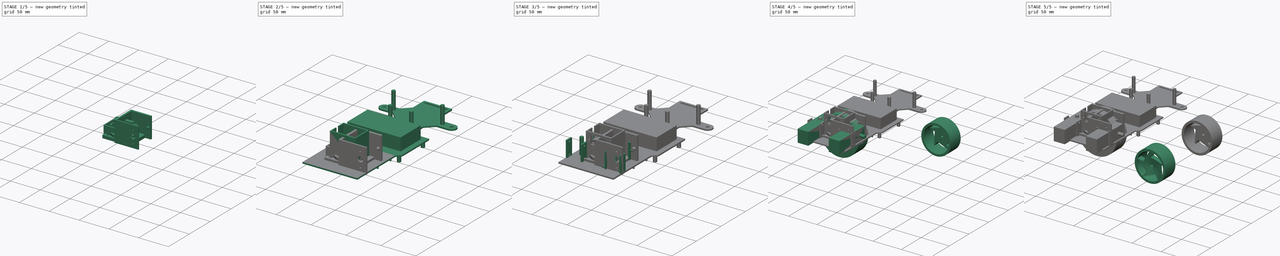
[diagram: build sequence overview — one tinted view per stage of 5, left to right]
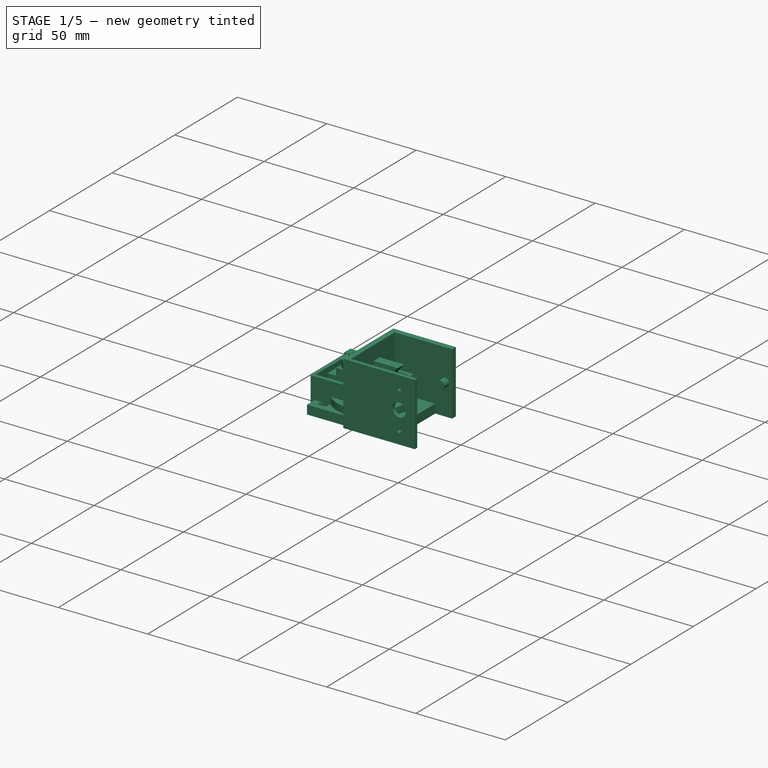
[diagram: stage 1 of 5 — iso view after this stage's code; geometry added in this stage tinted green]
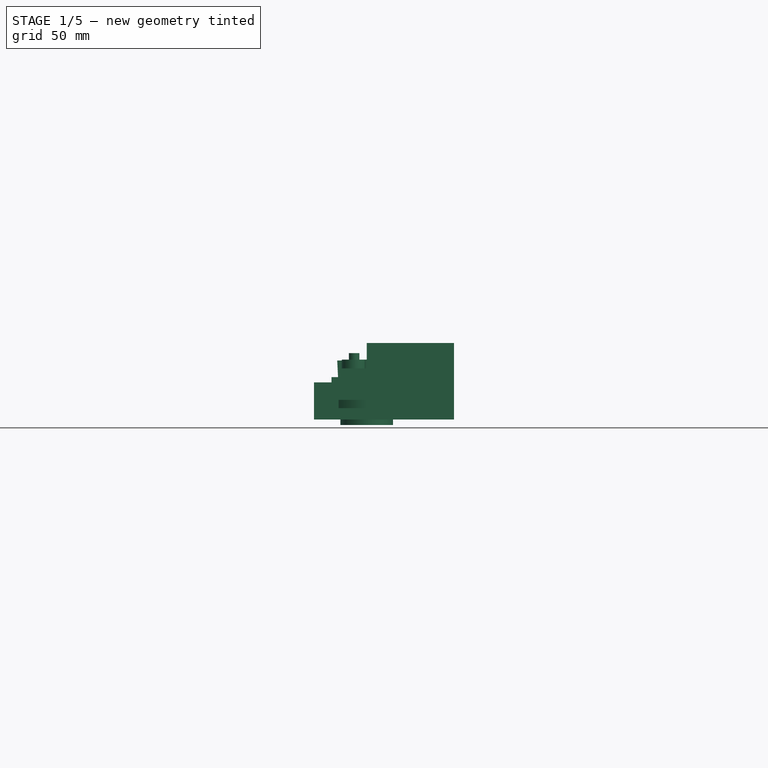
[diagram: stage 1 of 5 — front view after this stage's code; geometry added in this stage tinted green]
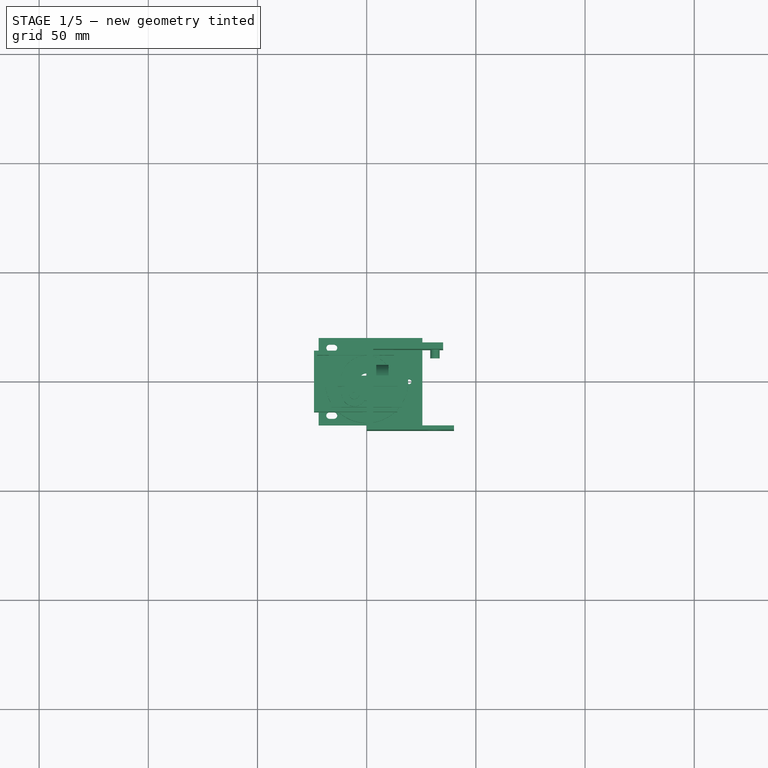
[diagram: stage 1 of 5 — top view after this stage's code; geometry added in this stage tinted green]
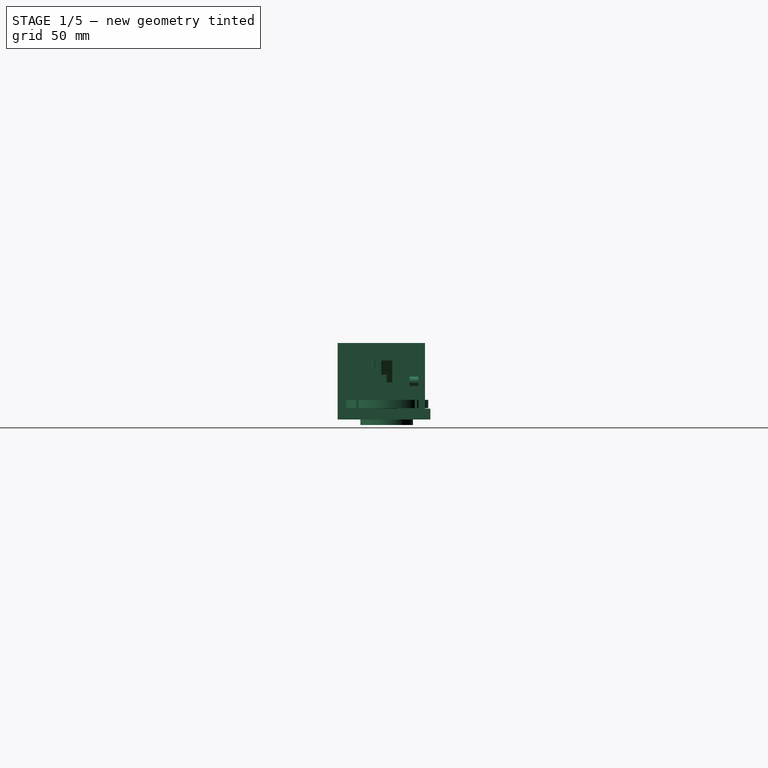
[diagram: stage 1 of 5 — right view after this stage's code; geometry added in this stage tinted green]
FCSTD DOCUMENT  (FreeCAD 0.19R23964 (Git))
Label: PiCar-Chassis
License: All rights reserved
LicenseURL: http://en.wikipedia.org/wiki/All_rights_reserved
objects: Sketcher::SketchObject×139, PartDesign::Pad×110, PartDesign::Body×50, App::DocumentObjectGroup×21, PartDesign::Pocket×20, Part::Cone×2, PartDesign::SubtractiveLoft×2, Part::Cut×2, PartDesign::Revolution×2
note: 461 computed .brp shape members not serialized (recipe doc carries the construction recipe); baked Part::Feature solids carry a one-line shape summary decoded from their .brp

FEATURE [PartDesign::Body] Body037
  Group = -> [Sketch112,Pad096,Sketch114,Pocket011]
  Origin = -> Origin037
  Placement = pos=(184,0,2) rot=(0,0,1;0rad)
  Tip = -> Pocket011
FEATURE [Sketcher::SketchObject] Sketch115
  FullyConstrained = true
  MapMode = 5
  Placement = pos=(0,0,0) rot=(1,0,0;1.5708rad)
  Support = -> [XZ_Plane038]
  sketch-geometry (8):
    g0: LineSegment StartX=-3.25 StartY=2 StartZ=0 EndX=16.5 EndY=27 EndZ=0
    g1: LineSegment StartX=-13.5 StartY=27 StartZ=0 EndX=-12.25 EndY=2 EndZ=0
    g2: LineSegment StartX=-12.25 StartY=2 StartZ=0 EndX=-3.25 EndY=2 EndZ=0
    g3: LineSegment StartX=-13.5 StartY=27 StartZ=0 EndX=-7.5 EndY=27 EndZ=0
    g4: LineSegment StartX=-7.5 StartY=27 StartZ=0 EndX=-7.5 EndY=22 EndZ=0
    g5: LineSegment StartX=-7.5 StartY=22 StartZ=0 EndX=1.5 EndY=22 EndZ=0
    g6: LineSegment StartX=1.5 StartY=22 StartZ=0 EndX=1.5 EndY=27 EndZ=0
    g7: LineSegment StartX=1.5 StartY=27 StartZ=0 EndX=16.5 EndY=27 EndZ=0
  constraints (24):
    c: DistanceX(g-1,g0) = 16.5
    c: DistanceY(g-1,g0) = 27
    c: DistanceX(g1,g0) = 30
    c: Coincident(g2,g1)
    c: Coincident(g2,g0)
    c: Horizontal(g2)
    c: DistanceY(g-1,g0) = 2
    c: DistanceX(g0,g-1) = 3.25
    c: DistanceX(g2,g2) = 9
    c: Coincident(g3,g1)
    c: Coincident(g4,g3)
    c: Vertical(g4)
    c: Horizontal(g5)
    c: Coincident(g6,g5)
    c: Vertical(g6)
    c: Coincident(g7,g6)
    c: Coincident(g7,g0)
    c: Coincident(g4,g5)
    c: DistanceY(g4,g3) = 5
    c: Horizontal(g1,g3)
    c: Horizontal(g3,g6)
    c: Horizontal(g6,g0)
    c: DistanceX(g5,g5) = 9
    c: DistanceX(g6,g0) = 15
FEATURE [PartDesign::Pad] Pad098
  Direction = (1,1,1)
  Length = 5
  Length2 = 100
  Midplane = true
  Placement = pos=(0,0,0) rot=(1,0,0;1.5708rad)
  Profile = -> Sketch115
  Type = 0
FEATURE [PartDesign::Body] Body038
  Group = -> [Sketch115,Pad098]
  Origin = -> Origin038
  Placement = pos=(184.25,9,2) rot=(0,0,1;0rad)
  Tip = -> Pad098
FEATURE [App::DocumentObjectGroup] Group017  label="Support001"
  Group = -> [Body030,Body036,Body037,Body038]
FEATURE [App::DocumentObjectGroup] Group016  label="CamArms-V1"
  Group = -> [Body029,Body031,Body032,Body033,Body034,Body035,Group017]
FEATURE [Sketcher::SketchObject] Sketch116
  FullyConstrained = true
  MapMode = 5
  Placement = pos=(0,0,0) rot=(1,0,0;1.5708rad)
  Support = -> [XZ_Plane039]
  sketch-geometry (12):
    g0: LineSegment StartX=-11.4 StartY=23.4 StartZ=0 EndX=11.4 EndY=23.4 EndZ=0
    g1: LineSegment StartX=11.4 StartY=23.4 StartZ=0 EndX=11.4 EndY=19.4 EndZ=0
    g2: LineSegment StartX=11.4 StartY=0 StartZ=0 EndX=-11.4 EndY=0 EndZ=0
    g3: LineSegment StartX=-11.4 StartY=0 StartZ=0 EndX=-11.4 EndY=17 EndZ=0
    g4: LineSegment StartX=-16.1 StartY=19.4 StartZ=0 EndX=-11.4 EndY=19.4 EndZ=0
    g5: LineSegment StartX=16.1 StartY=19.4 StartZ=0 EndX=16.1 EndY=17 EndZ=0
    g6: LineSegment StartX=16.1 StartY=17 StartZ=0 EndX=11.4 EndY=17 EndZ=0
    g7: LineSegment StartX=-16.1 StartY=17 StartZ=0 EndX=-16.1 EndY=19.4 EndZ=0
    g8: LineSegment StartX=-11.4 StartY=19.4 StartZ=0 EndX=-11.4 EndY=23.4 EndZ=0
    g9: LineSegment StartX=11.4 StartY=17 StartZ=0 EndX=11.4 EndY=0 EndZ=0
    g10: LineSegment StartX=11.4 StartY=19.4 StartZ=0 EndX=16.1 EndY=19.4 EndZ=0
    g11: LineSegment StartX=-11.4 StartY=17 StartZ=0 EndX=-16.1 EndY=17 EndZ=0
  constraints (30):
    c: Coincident(g0,g1)
    c: Coincident(g9,g2)
    c: Coincident(g2,g3)
    c: Coincident(g8,g0)
    c: Horizontal(g0)
    c: Vertical(g1)
    c: Vertical(g3)
    c: Coincident(g10,g5)
    c: Coincident(g5,g6)
    c: Coincident(g11,g7)
    c: Coincident(g7,g4)
    c: Horizontal(g4)
    c: Vertical(g5)
    c: Vertical(g7)
    c: Tangent(g3,g8)
    c: Tangent(g1,g9)
    c: Coincident(g4,g8)
    c: Coincident(g10,g1)
    c: Tangent(g4,g10)
    c: Coincident(g6,g9)
    c: Coincident(g11,g3)
    c: Tangent(g6,g11)
    c: Symmetric(g2,g2,g-2)
    c: DistanceX(g2,g2) = 22.8
    c: Symmetric(g7,g5,g-2)
    c: DistanceX(g7,g5) = 32.2
    c: DistanceY(g2,g5) = 17
    c: DistanceY(g5,g5) = 2.4
    c: DistanceY(g5,g0) = 4
    c: PointOnObject(g-1,g2)
FEATURE [PartDesign::Pad] Pad101
  Direction = (1,1,1)
  Length = 12
  Length2 = 100
  Placement = pos=(0,0,0) rot=(1,0,0;1.5708rad)
  Profile = -> Sketch116
  Type = 0
FEATURE [Sketcher::SketchObject] Sketch117
  ExternalGeometry = -> [Pad101]
  FullyConstrained = true
  MapMode = 5
  Placement = pos=(0,-5.2e-15,23.4) rot=(0,0,1;3.14159rad)
  Support = -> [Pad101]
  sketch-geometry (3):
    g0: LineSegment StartX=-11.4 StartY=6 StartZ=0 EndX=11.4 EndY=6 EndZ=0
    g1: ArcOfCircle CenterX=5.75 CenterY=6 CenterZ=0 NormalX=0 NormalY=0 NormalZ=1 AngleXU=0 Radius=5.65 StartAngle=3.69212 EndAngle=8.87425
    g2: ArcOfCircle CenterX=0 CenterY=6 CenterZ=0 NormalX=0 NormalY=0 NormalZ=1 AngleXU=0 Radius=3.1 StartAngle=1.26449 EndAngle=5.0187
  constraints (12):
    c: PointOnObject(g0,g-3)
    c: PointOnObject(g0,g-4)
    c: Horizontal(g0)
    c: DistanceY(g-4,g0) = 6
    c: PointOnObject(g1,g0)
    c: Diameter(g1) = 11.3
    c: Tangent(g1,g-4)
    c: PointOnObject(g2,g0)
    c: PointOnObject(g2,g-2)
    c: Diameter(g2) = 6.2
    c: Coincident(g1,g2)
    c: Coincident(g1,g2)
FEATURE [PartDesign::Pad] Pad099
  BaseFeature = -> Pad101
  Direction = (1,1,1)
  Length = 4
  Length2 = 100
  Placement = pos=(0,0,0) rot=(1,0,0;1.5708rad)
  Profile = -> Sketch117
  Type = 0
FEATURE [Sketcher::SketchObject] Sketch118
  ExternalGeometry = -> [Pad099]
  FullyConstrained = true
  MapMode = 5
  Placement = pos=(-2.6e-15,-1.2e-14,27.4) rot=(0,0,1;3.14159rad)
  Support = -> [Pad099]
  sketch-geometry (2):
    g0: Circle CenterX=5.75 CenterY=6 CenterZ=0 NormalX=0 NormalY=0 NormalZ=1 AngleXU=0 Radius=2.4
    g1: Circle CenterX=5.75 CenterY=6 CenterZ=0 NormalX=0 NormalY=0 NormalZ=1 AngleXU=0 Radius=0.75
  constraints (4):
    c: Coincident(g0,g-3)
    c: Coincident(g1,g0)
    c: Diameter(g0) = 4.8
    c: Diameter(g1) = 1.5
FEATURE [PartDesign::Pad] Pad100
  BaseFeature = -> Pad099
  Direction = (1,1,1)
  Length = 3
  Length2 = 100
  Placement = pos=(0,0,0) rot=(1,0,0;1.5708rad)
  Profile = -> Sketch118
  Type = 0
FEATURE [PartDesign::Body] Body039  label="ServoCamPan-v2"
  Group = -> [Sketch116,Pad101,Sketch117,Pad099,Sketch118,Pad100]
  Origin = -> Origin039
  Placement = pos=(186,6,9.6) rot=(1,0,0;0rad)
  Tip = -> Pad100
FEATURE [Sketcher::SketchObject] Sketch121
  FullyConstrained = true
  MapMode = 5
  Placement = pos=(0,0,0) rot=(1,0,0;1.5708rad)
  Support = -> [XZ_Plane040]
  sketch-geometry (12):
    g0: LineSegment StartX=-11.4 StartY=23.4 StartZ=0 EndX=11.4 EndY=23.4 EndZ=0
    g1: LineSegment StartX=11.4 StartY=23.4 StartZ=0 EndX=11.4 EndY=19.4 EndZ=0
    g2: LineSegment StartX=11.4 StartY=0 StartZ=0 EndX=-11.4 EndY=0 EndZ=0
    g3: LineSegment StartX=-11.4 StartY=0 StartZ=0 EndX=-11.4 EndY=17 EndZ=0
    g4: LineSegment StartX=-16.1 StartY=19.4 StartZ=0 EndX=-11.4 EndY=19.4 EndZ=0
    g5: LineSegment StartX=16.1 StartY=19.4 StartZ=0 EndX=16.1 EndY=17 EndZ=0
    g6: LineSegment StartX=16.1 StartY=17 StartZ=0 EndX=11.4 EndY=17 EndZ=0
    g7: LineSegment StartX=-16.1 StartY=17 StartZ=0 EndX=-16.1 EndY=19.4 EndZ=0
    g8: LineSegment StartX=-11.4 StartY=19.4 StartZ=0 EndX=-11.4 EndY=23.4 EndZ=0
    g9: LineSegment StartX=11.4 StartY=17 StartZ=0 EndX=11.4 EndY=0 EndZ=0
    g10: LineSegment StartX=11.4 StartY=19.4 StartZ=0 EndX=16.1 EndY=19.4 EndZ=0
    g11: LineSegment StartX=-11.4 StartY=17 StartZ=0 EndX=-16.1 EndY=17 EndZ=0
  constraints (30):
    c: Coincident(g0,g1)
    c: Coincident(g9,g2)
    c: Coincident(g2,g3)
    c: Coincident(g8,g0)
    c: Horizontal(g0)
    c: Vertical(g1)
    c: Vertical(g3)
    c: Coincident(g10,g5)
    c: Coincident(g5,g6)
    c: Coincident(g11,g7)
    c: Coincident(g7,g4)
    c: Horizontal(g4)
    c: Vertical(g5)
    c: Vertical(g7)
    c: Tangent(g3,g8)
    c: Tangent(g1,g9)
    c: Coincident(g4,g8)
    c: Coincident(g10,g1)
    c: Tangent(g4,g10)
    c: Coincident(g6,g9)
    c: Coincident(g11,g3)
    c: Tangent(g6,g11)
    c: Symmetric(g2,g2,g-2)
    c: DistanceX(g2,g2) = 22.8
    c: Symmetric(g7,g5,g-2)
    c: DistanceX(g7,g5) = 32.2
    c: DistanceY(g2,g5) = 17
    c: DistanceY(g5,g5) = 2.4
    c: DistanceY(g5,g0) = 4
    c: PointOnObject(g-1,g2)
FEATURE [PartDesign::Pad] Pad103
  Direction = (1,1,1)
  Length = 12
  Length2 = 100
  Placement = pos=(0,0,0) rot=(1,0,0;1.5708rad)
  Profile = -> Sketch121
  Type = 0
FEATURE [Sketcher::SketchObject] Sketch119
  ExternalGeometry = -> [Pad103]
  FullyConstrained = true
  MapMode = 5
  Placement = pos=(0,-5.2e-15,23.4) rot=(0,0,1;3.14159rad)
  Support = -> [Pad103]
  sketch-geometry (3):
    g0: LineSegment StartX=-11.4 StartY=6 StartZ=0 EndX=11.4 EndY=6 EndZ=0
    g1: ArcOfCircle CenterX=5.75 CenterY=6 CenterZ=0 NormalX=0 NormalY=0 NormalZ=1 AngleXU=0 Radius=5.65 StartAngle=3.69212 EndAngle=8.87425
    g2: ArcOfCircle CenterX=0 CenterY=6 CenterZ=0 NormalX=0 NormalY=0 NormalZ=1 AngleXU=0 Radius=3.1 StartAngle=1.26449 EndAngle=5.0187
  constraints (12):
    c: PointOnObject(g0,g-3)
    c: PointOnObject(g0,g-4)
    c: Horizontal(g0)
    c: DistanceY(g-4,g0) = 6
    c: PointOnObject(g1,g0)
    c: Diameter(g1) = 11.3
    c: Tangent(g1,g-4)
    c: PointOnObject(g2,g0)
    c: PointOnObject(g2,g-2)
    c: Diameter(g2) = 6.2
    c: Coincident(g1,g2)
    c: Coincident(g1,g2)
FEATURE [PartDesign::Pad] Pad102
  BaseFeature = -> Pad103
  Direction = (1,1,1)
  Length = 4
  Length2 = 100
  Placement = pos=(0,0,0) rot=(1,0,0;1.5708rad)
  Profile = -> Sketch119
  Type = 0
FEATURE [Sketcher::SketchObject] Sketch120
  ExternalGeometry = -> [Pad102]
  FullyConstrained = true
  MapMode = 5
  Placement = pos=(-2.6e-15,-1.2e-14,27.4) rot=(0,0,1;3.14159rad)
  Support = -> [Pad102]
  sketch-geometry (2):
    g0: Circle CenterX=5.75 CenterY=6 CenterZ=0 NormalX=0 NormalY=0 NormalZ=1 AngleXU=0 Radius=2.4
    g1: Circle CenterX=5.75 CenterY=6 CenterZ=0 NormalX=0 NormalY=0 NormalZ=1 AngleXU=0 Radius=0.75
  constraints (4):
    c: Coincident(g0,g-3)
    c: Coincident(g1,g0)
    c: Diameter(g0) = 4.8
    c: Diameter(g1) = 1.5
FEATURE [PartDesign::Pad] Pad104
  BaseFeature = -> Pad102
  Direction = (1,1,1)
  Length = 3
  Length2 = 100
  Placement = pos=(0,0,0) rot=(1,0,0;1.5708rad)
  Profile = -> Sketch120
  Type = 0
FEATURE [PartDesign::Body] Body040  label="ServoCamTilt-v2"
  Group = -> [Sketch121,Pad103,Sketch119,Pad102,Sketch120,Pad104]
  Origin = -> Origin040
  Placement = pos=(186,7.4,57) rot=(1,0,0;1.5708rad)
  Tip = -> Pad104
FEATURE [Sketcher::SketchObject] Sketch122
  FullyConstrained = true
  MapMode = 5
  Support = -> [XY_Plane041]
  sketch-geometry (8):
    g0: LineSegment StartX=35 StartY=14.5 StartZ=0 EndX=3 EndY=14.5 EndZ=0
    g1: LineSegment StartX=3 StartY=14.5 StartZ=0 EndX=3 EndY=-20.5 EndZ=0
    g2: LineSegment StartX=3 StartY=-20.5 StartZ=0 EndX=40 EndY=-20.5 EndZ=0
    g3: LineSegment StartX=40 StartY=-20.5 StartZ=0 EndX=40 EndY=-22.5 EndZ=0
    g4: LineSegment StartX=40 StartY=-22.5 StartZ=0 EndX=0 EndY=-22.5 EndZ=0
    g5: LineSegment StartX=0 StartY=-22.5 StartZ=0 EndX=0 EndY=17.5 EndZ=0
    g6: LineSegment StartX=0 StartY=17.5 StartZ=0 EndX=35 EndY=17.5 EndZ=0
    g7: LineSegment StartX=35 StartY=17.5 StartZ=0 EndX=35 EndY=14.5 EndZ=0
  constraints (24):
    c: Horizontal(g0)
    c: Coincident(g1,g0)
    c: Vertical(g1)
    c: Coincident(g2,g1)
    c: Horizontal(g2)
    c: Coincident(g3,g2)
    c: Vertical(g3)
    c: Coincident(g4,g3)
    c: Horizontal(g4)
    c: Coincident(g5,g4)
    c: Vertical(g5)
    c: Coincident(g6,g5)
    c: Horizontal(g6)
    c: Coincident(g7,g6)
    c: Coincident(g7,g0)
    c: Vertical(g7)
    c: DistanceX(g5,g0) = 3
    c: DistanceY(g0,g5) = 3
    c: DistanceY(g4,g1) = 2
    c: DistanceX(g5,g6) = 35
    c: DistanceX(g4,g3) = 40
    c: DistanceY(g4,g5) = 40
    c: DistanceY(g-1,g0) = 14.5
    c: PointOnObject(g-1,g5)
FEATURE [PartDesign::Pad] Pad105
  Direction = (1,1,1)
  Length = 35
  Length2 = 100
  Profile = -> Sketch122
  Type = 0
FEATURE [Sketcher::SketchObject] Sketch123
  ExternalGeometry = -> [Pad105]
  FullyConstrained = true
  MapMode = 5
  Placement = pos=(0,-22.5,0) rot=(1,0,0;1.5708rad)
  Support = -> [Pad105]
  sketch-geometry (5):
    g0: LineSegment StartX=0 StartY=17.5 StartZ=0 EndX=40 EndY=17.5 EndZ=0
    g1: Circle CenterX=31.25 CenterY=17.5 CenterZ=0 NormalX=0 NormalY=0 NormalZ=1 AngleXU=0 Radius=3.75
    g2: LineSegment StartX=31.25 StartY=35 StartZ=0 EndX=31.25 EndY=0 EndZ=0
    g3: Circle CenterX=31.25 CenterY=28 CenterZ=0 NormalX=0 NormalY=0 NormalZ=1 AngleXU=0 Radius=1.1
    g4: Circle CenterX=31.25 CenterY=7 CenterZ=0 NormalX=0 NormalY=0 NormalZ=1 AngleXU=0 Radius=1.1
  constraints (15):
    c: PointOnObject(g0,g-2)
    c: PointOnObject(g0,g-4)
    c: Symmetric(g-3,g-1,g0)
    c: PointOnObject(g1,g0)
    c: Diameter(g1) = 7.5
    c: PointOnObject(g2,g-3)
    c: PointOnObject(g2,g-1)
    c: Vertical(g2)
    c: DistanceX(g-1,g2) = 31.25
    c: PointOnObject(g1,g2)
    c: PointOnObject(g3,g2)
    c: Diameter(g3) = 2.2
    c: Diameter(g4) = 2.2
    c: Symmetric(g4,g3,g0)
    c: DistanceY(g4,g3) = 21
FEATURE [PartDesign::Pocket] Pocket012
  BaseFeature = -> Pad105
  Length = 3
  Length2 = 100
  Profile = -> Sketch123
  Type = 0
FEATURE [Sketcher::SketchObject] Sketch124
  ExternalGeometry = -> [Pocket012]
  FullyConstrained = true
  MapMode = 5
  Placement = pos=(0,14.5,0) rot=(1,0,0;1.5708rad)
  Support = -> [Pocket012]
  sketch-geometry (2):
    g0: LineSegment StartX=0 StartY=17.5 StartZ=0 EndX=35 EndY=17.5 EndZ=0
    g1: Circle CenterX=31.25 CenterY=17.5 CenterZ=0 NormalX=0 NormalY=0 NormalZ=1 AngleXU=0 Radius=2.15
  constraints (6):
    c: PointOnObject(g0,g-2)
    c: PointOnObject(g0,g-4)
    c: Symmetric(g-3,g-1,g0)
    c: PointOnObject(g1,g0)
    c: Diameter(g1) = 4.3
    c: DistanceX(g-1,g1) = 31.25
FEATURE [PartDesign::Pad] Pad106
  BaseFeature = -> Pocket012
  Direction = (1,1,1)
  Length = 4
  Length2 = 100
  Profile = -> Sketch124
  Type = 0
FEATURE [PartDesign::Body] Body041  label="SupportCamTilt001"
  Group = -> [Sketch122,Pad105,Sketch123,Pocket012,Sketch124,Pad106]
  Origin = -> Origin041
  Placement = pos=(148.99,0,33.5) rot=(0,1,0;0rad)
  Tip = -> Pad106
FEATURE [Sketcher::SketchObject] Sketch126
  FullyConstrained = true
  MapMode = 5
  Placement = pos=(0,0,0) rot=(0.57735,0.57735,0.57735;2.0944rad)
  Support = -> [YZ_Plane042]
  sketch-geometry (5):
    g0: LineSegment StartX=7.625 StartY=9.22 StartZ=0 EndX=7.625 EndY=0 EndZ=0
    g1: LineSegment StartX=7.625 StartY=0 StartZ=0 EndX=-7.625 EndY=0 EndZ=0
    g2: LineSegment StartX=-7.625 StartY=0 StartZ=0 EndX=-7.625 EndY=9.22 EndZ=0
    g3: ArcOfCircle CenterX=0 CenterY=9.22 CenterZ=0 NormalX=0 NormalY=0 NormalZ=1 AngleXU=0 Radius=7.625 StartAngle=0 EndAngle=3.14159
    g4: Circle CenterX=0 CenterY=9.22 CenterZ=0 NormalX=0 NormalY=0 NormalZ=1 AngleXU=0 Radius=3.25
  constraints (15):
    c: Coincident(g0,g1)
    c: Coincident(g1,g2)
    c: Horizontal(g1)
    c: Vertical(g0)
    c: Vertical(g2)
    c: PointOnObject(g0,g-1)
    c: PointOnObject(g3,g-2)
    c: Coincident(g3,g2)
    c: Coincident(g3,g0)
    c: Horizontal(g2,g3)
    c: Horizontal(g3,g0)
    c: DistanceY(g1,g2) = 9.22
    c: Coincident(g4,g3)
    c: Diameter(g4) = 6.5
    c: Diameter(g3) = 15.25
FEATURE [PartDesign::Pad] Pad107
  Direction = (1,1,1)
  Length = 14.4
  Length2 = 100
  Placement = pos=(0,0,0) rot=(0.57735,0.57735,0.57735;2.0944rad)
  Profile = -> Sketch126
  Type = 0
FEATURE [Sketcher::SketchObject] Sketch127
  ExternalGeometry = -> [Pad107]
  FullyConstrained = true
  MapMode = 5
  Placement = pos=(0,0,0) rot=(-0.57735,-0.57735,0.57735;2.0944rad)
  Support = -> [Pad107]
  sketch-geometry (7):
    g0: ArcOfCircle CenterX=3.1e-15 CenterY=-9.22 CenterZ=0 NormalX=0 NormalY=0 NormalZ=1 AngleXU=0 Radius=7.625 StartAngle=3.14159 EndAngle=6.28319
    g1: LineSegment StartX=-7.625 StartY=-9.22 StartZ=0 EndX=7.625 EndY=-9.22 EndZ=0
    g2: LineSegment StartX=7.625 StartY=-9.22 StartZ=0 EndX=7.625 EndY=-6.22 EndZ=0
    g3: LineSegment StartX=7.625 StartY=-6.22 StartZ=0 EndX=7.01004 EndY=-6.22 EndZ=0
    g4: LineSegment StartX=-7.625 StartY=-6.22 StartZ=0 EndX=-7.625 EndY=-9.22 EndZ=0
    g5: LineSegment StartX=-7.01004 StartY=-6.22 StartZ=0 EndX=-7.625 EndY=-6.22 EndZ=0
    g6: ArcOfCircle CenterX=3.1e-15 CenterY=-9.22 CenterZ=0 NormalX=0 NormalY=0 NormalZ=1 AngleXU=0 Radius=7.625 StartAngle=0.404373 EndAngle=2.73722
  constraints (18):
    c: Coincident(g0,g-3)
    c: Coincident(g1,g2)
    c: Coincident(g2,g3)
    c: Coincident(g5,g4)
    c: Coincident(g4,g1)
    c: Horizontal(g3)
    c: Vertical(g2)
    c: Vertical(g4)
    c: Coincident(g1,g-3)
    c: Coincident(g1,g-3)
    c: DistanceY(g1,g5) = 3
    c: Coincident(g0,g1)
    c: Coincident(g5,g6)
    c: Tangent(g3,g5)
    c: Equal(g0,g6)
    c: PointOnObject(g0,g1)
    c: Coincident(g6,g3)
    c: Coincident(g0,g6)
FEATURE [PartDesign::Pocket] Pocket014
  BaseFeature = -> Pad107
  Length = 4.4
  Length2 = 100
  Placement = pos=(0,0,0) rot=(0.57735,0.57735,0.57735;2.0944rad)
  Profile = -> Sketch127
  Type = 0
FEATURE [Sketcher::SketchObject] Sketch125
  ExternalGeometry = -> [Pocket014]
  FullyConstrained = true
  MapMode = 5
  Placement = pos=(14.4,-9.6e-15,4.8e-15) rot=(0.57735,0.57735,0.57735;2.0944rad)
  Support = -> [Pocket014]
  sketch-geometry (7):
    g0: ArcOfCircle CenterX=-1.3e-15 CenterY=9.22 CenterZ=0 NormalX=0 NormalY=0 NormalZ=1 AngleXU=0 Radius=7.625 StartAngle=3.54597 EndAngle=5.87881
    g1: LineSegment StartX=-7.625 StartY=9.22 StartZ=0 EndX=7.625 EndY=9.22 EndZ=0
    g2: LineSegment StartX=7.625 StartY=9.22 StartZ=0 EndX=7.625 EndY=6.22 EndZ=0
    g3: LineSegment StartX=7.625 StartY=6.22 StartZ=0 EndX=7.01004 EndY=6.22 EndZ=0
    g4: LineSegment StartX=-7.625 StartY=6.22 StartZ=0 EndX=-7.625 EndY=9.22 EndZ=0
    g5: LineSegment StartX=-7.01004 StartY=6.22 StartZ=0 EndX=-7.625 EndY=6.22 EndZ=0
    g6: ArcOfCircle CenterX=-1.3e-15 CenterY=9.22 CenterZ=0 NormalX=0 NormalY=0 NormalZ=1 AngleXU=0 Radius=7.625 StartAngle=0 EndAngle=3.14159
  constraints (18):
    c: Coincident(g0,g-3)
    c: Diameter(g0) = 15.25
    c: Coincident(g1,g2)
    c: Coincident(g2,g3)
    c: Coincident(g5,g4)
    c: Coincident(g4,g1)
    c: Horizontal(g3)
    c: Vertical(g2)
    c: Vertical(g4)
    c: Coincident(g1,g-3)
    c: Coincident(g1,g-3)
    c: DistanceY(g2,g1) = 3
    c: Coincident(g6,g1)
    c: Coincident(g5,g0)
    c: Tangent(g3,g5)
    c: Coincident(g0,g3)
    c: PointOnObject(g6,g1)
    c: Coincident(g0,g6)
FEATURE [PartDesign::Pocket] Pocket013
  BaseFeature = -> Pocket014
  Length = 4.4
  Length2 = 100
  Placement = pos=(0,0,0) rot=(0.57735,0.57735,0.57735;2.0944rad)
  Profile = -> Sketch125
  Type = 0
FEATURE [PartDesign::Body] Body042  label="XitionFixation001"
  Group = -> [Sketch126,Pad107,Sketch127,Pocket014,Sketch125,Pocket013]
  Origin = -> Origin042
  Placement = pos=(151,-7.2,51.5) rot=(0.57735,0.57735,-0.57735;4.18879rad)
  Tip = -> Pocket013
FEATURE [Sketcher::SketchObject] Sketch128
  FullyConstrained = true
  MapMode = 5
  Placement = pos=(0,0,0) rot=(1,0,0;1.5708rad)
  Support = -> [XZ_Plane043]
  sketch-geometry (8):
    g0: LineSegment StartX=-3.25 StartY=2 StartZ=0 EndX=16.5 EndY=27 EndZ=0
    g1: LineSegment StartX=-13.5 StartY=27 StartZ=0 EndX=-12.25 EndY=2 EndZ=0
    g2: LineSegment StartX=-12.25 StartY=2 StartZ=0 EndX=-3.25 EndY=2 EndZ=0
    g3: LineSegment StartX=-13.5 StartY=27 StartZ=0 EndX=-7.5 EndY=27 EndZ=0
    g4: LineSegment StartX=-7.5 StartY=27 StartZ=0 EndX=-7.5 EndY=22 EndZ=0
    g5: LineSegment StartX=-7.5 StartY=22 StartZ=0 EndX=1.5 EndY=22 EndZ=0
    g6: LineSegment StartX=1.5 StartY=22 StartZ=0 EndX=1.5 EndY=27 EndZ=0
    g7: LineSegment StartX=1.5 StartY=27 StartZ=0 EndX=16.5 EndY=27 EndZ=0
  constraints (24):
    c: DistanceX(g-1,g0) = 16.5
    c: DistanceY(g-1,g0) = 27
    c: DistanceX(g1,g0) = 30
    c: Coincident(g2,g1)
    c: Coincident(g2,g0)
    c: Horizontal(g2)
    c: DistanceY(g-1,g0) = 2
    c: DistanceX(g0,g-1) = 3.25
    c: DistanceX(g2,g2) = 9
    c: Coincident(g3,g1)
    c: Coincident(g4,g3)
    c: Vertical(g4)
    c: Horizontal(g5)
    c: Coincident(g6,g5)
    c: Vertical(g6)
    c: Coincident(g7,g6)
    c: Coincident(g7,g0)
    c: Coincident(g4,g5)
    c: DistanceY(g4,g3) = 5
    c: Horizontal(g1,g3)
    c: Horizontal(g3,g6)
    c: Horizontal(g6,g0)
    c: DistanceX(g5,g5) = 9
    c: DistanceX(g6,g0) = 15
FEATURE [PartDesign::Pad] Pad108
  Direction = (1,1,1)
  Length = 5
  Length2 = 100
  Midplane = true
  Placement = pos=(0,0,0) rot=(1,0,0;1.5708rad)
  Profile = -> Sketch128
  Type = 0
FEATURE [PartDesign::Body] Body043
  Group = -> [Sketch128,Pad108]
  Origin = -> Origin043
  Placement = pos=(184.25,-9,2) rot=(0,0,1;0rad)
  Tip = -> Pad108
FEATURE [Sketcher::SketchObject] Sketch129
  FullyConstrained = true
  MapMode = 5
  Support = -> [XY_Plane044]
  sketch-geometry (4):
    g0: LineSegment StartX=-12 StartY=20 StartZ=0 EndX=-3 EndY=20 EndZ=0
    g1: LineSegment StartX=-3 StartY=20 StartZ=0 EndX=-3 EndY=-20 EndZ=0
    g2: LineSegment StartX=-3 StartY=-20 StartZ=0 EndX=-12 EndY=-20 EndZ=0
    g3: LineSegment StartX=-12 StartY=-20 StartZ=0 EndX=-12 EndY=20 EndZ=0
  constraints (11):
    c: Coincident(g0,g1)
    c: Coincident(g1,g2)
    c: Coincident(g2,g3)
    c: Coincident(g3,g0)
    c: Horizontal(g0)
    c: Horizontal(g2)
    c: Vertical(g1)
    c: Symmetric(g0,g2,g-1)
    c: DistanceY(g3,g3) = 40
    c: DistanceX(g2,g-1) = 12
    c: DistanceX(g0,g0) = 9
FEATURE [PartDesign::Pad] Pad109
  Direction = (1,1,1)
  Length = 2
  Length2 = 100
  Profile = -> Sketch129
  Type = 0
FEATURE [Sketcher::SketchObject] Sketch130
  ExternalGeometry = -> [Pad109]
  FullyConstrained = true
  MapMode = 5
  Placement = pos=(0,0,2) rot=(0,0,1;0rad)
  Support = -> [Pad109]
  sketch-geometry (2):
    g0: Circle CenterX=-7.5 CenterY=14 CenterZ=0 NormalX=0 NormalY=0 NormalZ=1 AngleXU=0 Radius=1.5
    g1: Circle CenterX=-7.5 CenterY=-14 CenterZ=0 NormalX=0 NormalY=0 NormalZ=1 AngleXU=0 Radius=1.5
  constraints (5):
    c: DistanceX(g0,g-3) = 4.5
    c: Diameter(g0) = 3
    c: DistanceY(g0,g-3) = 6
    c: Symmetric(g0,g1,g-1)
    c: Diameter(g1) = 3
FEATURE [PartDesign::Pocket] Pocket015
  BaseFeature = -> Pad109
  Length = 3
  Length2 = 100
  Profile = -> Sketch130
  Type = 0
FEATURE [PartDesign::Body] Body044
  Group = -> [Sketch129,Pad109,Sketch130,Pocket015]
  Origin = -> Origin044
  Placement = pos=(184,0,2) rot=(0,0,1;0rad)
  Tip = -> Pocket015
FEATURE [Sketcher::SketchObject] Sketch131
  FullyConstrained = true
  MapMode = 5
  Placement = pos=(0,0,0) rot=(1,0,0;1.5708rad)
  Support = -> [XZ_Plane045]
  sketch-geometry (8):
    g0: LineSegment StartX=-3.25 StartY=2 StartZ=0 EndX=16.5 EndY=27 EndZ=0
    g1: LineSegment StartX=-13.5 StartY=27 StartZ=0 EndX=-12.25 EndY=2 EndZ=0
    g2: LineSegment StartX=-12.25 StartY=2 StartZ=0 EndX=-3.25 EndY=2 EndZ=0
    g3: LineSegment StartX=-13.5 StartY=27 StartZ=0 EndX=-7.5 EndY=27 EndZ=0
    g4: LineSegment StartX=-7.5 StartY=27 StartZ=0 EndX=-7.5 EndY=22 EndZ=0
    g5: LineSegment StartX=-7.5 StartY=22 StartZ=0 EndX=1.5 EndY=22 EndZ=0
    g6: LineSegment StartX=1.5 StartY=22 StartZ=0 EndX=1.5 EndY=27 EndZ=0
    g7: LineSegment StartX=1.5 StartY=27 StartZ=0 EndX=16.5 EndY=27 EndZ=0
  constraints (24):
    c: DistanceX(g-1,g0) = 16.5
    c: DistanceY(g-1,g0) = 27
    c: DistanceX(g1,g0) = 30
    c: Coincident(g2,g1)
    c: Coincident(g2,g0)
    c: Horizontal(g2)
    c: DistanceY(g-1,g0) = 2
    c: DistanceX(g0,g-1) = 3.25
    c: DistanceX(g2,g2) = 9
    c: Coincident(g3,g1)
    c: Coincident(g4,g3)
    c: Vertical(g4)
    c: Horizontal(g5)
    c: Coincident(g6,g5)
    c: Vertical(g6)
    c: Coincident(g7,g6)
    c: Coincident(g7,g0)
    c: Coincident(g4,g5)
    c: DistanceY(g4,g3) = 5
    c: Horizontal(g1,g3)
    c: Horizontal(g3,g6)
    c: Horizontal(g6,g0)
    c: DistanceX(g5,g5) = 9
    c: DistanceX(g6,g0) = 15
FEATURE [PartDesign::Pad] Pad110
  Direction = (1,1,1)
  Length = 5
  Length2 = 100
  Midplane = true
  Placement = pos=(0,0,0) rot=(1,0,0;1.5708rad)
  Profile = -> Sketch131
  Type = 0
FEATURE [PartDesign::Body] Body045
  Group = -> [Sketch131,Pad110]
  Origin = -> Origin045
  Placement = pos=(184.25,9,2) rot=(0,0,1;0rad)
  Tip = -> Pad110
FEATURE [Sketcher::SketchObject] Sketch132
  FullyConstrained = true
  MapMode = 5
  Support = -> [XY_Plane046]
  sketch-geometry (4):
    g0: LineSegment StartX=-22 StartY=20 StartZ=0 EndX=25.5 EndY=20 EndZ=0
    g1: LineSegment StartX=25.5 StartY=20 StartZ=0 EndX=25.5 EndY=-20 EndZ=0
    g2: LineSegment StartX=25.5 StartY=-20 StartZ=0 EndX=-22 EndY=-20 EndZ=0
    g3: LineSegment StartX=-22 StartY=-20 StartZ=0 EndX=-22 EndY=20 EndZ=0
  constraints (11):
    c: Coincident(g0,g1)
    c: Coincident(g1,g2)
    c: Coincident(g2,g3)
    c: Coincident(g3,g0)
    c: Horizontal(g0)
    c: Vertical(g1)
    c: Symmetric(g0,g2,g-1)
    c: DistanceY(g3,g3) = 40
    c: DistanceX(g2,g-1) = 22
    c: Horizontal(g2)
    c: DistanceX(g0,g0) = 47.5
FEATURE [PartDesign::Pad] Pad111
  Direction = (1,1,1)
  Length = 5
  Length2 = 100
  Profile = -> Sketch132
  Type = 0
FEATURE [Sketcher::SketchObject] Sketch133
  ExternalGeometry = -> [Pad111]
  FullyConstrained = true
  MapMode = 5
  Placement = pos=(0,0,5) rot=(0,0,1;0rad)
  Support = -> [Pad111]
  sketch-geometry (15):
    g0: LineSegment StartX=-17 StartY=17 StartZ=0 EndX=-15 EndY=17 EndZ=0
    g1: LineSegment StartX=-15 StartY=14 StartZ=0 EndX=-17 EndY=14 EndZ=0
    g2: ArcOfCircle CenterX=-17 CenterY=15.5 CenterZ=0 NormalX=0 NormalY=0 NormalZ=1 AngleXU=0 Radius=1.5 StartAngle=1.5708 EndAngle=4.71239
    g3: ArcOfCircle CenterX=-15 CenterY=15.5 CenterZ=0 NormalX=0 NormalY=0 NormalZ=1 AngleXU=0 Radius=1.5 StartAngle=4.71239 EndAngle=7.85398
    g4: LineSegment StartX=-17 StartY=-14 StartZ=0 EndX=-15 EndY=-14 EndZ=0
    g5: LineSegment StartX=-15 StartY=-17 StartZ=0 EndX=-17 EndY=-17 EndZ=0
    g6: ArcOfCircle CenterX=-17 CenterY=-15.5 CenterZ=0 NormalX=0 NormalY=0 NormalZ=1 AngleXU=0 Radius=1.5 StartAngle=1.5708 EndAngle=4.71239
    g7: ArcOfCircle CenterX=-15 CenterY=-15.5 CenterZ=0 NormalX=0 NormalY=0 NormalZ=1 AngleXU=0 Radius=1.5 StartAngle=4.71239 EndAngle=7.85398
    g8: LineSegment StartX=-5.85 StartY=6.25 StartZ=0 EndX=17.4 EndY=6.25 EndZ=0
    g9: LineSegment StartX=17.4 StartY=6.25 StartZ=0 EndX=17.4 EndY=-6.25 EndZ=0
    g10: LineSegment StartX=17.4 StartY=-6.25 StartZ=0 EndX=-5.85 EndY=-6.25 EndZ=0
    g11: LineSegment StartX=-5.85 StartY=-6.25 StartZ=0 EndX=-5.85 EndY=6.25 EndZ=0
    g12: Circle CenterX=-7.875 CenterY=0 CenterZ=0 NormalX=0 NormalY=0 NormalZ=1 AngleXU=0 Radius=1.1
    g13: Circle CenterX=19.425 CenterY=0 CenterZ=0 NormalX=0 NormalY=0 NormalZ=1 AngleXU=0 Radius=1.1
    g14: LineSegment StartX=5.775 StartY=6.25 StartZ=0 EndX=5.775 EndY=-6.25 EndZ=0
  constraints (44):
    c: Horizontal(g0)
    c: Horizontal(g1)
    c: Coincident(g2,g0)
    c: Coincident(g2,g1)
    c: Coincident(g3,g0)
    c: Coincident(g3,g1)
    c: Vertical(g0,g2)
    c: Vertical(g2,g1)
    c: Vertical(g0,g3)
    c: Vertical(g3,g1)
    c: DistanceY(g1,g0) = 3
    c: DistanceX(g2,g3) = 2
    c: DistanceX(g-3,g0) = 5
    c: DistanceY(g0,g-3) = 3
    c: Horizontal(g4)
    c: Coincident(g6,g4)
    c: Coincident(g6,g5)
    c: Coincident(g7,g4)
    c: Coincident(g7,g5)
    c: Vertical(g6,g5)
    c: Vertical(g4,g7)
    c: Vertical(g7,g5)
    c: Symmetric(g6,g2,g-1)
    c: Symmetric(g7,g3,g-1)
    c: Symmetric(g4,g1,g-1)
    c: Coincident(g8,g9)
    c: Coincident(g9,g10)
    c: Coincident(g10,g11)
    c: Coincident(g11,g8)
    c: Horizontal(g8)
    c: Horizontal(g10)
    c: Vertical(g9)
    c: Symmetric(g10,g8,g-1)
    c: DistanceY(g11,g11) = 12.5
    c: DistanceX(g8,g8) = 23.25
    c: DistanceX(g10,g-1) = 5.85
    c: PointOnObject(g12,g-1)
    c: Diameter(g12) = 2.2
    c: Diameter(g13) = 2.2
    c: DistanceX(g12,g13) = 27.3
    c: PointOnObject(g14,g8)
    c: PointOnObject(g14,g10)
    c: Symmetric(g8,g8,g14)
    c: Symmetric(g12,g13,g14)
FEATURE [PartDesign::Pocket] Pocket016
  BaseFeature = -> Pad111
  Length = 5
  Length2 = 100
  Profile = -> Sketch133
  Type = 0
FEATURE [PartDesign::Body] Body046  label="SupportCam001"
  Group = -> [Sketch132,Pad111,Sketch133,Pocket016]
  Origin = -> Origin046
  Placement = pos=(180.25,0,29) rot=(0,0,1;0rad)
  Tip = -> Pocket016
FEATURE [Sketcher::SketchObject] Sketch135
  FullyConstrained = true
  MapMode = 5
  Placement = pos=(0,0,0) rot=(1,0,0;1.5708rad)
  Support = -> [XZ_Plane047]
  sketch-geometry (7):
    g0: LineSegment StartX=-19 StartY=3.2 StartZ=0 EndX=-18 EndY=3.2 EndZ=0
    g1: LineSegment StartX=-11 StartY=1.8 StartZ=0 EndX=-11 EndY=0 EndZ=0
    g2: LineSegment StartX=-11 StartY=0 StartZ=0 EndX=-19 EndY=0 EndZ=0
    g3: LineSegment StartX=-19 StartY=0 StartZ=0 EndX=-19 EndY=3.2 EndZ=0
    g4: LineSegment StartX=-15 StartY=3.2 StartZ=0 EndX=-15 EndY=0 EndZ=0
    g5: LineSegment StartX=-12.3467 StartY=1.8 StartZ=0 EndX=-11 EndY=1.8 EndZ=0
    g6: ArcOfCircle CenterX=-15 CenterY=3.2 CenterZ=0 NormalX=0 NormalY=0 NormalZ=1 AngleXU=0 Radius=3 StartAngle=3.14159 EndAngle=5.79767
  constraints (21):
    c: Coincident(g5,g1)
    c: Coincident(g1,g2)
    c: Coincident(g2,g3)
    c: Coincident(g3,g0)
    c: Horizontal(g2)
    c: Vertical(g1)
    c: Vertical(g3)
    c: PointOnObject(g2,g-1)
    c: PointOnObject(g4,g2)
    c: Symmetric(g2,g1,g4)
    c: Horizontal(g5)
    c: Horizontal(g0)
    c: Coincident(g6,g0)
    c: Coincident(g6,g5)
    c: DistanceY(g1,g1) = 1.8
    c: DistanceY(g3,g3) = 3.2
    c: Diameter(g6) = 6
    c: Horizontal(g6,g0)
    c: DistanceX(g2,g2) = 8
    c: DistanceX(g4,g-1) = 15
    c: Coincident(g4,g6)
FEATURE [PartDesign::Revolution] Revolution  label="RevolutionDown"
  Angle = 360
  Axis = (0,-2e-16,1)
  Base = (0,0,0)
  Placement = pos=(0,0,0) rot=(1,0,0;1.5708rad)
  Profile = -> Sketch135
  ReferenceAxis = -> Sketch135 [V_Axis]
FEATURE [Sketcher::SketchObject] Sketch136
  FullyConstrained = true
  MapMode = 5
  Placement = pos=(0,0,0) rot=(1,0,0;1.5708rad)
  Support = -> [XZ_Plane048]
  sketch-geometry (11):
    g0: LineSegment StartX=-15 StartY=0 StartZ=0 EndX=-15 EndY=9 EndZ=0
    g1: LineSegment StartX=-19 StartY=9 StartZ=0 EndX=-12 EndY=9 EndZ=0
    g2: LineSegment StartX=-3.75 StartY=6.5 StartZ=0 EndX=-3.75 EndY=5.5 EndZ=0
    g3: LineSegment StartX=-19 StartY=5.2 StartZ=0 EndX=-19 EndY=9 EndZ=0
    g4: ArcOfCircle CenterX=-15 CenterY=3.8 CenterZ=0 NormalX=0 NormalY=0 NormalZ=1 AngleXU=0 Radius=3 StartAngle=0 EndAngle=2.65607
    g5: LineSegment StartX=-17.6533 StartY=5.2 StartZ=0 EndX=-19 EndY=5.2 EndZ=0
    g6: LineSegment StartX=-12 StartY=3.8 StartZ=0 EndX=-11 EndY=3.8 EndZ=0
    g7: LineSegment StartX=-12 StartY=9 StartZ=0 EndX=-12 EndY=6.5 EndZ=0
    g8: LineSegment StartX=-12 StartY=6.5 StartZ=0 EndX=-3.75 EndY=6.5 EndZ=0
    g9: LineSegment StartX=-11 StartY=3.8 StartZ=0 EndX=-11 EndY=5.5 EndZ=0
    g10: LineSegment StartX=-11 StartY=5.5 StartZ=0 EndX=-3.75 EndY=5.5 EndZ=0
  constraints (35):
    c: PointOnObject(g0,g-1)
    c: Vertical(g0)
    c: Coincident(g5,g3)
    c: Coincident(g3,g1)
    c: Vertical(g2)
    c: Vertical(g3)
    c: DistanceY(g0,g0) = 9
    c: PointOnObject(g0,g1)
    c: PointOnObject(g4,g0)
    c: Coincident(g5,g4)
    c: DistanceY(g3,g3) = 3.8
    c: Horizontal(g5)
    c: Diameter(g4) = 6
    c: DistanceX(g0,g-1) = 15
    c: Horizontal(g4,g4)
    c: DistanceX(g1,g0) = 4
    c: Horizontal(g1)
    c: Horizontal(g6)
    c: DistanceY(g4,g1) = 5.2
    c: Vertical(g7)
    c: Coincident(g8,g7)
    c: Horizontal(g8)
    c: Coincident(g2,g8)
    c: Coincident(g1,g7)
    c: DistanceY(g2,g1) = 2.5
    c: Coincident(g6,g4)
    c: DistanceX(g1,g1) = 7
    c: Vertical(g9)
    c: Coincident(g10,g9)
    c: Horizontal(g10)
    c: DistanceX(g2,g-1) = 3.75
    c: Coincident(g2,g10)
    c: Coincident(g6,g9)
    c: DistanceY(g2,g2) = 1
    c: DistanceX(g3,g6) = 8
FEATURE [PartDesign::Revolution] Revolution001
  Angle = 360
  Axis = (0,-2e-16,1)
  Base = (0,0,0)
  Placement = pos=(0,0,0) rot=(1,0,0;1.5708rad)
  Profile = -> Sketch136
  ReferenceAxis = -> Sketch136 [V_Axis]
FEATURE [PartDesign::Body] Body048  label="BearingUp"
  Group = -> [Sketch136,Revolution001]
  Origin = -> Origin048
  Placement = pos=(180.25,0,34) rot=(0,0,1;0rad)
  Tip = -> Revolution001
FEATURE [Sketcher::SketchObject] Sketch138
  FullyConstrained = true
  MapMode = 5
  Placement = pos=(0,0,0) rot=(1,0,0;1.5708rad)
  Support = -> [XZ_Plane047]
  sketch-geometry (4):
    g0: LineSegment StartX=20 StartY=0 StartZ=0 EndX=20 EndY=3 EndZ=0
    g1: LineSegment StartX=20 StartY=0 StartZ=0 EndX=17.5 EndY=0 EndZ=0
    g2: LineSegment StartX=20 StartY=3 StartZ=0 EndX=18.5 EndY=3 EndZ=0
    g3: LineSegment StartX=18.5 StartY=3 StartZ=0 EndX=17.5 EndY=0 EndZ=0
  constraints (12):
    c: Vertical(g0)
    c: Coincident(g1,g0)
    c: Horizontal(g1)
    c: PointOnObject(g1,g-1)
    c: DistanceX(g-1,g1) = 17.5
    c: DistanceX(g-1,g0) = 20
    c: DistanceY(g0,g0) = 3
    c: Coincident(g2,g0)
    c: Horizontal(g2)
    c: Coincident(g3,g2)
    c: Coincident(g3,g1)
    c: DistanceX(g2,g2) = 1.5
FEATURE [PartDesign::Pocket] Pocket018
  BaseFeature = -> Revolution
  Length = 6
  Length2 = 100
  Midplane = true
  Placement = pos=(0,0,0) rot=(1,0,0;1.5708rad)
  Profile = -> Sketch138
  Type = 0
FEATURE [PartDesign::Body] Body047  label="BearingDown"
  Group = -> [Sketch135,Revolution,Sketch138,Pocket018]
  Origin = -> Origin047
  Placement = pos=(180.25,0,34) rot=(0,0,1;0rad)
  Tip = -> Pocket018
FEATURE [App::DocumentObjectGroup] Group019  label="BearingDownComponent"
  Group = -> [Body043,Body044,Body045,Body046,Body047]
FEATURE [Sketcher::SketchObject] Sketch139
  FullyConstrained = true
  MapMode = 5
  Support = -> [XY_Plane049]
  sketch-geometry (13):
    g0: LineSegment StartX=-2.25 StartY=3.5 StartZ=0 EndX=-8.75 EndY=3 EndZ=0
    g1: LineSegment StartX=-8.75 StartY=-3 StartZ=0 EndX=-2.25 EndY=-3.5 EndZ=0
    g2: LineSegment StartX=2.25 StartY=-3.5 StartZ=0 EndX=8.75 EndY=-3 EndZ=0
    g3: LineSegment StartX=2.25 StartY=3.5 StartZ=0 EndX=8.75 EndY=3 EndZ=0
    g4: LineSegment StartX=-2.25 StartY=3.5 StartZ=0 EndX=-2.25 EndY=7.25 EndZ=0
    g5: LineSegment StartX=2.25 StartY=3.5 StartZ=0 EndX=2.25 EndY=7.25 EndZ=0
    g6: LineSegment StartX=-2.25 StartY=-3.5 StartZ=0 EndX=-2.25 EndY=-7.25 EndZ=0
    g7: LineSegment StartX=2.25 StartY=-3.5 StartZ=0 EndX=2.25 EndY=-7.25 EndZ=0
    g8: ArcOfCircle CenterX=1e-16 CenterY=7.25 CenterZ=0 NormalX=0 NormalY=0 NormalZ=1 AngleXU=0 Radius=2.25 StartAngle=0 EndAngle=3.14159
    g9: ArcOfCircle CenterX=0 CenterY=-7.25 CenterZ=0 NormalX=0 NormalY=0 NormalZ=1 AngleXU=0 Radius=2.25 StartAngle=3.14159 EndAngle=6.28319
    g10: ArcOfCircle CenterX=-8.75 CenterY=-1e-16 CenterZ=0 NormalX=0 NormalY=0 NormalZ=1 AngleXU=0 Radius=3 StartAngle=1.5708 EndAngle=4.71239
    g11: ArcOfCircle CenterX=8.75 CenterY=9e-16 CenterZ=0 NormalX=0 NormalY=0 NormalZ=1 AngleXU=0 Radius=3 StartAngle=4.71239 EndAngle=7.85398
    g12: Circle CenterX=0 CenterY=0 CenterZ=0 NormalX=0 NormalY=0 NormalZ=1 AngleXU=0 Radius=12.05
  constraints (35):
    c: Coincident(g4,g0)
    c: Vertical(g4)
    c: Coincident(g5,g3)
    c: Vertical(g5)
    c: Coincident(g6,g1)
    c: Coincident(g7,g2)
    c: Vertical(g7)
    c: Symmetric(g0,g3,g-2)
    c: DistanceX(g4,g5) = 4.5
    c: Symmetric(g1,g0,g-1)
    c: Symmetric(g3,g2,g-1)
    c: Symmetric(g0,g1,g-1)
    c: Symmetric(g3,g2,g-1)
    c: Symmetric(g4,g6,g-1)
    c: Coincident(g8,g4)
    c: Coincident(g8,g5)
    c: Horizontal(g4,g8)
    c: Horizontal(g8,g5)
    c: Coincident(g9,g6)
    c: Coincident(g9,g7)
    c: Horizontal(g6,g9)
    c: Horizontal(g9,g7)
    c: Coincident(g10,g0)
    c: Coincident(g10,g1)
    c: Vertical(g0,g10)
    c: Coincident(g11,g3)
    c: Coincident(g11,g2)
    c: Vertical(g11,g3)
    c: DistanceY(g3,g5) = 3.75
    c: DistanceX(g10,g-1) = 8.75
    c: DistanceY(g1,g0) = 7
    c: DistanceY(g1,g0) = 6
    c: Symmetric(g0,g3,g-2)
    c: Coincident(g12,g-1)
    c: Diameter(g12) = 24.1
FEATURE [PartDesign::Pad] Pad112
  Direction = (1,1,1)
  Length = 2.5
  Length2 = 100
  Profile = -> Sketch139
  Reversed = true
  Type = 0
FEATURE [PartDesign::Body] Body049  label="Insertservo"
  Group = -> [Sketch139,Pad112]
  Origin = -> Origin049
  Placement = pos=(180.25,0,43) rot=(0,0,1;0rad)
  Tip = -> Pad112
FEATURE [Sketcher::SketchObject] Sketch140
  FullyConstrained = true
  MapMode = 5
  Support = -> [XY_Plane050]
  sketch-geometry (8):
    g0: LineSegment StartX=14 StartY=14 StartZ=0 EndX=-24.15 EndY=14 EndZ=0
    g1: LineSegment StartX=-24.15 StartY=14 StartZ=0 EndX=-24.15 EndY=-14 EndZ=0
    g2: LineSegment StartX=-24.15 StartY=-14 StartZ=0 EndX=14 EndY=-14 EndZ=0
    g3: LineSegment StartX=14 StartY=-14 StartZ=0 EndX=14 EndY=14 EndZ=0
    g4: LineSegment StartX=-15 StartY=12 StartZ=0 EndX=12.5 EndY=12 EndZ=0
    g5: LineSegment StartX=12.5 StartY=12 StartZ=0 EndX=12.5 EndY=-12 EndZ=0
    g6: LineSegment StartX=12.5 StartY=-12 StartZ=0 EndX=-15 EndY=-12 EndZ=0
    g7: LineSegment StartX=-15 StartY=-12 StartZ=0 EndX=-15 EndY=12 EndZ=0
  constraints (22):
    c: Coincident(g0,g1)
    c: Coincident(g1,g2)
    c: Coincident(g2,g3)
    c: Coincident(g3,g0)
    c: Horizontal(g0)
    c: Horizontal(g2)
    c: Vertical(g3)
    c: Symmetric(g0,g1,g-1)
    c: DistanceY(g1,g1) = 28
    c: Coincident(g4,g5)
    c: Coincident(g5,g6)
    c: Coincident(g6,g7)
    c: Coincident(g7,g4)
    c: Horizontal(g4)
    c: Horizontal(g6)
    c: Vertical(g5)
    c: DistanceY(g7,g7) = 24
    c: Symmetric(g4,g6,g-1)
    c: DistanceX(g1,g-1) = 24.15
    c: DistanceX(g-1,g2) = 14
    c: DistanceX(g4,g-1) = 15
    c: DistanceX(g-1,g4) = 12.5
FEATURE [PartDesign::Pad] Pad113
  Direction = (1,1,1)
  Length = 1
  Length2 = 100
  Profile = -> Sketch140
  Type = 0
FEATURE [Sketcher::SketchObject] Sketch141
  ExternalGeometry = -> [Pad113]
  FullyConstrained = true
  MapMode = 5
  Placement = pos=(0,0,1) rot=(0,0,1;0rad)
  Support = -> [Pad113]
  sketch-geometry (8):
    g0: LineSegment StartX=-24.15 StartY=14 StartZ=0 EndX=14 EndY=14 EndZ=0
    g1: LineSegment StartX=14 StartY=14 StartZ=0 EndX=14 EndY=-14 EndZ=0
    g2: LineSegment StartX=14 StartY=-14 StartZ=0 EndX=-24.15 EndY=-14 EndZ=0
    g3: LineSegment StartX=-24.15 StartY=-14 StartZ=0 EndX=-24.15 EndY=14 EndZ=0
    g4: LineSegment StartX=12.5 StartY=12 StartZ=0 EndX=-22.65 EndY=12 EndZ=0
    g5: LineSegment StartX=-22.65 StartY=12 StartZ=0 EndX=-22.65 EndY=-12 EndZ=0
    g6: LineSegment StartX=-22.65 StartY=-12 StartZ=0 EndX=12.5 EndY=-12 EndZ=0
    g7: LineSegment StartX=12.5 StartY=-12 StartZ=0 EndX=12.5 EndY=12 EndZ=0
  constraints (20):
    c: Coincident(g0,g1)
    c: Coincident(g1,g2)
    c: Coincident(g2,g3)
    c: Coincident(g3,g0)
    c: Horizontal(g0)
    c: Horizontal(g2)
    c: Vertical(g1)
    c: Vertical(g3)
    c: Coincident(g0,g-3)
    c: Coincident(g1,g-4)
    c: Coincident(g4,g5)
    c: Coincident(g5,g6)
    c: Coincident(g6,g7)
    c: Coincident(g7,g4)
    c: Horizontal(g4)
    c: Horizontal(g6)
    c: Vertical(g5)
    c: Coincident(g4,g-5)
    c: Coincident(g-5,g6)
    c: DistanceX(g0,g4) = 1.5
FEATURE [PartDesign::Pad] Pad114
  BaseFeature = -> Pad113
  Direction = (1,1,1)
  Length = 16
  Length2 = 100
  Profile = -> Sketch141
  Type = 0
FEATURE [Sketcher::SketchObject] Sketch142
  FullyConstrained = true
  MapMode = 5
  Placement = pos=(14,0,0) rot=(0.57735,0.57735,0.57735;2.0944rad)
  Support = -> [Pad114]
  sketch-geometry (4):
    g0: LineSegment StartX=-5 StartY=8 StartZ=0 EndX=5 EndY=8 EndZ=0
    g1: LineSegment StartX=5 StartY=8 StartZ=0 EndX=5 EndY=3 EndZ=0
    g2: LineSegment StartX=5 StartY=3 StartZ=0 EndX=-5 EndY=3 EndZ=0
    g3: LineSegment StartX=-5 StartY=3 StartZ=0 EndX=-5 EndY=8 EndZ=0
  constraints (11):
    c: Coincident(g0,g1)
    c: Coincident(g1,g2)
    c: Coincident(g2,g3)
    c: Coincident(g3,g0)
    c: Horizontal(g2)
    c: Vertical(g1)
    c: Vertical(g3)
    c: Symmetric(g0,g0,g-2)
    c: DistanceY(g-1,g2) = 3
    c: DistanceX(g0,g0) = 10
    c: DistanceY(g1,g1) = 5
FEATURE [PartDesign::Pocket] Pocket019
  BaseFeature = -> Pad114
  Length = 5
  Length2 = 100
  Profile = -> Sketch142
  Type = 0
FEATURE [Sketcher::SketchObject] Sketch143
  FullyConstrained = true
  MapMode = 5
  Placement = pos=(0,-14,0) rot=(1,0,0;1.5708rad)
  Support = -> [Pocket019]
  sketch-geometry (1):
    g0: Circle CenterX=0 CenterY=9 CenterZ=0 NormalX=0 NormalY=0 NormalZ=1 AngleXU=0 Radius=2.4
  constraints (3):
    c: PointOnObject(g0,g-2)
    c: Diameter(g0) = 4.8
    c: DistanceY(g-1,g0) = 9
FEATURE [PartDesign::Pocket] Pocket020
  BaseFeature = -> Pocket019
  Length = 5
  Length2 = 100
  Profile = -> Sketch143
  Type = 0
FEATURE [Sketcher::SketchObject] Sketch144
  ExternalGeometry = -> [Pocket020]
  FullyConstrained = true
  MapMode = 5
  Placement = pos=(0,14,0) rot=(0,0.707107,0.707107;3.14159rad)
  Support = -> [Pocket020]
  sketch-geometry (8):
    g0: LineSegment StartX=-14 StartY=9 StartZ=0 EndX=24.15 EndY=9 EndZ=0
    g1: LineSegment StartX=-5.85 StartY=15.25 StartZ=0 EndX=17.4 EndY=15.25 EndZ=0
    g2: LineSegment StartX=17.4 StartY=15.25 StartZ=0 EndX=17.4 EndY=2.75 EndZ=0
    g3: LineSegment StartX=17.4 StartY=2.75 StartZ=0 EndX=-5.85 EndY=2.75 EndZ=0
    g4: LineSegment StartX=-5.85 StartY=2.75 StartZ=0 EndX=-5.85 EndY=15.25 EndZ=0
    g5: Circle CenterX=-7.875 CenterY=9 CenterZ=0 NormalX=0 NormalY=0 NormalZ=1 AngleXU=0 Radius=1.1
    g6: Circle CenterX=19.425 CenterY=9 CenterZ=0 NormalX=0 NormalY=0 NormalZ=1 AngleXU=0 Radius=1.1
    g7: LineSegment StartX=5.775 StartY=15.25 StartZ=0 EndX=5.775 EndY=2.75 EndZ=0
  constraints (23):
    c: PointOnObject(g0,g-3)
    c: PointOnObject(g0,g-4)
    c: Horizontal(g0)
    c: DistanceY(g-1,g0) = 9
    c: Coincident(g1,g2)
    c: Coincident(g2,g3)
    c: Coincident(g3,g4)
    c: Coincident(g4,g1)
    c: Horizontal(g1)
    c: Horizontal(g3)
    c: Vertical(g2)
    c: Symmetric(g1,g3,g0)
    c: DistanceX(g1,g1) = 23.25
    c: DistanceY(g4,g4) = 12.5
    c: DistanceX(g3,g-1) = 5.85
    c: PointOnObject(g5,g0)
    c: Diameter(g6) = 2.2
    c: Diameter(g5) = 2.2
    c: DistanceX(g5,g6) = 27.3
    c: PointOnObject(g7,g1)
    c: PointOnObject(g7,g3)
    c: Symmetric(g1,g1,g7)
    c: Symmetric(g5,g6,g7)
FEATURE [PartDesign::Pocket] Pocket021
  BaseFeature = -> Pocket020
  Length = 5
  Length2 = 100
  Profile = -> Sketch144
  Type = 0
FEATURE [PartDesign::Body] Body050  label="CageServo"
  Group = -> [Sketch140,Pad113,Sketch141,Pad114,Sketch142,Pocket019,Sketch143,Pocket020,Sketch144,Pocket021]
  Origin = -> Origin050
  Placement = pos=(180.25,0,42) rot=(0,0,1;3.14159rad)
  Tip = -> Pocket021
FEATURE [App::DocumentObjectGroup] Group020  label="BearingUpComponent"
  Group = -> [Body048,Body049,Body050]
FEATURE [App::DocumentObjectGroup] Group018  label="CamArms-V2"
  Group = -> [Body039,Body040,Body041,Body042,Group019,Group020]
FEATURE [App::DocumentObjectGroup] Group013  label="CAD"
  Group = -> [Group,Group001,Group012,Group015,Group016,Group018]
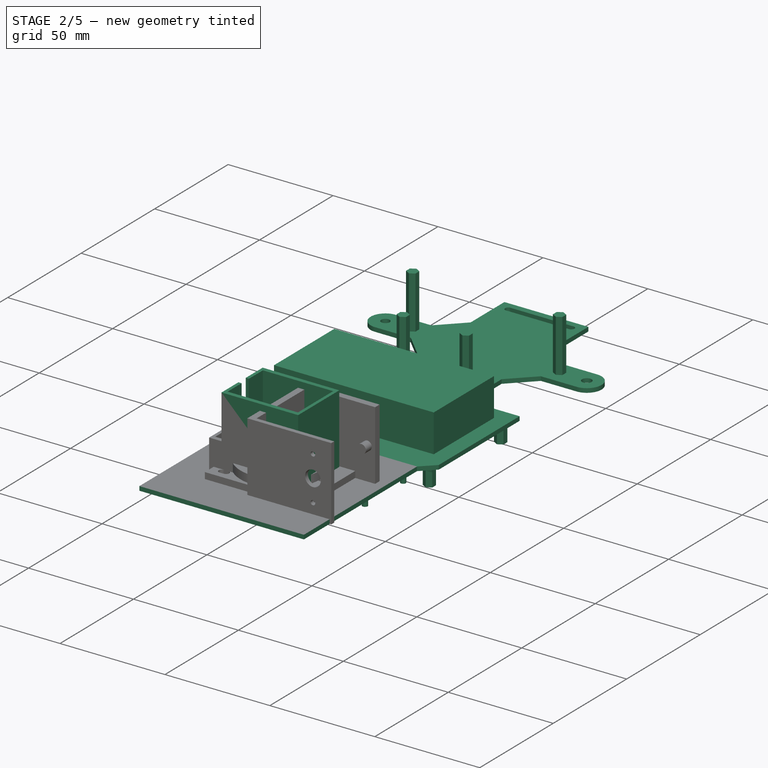
[diagram: stage 2 of 5 — iso view after this stage's code; geometry added in this stage tinted green]
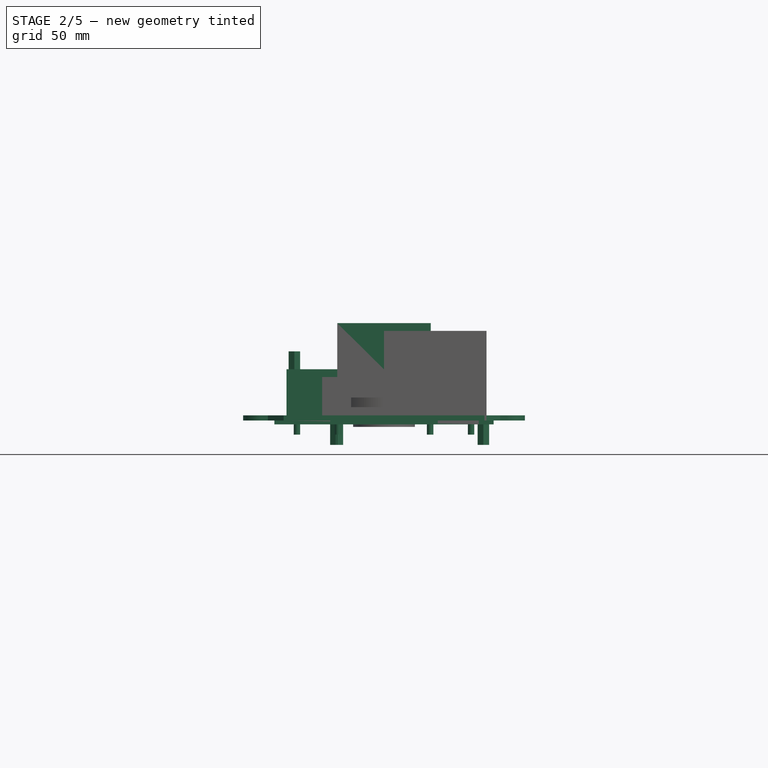
[diagram: stage 2 of 5 — front view after this stage's code; geometry added in this stage tinted green]
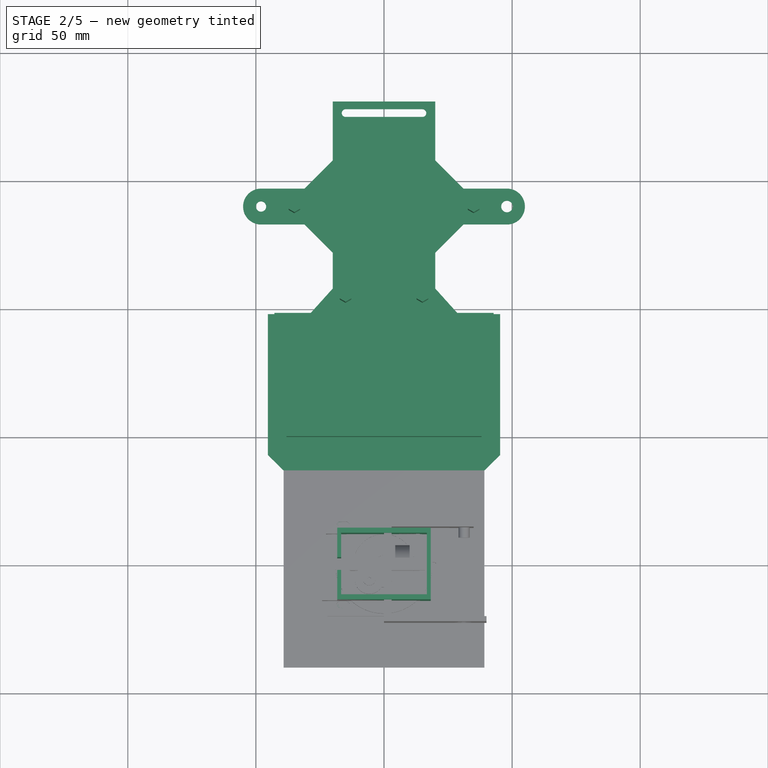
[diagram: stage 2 of 5 — top view after this stage's code; geometry added in this stage tinted green]
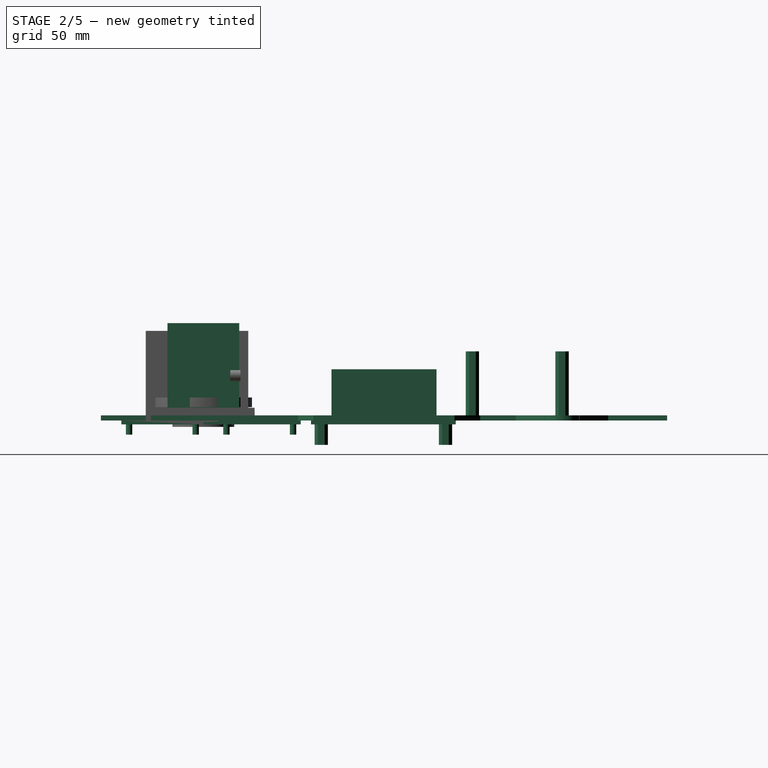
[diagram: stage 2 of 5 — right view after this stage's code; geometry added in this stage tinted green]
FEATURE [PartDesign::Body] Body027  label="ServoSteering"
  Group = -> [Sketch085,Pad075,Sketch086,Pad076,Sketch087,Pad077]
  Origin = -> Origin027
  Placement = pos=(134,6,48.4) rot=(0,1,0;3.14159rad)
  Tip = -> Pad077
FEATURE [Sketcher::SketchObject] Sketch003  label="SterringPlateSketch"
  FullyConstrained = true
  MapMode = 5
  Support = -> [XY_Plane002]
  sketch-geometry (22):
    g0: LineSegment StartX=-20 StartY=181 StartZ=0 EndX=20 EndY=181 EndZ=0
    g1: LineSegment StartX=20 StartY=181 StartZ=0 EndX=20 EndY=158 EndZ=0
    g2: LineSegment StartX=20 StartY=158 StartZ=0 EndX=31 EndY=147 EndZ=0
    g3: LineSegment StartX=31 StartY=147 StartZ=0 EndX=48 EndY=147 EndZ=0
    g4: LineSegment StartX=48 StartY=133 StartZ=0 EndX=31 EndY=133 EndZ=0
    g5: LineSegment StartX=31 StartY=133 StartZ=0 EndX=20 EndY=122 EndZ=0
    g6: LineSegment StartX=20 StartY=122 StartZ=0 EndX=20 EndY=98 EndZ=0
    g7: LineSegment StartX=20 StartY=98 StartZ=0 EndX=-20 EndY=98 EndZ=0
    g8: LineSegment StartX=-20 StartY=98 StartZ=0 EndX=-20 EndY=122 EndZ=0
    g9: LineSegment StartX=-20 StartY=122 StartZ=0 EndX=-31 EndY=133 EndZ=0
    g10: LineSegment StartX=-31 StartY=133 StartZ=0 EndX=-48 EndY=133 EndZ=0
    g11: LineSegment StartX=-48 StartY=147 StartZ=0 EndX=-31 EndY=147 EndZ=0
    g12: LineSegment StartX=-31 StartY=147 StartZ=0 EndX=-20 EndY=158 EndZ=0
    g13: LineSegment StartX=-20 StartY=158 StartZ=0 EndX=-20 EndY=181 EndZ=0
    g14: ArcOfCircle CenterX=-48 CenterY=140 CenterZ=0 NormalX=0 NormalY=0 NormalZ=1 AngleXU=0 Radius=7 StartAngle=1.5708 EndAngle=4.71239
    g15: Circle CenterX=-48 CenterY=140 CenterZ=0 NormalX=0 NormalY=0 NormalZ=1 AngleXU=0 Radius=2
    g16: ArcOfCircle CenterX=48 CenterY=140 CenterZ=0 NormalX=0 NormalY=0 NormalZ=1 AngleXU=0 Radius=7 StartAngle=4.71239 EndAngle=7.85398
    g17: Circle CenterX=48 CenterY=140 CenterZ=0 NormalX=0 NormalY=0 NormalZ=1 AngleXU=0 Radius=2.25
    g18: LineSegment StartX=-15 StartY=178 StartZ=0 EndX=15 EndY=178 EndZ=0
    g19: LineSegment StartX=15 StartY=175 StartZ=0 EndX=-15 EndY=175 EndZ=0
    g20: ArcOfCircle CenterX=-15 CenterY=176.5 CenterZ=0 NormalX=0 NormalY=0 NormalZ=1 AngleXU=0 Radius=1.5 StartAngle=1.5708 EndAngle=4.71239
    g21: ArcOfCircle CenterX=15 CenterY=176.5 CenterZ=0 NormalX=0 NormalY=0 NormalZ=1 AngleXU=0 Radius=1.5 StartAngle=4.71239 EndAngle=7.85398
  constraints (59):
    c: Coincident(g1,g0)
    c: Vertical(g1)
    c: Coincident(g2,g1)
    c: Coincident(g3,g2)
    c: Horizontal(g3)
    c: Horizontal(g4)
    c: Coincident(g5,g4)
    c: Coincident(g6,g5)
    c: Vertical(g6)
    c: Coincident(g7,g6)
    c: Coincident(g8,g7)
    c: Coincident(g9,g8)
    c: Coincident(g10,g9)
    c: Coincident(g12,g11)
    c: Coincident(g13,g12)
    c: Coincident(g13,g0)
    c: Symmetric(g7,g6,g-2)
    c: Symmetric(g8,g5,g-2)
    c: Symmetric(g9,g4,g-2)
    c: Symmetric(g10,g4,g-2)
    c: Symmetric(g11,g3,g-2)
    c: Symmetric(g11,g2,g-2)
    c: Symmetric(g12,g1,g-2)
    c: Symmetric(g0,g0,g-2)
    c: Vertical(g8,g12)
    c: DistanceX(g7,g6) = 40
    c: Vertical(g2,g4)
    c: DistanceY(g4,g3) = 14
    c: DistanceY(g2,g1) = 11
    c: DistanceX(g1,g2) = 11
    c: DistanceY(g5,g4) = 11
    c: DistanceY(g6,g6) = 24
    c: DistanceY(g-1,g10) = 133
    c: DistanceY(g1,g0) = 23
    c: DistanceX(g11,g3) = 96
    c: Coincident(g14,g10)
    c: Coincident(g14,g11)
    c: Vertical(g14,g10)
    c: Vertical(g10,g11)
    c: Coincident(g15,g14)
    c: Diameter(g15) = 4
    c: Coincident(g16,g3)
    c: Coincident(g16,g4)
    c: Vertical(g4,g16)
    c: Coincident(g17,g16)
    c: Diameter(g17) = 4.5
    c: Horizontal(g18)
    c: Coincident(g20,g18)
    c: Coincident(g20,g19)
    c: Coincident(g21,g18)
    c: Coincident(g21,g19)
    c: Vertical(g18,g20)
    c: Vertical(g20,g19)
    c: Vertical(g18,g21)
    c: Vertical(g21,g19)
    c: Symmetric(g20,g21,g-2)
    c: DistanceX(g0,g20) = 5
    c: DistanceY(g18,g0) = 3
    c: DistanceY(g19,g18) = 3
FEATURE [PartDesign::Pad] Pad003  label="SteeringPlatePad"
  Direction = (1,1,1)
  Length = 2
  Length2 = 100
  Profile = -> Sketch003
  Type = 0
FEATURE [PartDesign::Body] Body029  label="ServoCamPan"
  Group = -> [Sketch091,Pad081,Sketch092,Pad080,Sketch090,Pad082]
  Origin = -> Origin029
  Placement = pos=(190,-6,60.4) rot=(1,0,0;3.14159rad)
  Tip = -> Pad082
FEATURE [Sketcher::SketchObject] Sketch093
  FullyConstrained = true
  MapMode = 5
  Support = -> [XY_Plane030]
  sketch-geometry (4):
    g0: LineSegment StartX=-21.25 StartY=19.75 StartZ=0 EndX=21.25 EndY=19.75 EndZ=0
    g1: LineSegment StartX=21.25 StartY=19.75 StartZ=0 EndX=21.25 EndY=-19.75 EndZ=0
    g2: LineSegment StartX=21.25 StartY=-19.75 StartZ=0 EndX=-21.25 EndY=-19.75 EndZ=0
    g3: LineSegment StartX=-21.25 StartY=-19.75 StartZ=0 EndX=-21.25 EndY=19.75 EndZ=0
  constraints (10):
    c: Coincident(g0,g1)
    c: Coincident(g1,g2)
    c: Coincident(g2,g3)
    c: Coincident(g3,g0)
    c: Horizontal(g0)
    c: Vertical(g1)
    c: Symmetric(g2,g1,g-2)
    c: Symmetric(g0,g2,g-1)
    c: DistanceX(g2,g2) = 42.5
    c: DistanceY(g3,g3) = 39.5
FEATURE [PartDesign::Pad] Pad083
  Direction = (1,1,1)
  Length = 2
  Length2 = 100
  Profile = -> Sketch093
  Type = 0
FEATURE [PartDesign::Body] Body031  label="ServoCamTilt"
  Group = -> [Sketch095,Pad086,Sketch096,Pad084,Sketch094,Pad085]
  Origin = -> Origin031
  Placement = pos=(190,7.4,73.4) rot=(1,0,0;1.5708rad)
  Tip = -> Pad085
FEATURE [Sketcher::SketchObject] Sketch097
  FullyConstrained = true
  MapMode = 5
  Support = -> [XY_Plane032]
  sketch-geometry (10):
    g0: LineSegment StartX=-18.25 StartY=14 StartZ=0 EndX=18.25 EndY=14 EndZ=0
    g1: LineSegment StartX=18.25 StartY=14 StartZ=0 EndX=18.25 EndY=-14 EndZ=0
    g2: LineSegment StartX=18.25 StartY=-14 StartZ=0 EndX=-18.25 EndY=-14 EndZ=0
    g3: LineSegment StartX=-18.25 StartY=-14 StartZ=0 EndX=-18.25 EndY=14 EndZ=0
    g4: LineSegment StartX=-11.5 StartY=6.25 StartZ=0 EndX=11.5 EndY=6.25 EndZ=0
    g5: LineSegment StartX=11.5 StartY=6.25 StartZ=0 EndX=11.5 EndY=-6.25 EndZ=0
    g6: LineSegment StartX=11.5 StartY=-6.25 StartZ=0 EndX=-11.5 EndY=-6.25 EndZ=0
    g7: LineSegment StartX=-11.5 StartY=-6.25 StartZ=0 EndX=-11.5 EndY=6.25 EndZ=0
    g8: Circle CenterX=-13.65 CenterY=0 CenterZ=0 NormalX=0 NormalY=0 NormalZ=1 AngleXU=0 Radius=1.1
    g9: Circle CenterX=13.65 CenterY=0 CenterZ=0 NormalX=0 NormalY=0 NormalZ=1 AngleXU=0 Radius=1.1
  constraints (25):
    c: Coincident(g0,g1)
    c: Coincident(g1,g2)
    c: Coincident(g2,g3)
    c: Coincident(g3,g0)
    c: Horizontal(g0)
    c: Vertical(g1)
    c: Symmetric(g2,g1,g-2)
    c: Symmetric(g2,g0,g-1)
    c: Coincident(g4,g5)
    c: Coincident(g5,g6)
    c: Coincident(g6,g7)
    c: Coincident(g7,g4)
    c: Horizontal(g4)
    c: Vertical(g5)
    c: Symmetric(g6,g5,g-2)
    c: Symmetric(g6,g4,g-1)
    c: DistanceY(g7,g7) = 12.5
    c: DistanceX(g6,g6) = 23
    c: DistanceX(g2,g2) = 36.5
    c: DistanceY(g3,g3) = 28
    c: PointOnObject(g8,g-1)
    c: Diameter(g9) = 2.2
    c: Diameter(g8) = 2.2
    c: Symmetric(g8,g9,g-2)
    c: DistanceX(g8,g9) = 27.3
FEATURE [PartDesign::Pad] Pad087
  Direction = (1,1,1)
  Length = 2
  Length2 = 100
  Profile = -> Sketch097
  Type = 0
FEATURE [Sketcher::SketchObject] Sketch098
  ExternalGeometry = -> [Pad087]
  FullyConstrained = true
  MapMode = 5
  Placement = pos=(0,0,2) rot=(0,0,1;0rad)
  Support = -> [Pad087]
  sketch-geometry (12):
    g0: LineSegment StartX=-18.25 StartY=-14 StartZ=0 EndX=18.25 EndY=-14 EndZ=0
    g1: LineSegment StartX=18.25 StartY=-14 StartZ=0 EndX=18.25 EndY=14 EndZ=0
    g2: LineSegment StartX=18.25 StartY=14 StartZ=0 EndX=-18.25 EndY=14 EndZ=0
    g3: LineSegment StartX=-18.25 StartY=14 StartZ=0 EndX=-18.25 EndY=2.5 EndZ=0
    g4: LineSegment StartX=-18.25 StartY=2.5 StartZ=0 EndX=-16.75 EndY=2.5 EndZ=0
    g5: LineSegment StartX=-16.75 StartY=2.5 StartZ=0 EndX=-16.75 EndY=12 EndZ=0
    g6: LineSegment StartX=-16.75 StartY=12 StartZ=0 EndX=16.75 EndY=12 EndZ=0
    g7: LineSegment StartX=16.75 StartY=12 StartZ=0 EndX=16.75 EndY=-12 EndZ=0
    g8: LineSegment StartX=16.75 StartY=-12 StartZ=0 EndX=-16.75 EndY=-12 EndZ=0
    g9: LineSegment StartX=-16.75 StartY=-12 StartZ=0 EndX=-16.75 EndY=-2.5 EndZ=0
    g10: LineSegment StartX=-16.75 StartY=-2.5 StartZ=0 EndX=-18.25 EndY=-2.5 EndZ=0
    g11: LineSegment StartX=-18.25 StartY=-2.5 StartZ=0 EndX=-18.25 EndY=-14 EndZ=0
  constraints (27):
    c: Coincident(g0,g-4)
    c: Coincident(g0,g-4)
    c: Coincident(g1,g0)
    c: Coincident(g1,g-3)
    c: Coincident(g2,g-3)
    c: Coincident(g4,g3)
    c: Horizontal(g4)
    c: Coincident(g9,g8)
    c: Vertical(g9)
    c: Coincident(g11,g0)
    c: Coincident(g5,g6)
    c: Coincident(g5,g4)
    c: Coincident(g6,g7)
    c: Coincident(g8,g7)
    c: Coincident(g10,g9)
    c: Coincident(g10,g11)
    c: Coincident(g3,g2)
    c: Coincident(g1,g2)
    c: Symmetric(g10,g3,g-1)
    c: DistanceY(g10,g3) = 5
    c: Vertical(g11)
    c: Symmetric(g7,g6,g-1)
    c: Symmetric(g5,g6,g-2)
    c: Symmetric(g5,g8,g-1)
    c: Symmetric(g4,g9,g-1)
    c: DistanceY(g0,g8) = 2
    c: DistanceX(g2,g5) = 1.5
FEATURE [PartDesign::Pad] Pad088
  BaseFeature = -> Pad087
  Direction = (1,1,1)
  Length = 36
  Length2 = 100
  Profile = -> Sketch098
  Type = 0
FEATURE [PartDesign::Body] Body032  label="SupportCamPan"
  Group = -> [Sketch097,Pad087,Sketch098,Pad088,Sketch099,Pocket005,Sketch100,Pocket006,Sketch107,Pad092]
  Origin = -> Origin032
  Placement = pos=(190,0,39) rot=(0,0,1;0rad)
  Tip = -> Pad092
FEATURE [Sketcher::SketchObject] Sketch101
  FullyConstrained = true
  MapMode = 5
  Support = -> [XY_Plane033]
  sketch-geometry (8):
    g0: LineSegment StartX=35 StartY=14.5 StartZ=0 EndX=3 EndY=14.5 EndZ=0
    g1: LineSegment StartX=3 StartY=14.5 StartZ=0 EndX=3 EndY=-20.5 EndZ=0
    g2: LineSegment StartX=3 StartY=-20.5 StartZ=0 EndX=40 EndY=-20.5 EndZ=0
    g3: LineSegment StartX=40 StartY=-20.5 StartZ=0 EndX=40 EndY=-22.5 EndZ=0
    g4: LineSegment StartX=40 StartY=-22.5 StartZ=0 EndX=0 EndY=-22.5 EndZ=0
    g5: LineSegment StartX=0 StartY=-22.5 StartZ=0 EndX=0 EndY=17.5 EndZ=0
    g6: LineSegment StartX=0 StartY=17.5 StartZ=0 EndX=35 EndY=17.5 EndZ=0
    g7: LineSegment StartX=35 StartY=17.5 StartZ=0 EndX=35 EndY=14.5 EndZ=0
  constraints (24):
    c: Horizontal(g0)
    c: Coincident(g1,g0)
    c: Vertical(g1)
    c: Coincident(g2,g1)
    c: Horizontal(g2)
    c: Coincident(g3,g2)
    c: Vertical(g3)
    c: Coincident(g4,g3)
    c: Horizontal(g4)
    c: Coincident(g5,g4)
    c: Vertical(g5)
    c: Coincident(g6,g5)
    c: Horizontal(g6)
    c: Coincident(g7,g6)
    c: Coincident(g7,g0)
    c: Vertical(g7)
    c: DistanceX(g5,g0) = 3
    c: DistanceY(g0,g5) = 3
    c: DistanceY(g4,g1) = 2
    c: DistanceX(g5,g6) = 35
    c: DistanceX(g4,g3) = 40
    c: DistanceY(g4,g5) = 40
    c: DistanceY(g-1,g0) = 14.5
    c: PointOnObject(g-1,g5)
FEATURE [PartDesign::Pad] Pad089
  Direction = (1,1,1)
  Length = 35
  Length2 = 100
  Profile = -> Sketch101
  Type = 0
FEATURE [Sketcher::SketchObject] Sketch102
  ExternalGeometry = -> [Pad089]
  FullyConstrained = true
  MapMode = 5
  Placement = pos=(0,-22.5,0) rot=(1,0,0;1.5708rad)
  Support = -> [Pad089]
  sketch-geometry (5):
    g0: LineSegment StartX=0 StartY=17.5 StartZ=0 EndX=40 EndY=17.5 EndZ=0
    g1: Circle CenterX=31.25 CenterY=17.5 CenterZ=0 NormalX=0 NormalY=0 NormalZ=1 AngleXU=0 Radius=3.75
    g2: LineSegment StartX=31.25 StartY=35 StartZ=0 EndX=31.25 EndY=0 EndZ=0
    g3: Circle CenterX=31.25 CenterY=28 CenterZ=0 NormalX=0 NormalY=0 NormalZ=1 AngleXU=0 Radius=1.1
    g4: Circle CenterX=31.25 CenterY=7 CenterZ=0 NormalX=0 NormalY=0 NormalZ=1 AngleXU=0 Radius=1.1
  constraints (15):
    c: PointOnObject(g0,g-2)
    c: PointOnObject(g0,g-4)
    c: Symmetric(g-3,g-1,g0)
    c: PointOnObject(g1,g0)
    c: Diameter(g1) = 7.5
    c: PointOnObject(g2,g-3)
    c: PointOnObject(g2,g-1)
    c: Vertical(g2)
    c: DistanceX(g-1,g2) = 31.25
    c: PointOnObject(g1,g2)
    c: PointOnObject(g3,g2)
    c: Diameter(g3) = 2.2
    c: Diameter(g4) = 2.2
    c: Symmetric(g4,g3,g0)
    c: DistanceY(g4,g3) = 21
FEATURE [PartDesign::Pocket] Pocket007
  BaseFeature = -> Pad089
  Length = 3
  Length2 = 100
  Profile = -> Sketch102
  Type = 0
FEATURE [Sketcher::SketchObject] Sketch103
  ExternalGeometry = -> [Pocket007]
  FullyConstrained = true
  MapMode = 5
  Placement = pos=(0,14.5,0) rot=(1,0,0;1.5708rad)
  Support = -> [Pocket007]
  sketch-geometry (2):
    g0: LineSegment StartX=0 StartY=17.5 StartZ=0 EndX=35 EndY=17.5 EndZ=0
    g1: Circle CenterX=31.25 CenterY=17.5 CenterZ=0 NormalX=0 NormalY=0 NormalZ=1 AngleXU=0 Radius=2.15
  constraints (6):
    c: PointOnObject(g0,g-2)
    c: PointOnObject(g0,g-4)
    c: Symmetric(g-3,g-1,g0)
    c: PointOnObject(g1,g0)
    c: Diameter(g1) = 4.3
    c: DistanceX(g-1,g1) = 31.25
FEATURE [PartDesign::Pad] Pad090
  BaseFeature = -> Pocket007
  Direction = (1,1,1)
  Length = 4
  Length2 = 100
  Profile = -> Sketch103
  Type = 0
FEATURE [PartDesign::Body] Body033  label="SupportCamTilt"
  Group = -> [Sketch101,Pad089,Sketch102,Pocket007,Sketch103,Pad090]
  Origin = -> Origin033
  Placement = pos=(153,0,50) rot=(0,1,0;0rad)
  Tip = -> Pad090
FEATURE [Sketcher::SketchObject] Sketch104
  FullyConstrained = true
  MapMode = 5
  Placement = pos=(0,0,0) rot=(0.57735,0.57735,0.57735;2.0944rad)
  Support = -> [YZ_Plane034]
  sketch-geometry (5):
    g0: LineSegment StartX=7.625 StartY=9.22 StartZ=0 EndX=7.625 EndY=0 EndZ=0
    g1: LineSegment StartX=7.625 StartY=0 StartZ=0 EndX=-7.625 EndY=0 EndZ=0
    g2: LineSegment StartX=-7.625 StartY=0 StartZ=0 EndX=-7.625 EndY=9.22 EndZ=0
    g3: ArcOfCircle CenterX=0 CenterY=9.22 CenterZ=0 NormalX=0 NormalY=0 NormalZ=1 AngleXU=0 Radius=7.625 StartAngle=0 EndAngle=3.14159
    g4: Circle CenterX=0 CenterY=9.22 CenterZ=0 NormalX=0 NormalY=0 NormalZ=1 AngleXU=0 Radius=3.25
  constraints (15):
    c: Coincident(g0,g1)
    c: Coincident(g1,g2)
    c: Horizontal(g1)
    c: Vertical(g0)
    c: Vertical(g2)
    c: PointOnObject(g0,g-1)
    c: PointOnObject(g3,g-2)
    c: Coincident(g3,g2)
    c: Coincident(g3,g0)
    c: Horizontal(g2,g3)
    c: Horizontal(g3,g0)
    c: DistanceY(g1,g2) = 9.22
    c: Coincident(g4,g3)
    c: Diameter(g4) = 6.5
    c: Diameter(g3) = 15.25
FEATURE [PartDesign::Pad] Pad091
  Direction = (1,1,1)
  Length = 14.4
  Length2 = 100
  Placement = pos=(0,0,0) rot=(0.57735,0.57735,0.57735;2.0944rad)
  Profile = -> Sketch104
  Type = 0
FEATURE [Sketcher::SketchObject] Sketch105
  ExternalGeometry = -> [Pad091]
  FullyConstrained = true
  MapMode = 5
  Placement = pos=(0,0,0) rot=(-0.57735,-0.57735,0.57735;2.0944rad)
  Support = -> [Pad091]
  sketch-geometry (7):
    g0: ArcOfCircle CenterX=3.1e-15 CenterY=-9.22 CenterZ=0 NormalX=0 NormalY=0 NormalZ=1 AngleXU=0 Radius=7.625 StartAngle=3.14159 EndAngle=6.28319
    g1: LineSegment StartX=-7.625 StartY=-9.22 StartZ=0 EndX=7.625 EndY=-9.22 EndZ=0
    g2: LineSegment StartX=7.625 StartY=-9.22 StartZ=0 EndX=7.625 EndY=-6.22 EndZ=0
    g3: LineSegment StartX=7.625 StartY=-6.22 StartZ=0 EndX=7.01004 EndY=-6.22 EndZ=0
    g4: LineSegment StartX=-7.625 StartY=-6.22 StartZ=0 EndX=-7.625 EndY=-9.22 EndZ=0
    g5: LineSegment StartX=-7.01004 StartY=-6.22 StartZ=0 EndX=-7.625 EndY=-6.22 EndZ=0
    g6: ArcOfCircle CenterX=3.1e-15 CenterY=-9.22 CenterZ=0 NormalX=0 NormalY=0 NormalZ=1 AngleXU=0 Radius=7.625 StartAngle=0.404373 EndAngle=2.73722
  constraints (18):
    c: Coincident(g0,g-3)
    c: Coincident(g1,g2)
    c: Coincident(g2,g3)
    c: Coincident(g5,g4)
    c: Coincident(g4,g1)
    c: Horizontal(g3)
    c: Vertical(g2)
    c: Vertical(g4)
    c: Coincident(g1,g-3)
    c: Coincident(g1,g-3)
    c: DistanceY(g1,g5) = 3
    c: Coincident(g0,g1)
    c: Coincident(g5,g6)
    c: Tangent(g3,g5)
    c: Equal(g0,g6)
    c: PointOnObject(g0,g1)
    c: Coincident(g6,g3)
    c: Coincident(g0,g6)
FEATURE [PartDesign::Pocket] Pocket008
  BaseFeature = -> Pad091
  Length = 4.4
  Length2 = 100
  Placement = pos=(0,0,0) rot=(0.57735,0.57735,0.57735;2.0944rad)
  Profile = -> Sketch105
  Type = 0
FEATURE [Sketcher::SketchObject] Sketch106
  ExternalGeometry = -> [Pocket008]
  FullyConstrained = true
  MapMode = 5
  Placement = pos=(14.4,-9.6e-15,4.8e-15) rot=(0.57735,0.57735,0.57735;2.0944rad)
  Support = -> [Pocket008]
  sketch-geometry (7):
    g0: ArcOfCircle CenterX=-1.3e-15 CenterY=9.22 CenterZ=0 NormalX=0 NormalY=0 NormalZ=1 AngleXU=0 Radius=7.625 StartAngle=3.54597 EndAngle=5.87881
    g1: LineSegment StartX=-7.625 StartY=9.22 StartZ=0 EndX=7.625 EndY=9.22 EndZ=0
    g2: LineSegment StartX=7.625 StartY=9.22 StartZ=0 EndX=7.625 EndY=6.22 EndZ=0
    g3: LineSegment StartX=7.625 StartY=6.22 StartZ=0 EndX=7.01004 EndY=6.22 EndZ=0
    g4: LineSegment StartX=-7.625 StartY=6.22 StartZ=0 EndX=-7.625 EndY=9.22 EndZ=0
    g5: LineSegment StartX=-7.01004 StartY=6.22 StartZ=0 EndX=-7.625 EndY=6.22 EndZ=0
    g6: ArcOfCircle CenterX=-1.3e-15 CenterY=9.22 CenterZ=0 NormalX=0 NormalY=0 NormalZ=1 AngleXU=0 Radius=7.625 StartAngle=0 EndAngle=3.14159
  constraints (18):
    c: Coincident(g0,g-3)
    c: Diameter(g0) = 15.25
    c: Coincident(g1,g2)
    c: Coincident(g2,g3)
    c: Coincident(g5,g4)
    c: Coincident(g4,g1)
    c: Horizontal(g3)
    c: Vertical(g2)
    c: Vertical(g4)
    c: Coincident(g1,g-3)
    c: Coincident(g1,g-3)
    c: DistanceY(g2,g1) = 3
    c: Coincident(g6,g1)
    c: Coincident(g5,g0)
    c: Tangent(g3,g5)
    c: Coincident(g0,g3)
    c: PointOnObject(g6,g1)
    c: Coincident(g0,g6)
FEATURE [PartDesign::Pocket] Pocket009
  BaseFeature = -> Pocket008
  Length = 4.4
  Length2 = 100
  Placement = pos=(0,0,0) rot=(0.57735,0.57735,0.57735;2.0944rad)
  Profile = -> Sketch106
  Type = 0
FEATURE [PartDesign::Body] Body034  label="XitionFixation"
  Group = -> [Sketch104,Pad091,Sketch105,Pocket008,Sketch106,Pocket009]
  Origin = -> Origin034
  Placement = pos=(154,-7.2,67.5) rot=(0.57735,0.57735,-0.57735;4.18879rad)
  Tip = -> Pocket009
FEATURE [Sketcher::SketchObject] Sketch108
  FullyConstrained = true
  MapMode = 5
  Support = -> [XY_Plane035]
  sketch-geometry (4):
    g0: LineSegment StartX=-18.25 StartY=14 StartZ=0 EndX=18.25 EndY=14 EndZ=0
    g1: LineSegment StartX=18.25 StartY=14 StartZ=0 EndX=18.25 EndY=-14 EndZ=0
    g2: LineSegment StartX=18.25 StartY=-14 StartZ=0 EndX=-18.25 EndY=-14 EndZ=0
    g3: LineSegment StartX=-18.25 StartY=-14 StartZ=0 EndX=-18.25 EndY=14 EndZ=0
  constraints (10):
    c: Coincident(g0,g1)
    c: Coincident(g1,g2)
    c: Coincident(g2,g3)
    c: Coincident(g3,g0)
    c: Horizontal(g2)
    c: Vertical(g1)
    c: Symmetric(g0,g0,g-2)
    c: Symmetric(g0,g2,g-1)
    c: DistanceY(g3,g3) = 28
    c: DistanceX(g2,g2) = 36.5
FEATURE [PartDesign::Pad] Pad093
  Direction = (1,1,1)
  Length = 1.5
  Length2 = 100
  Profile = -> Sketch108
  Type = 0
FEATURE [Sketcher::SketchObject] Sketch109
  ExternalGeometry = -> [Pad093]
  FullyConstrained = true
  MapMode = 5
  Placement = pos=(0,0,0) rot=(1,0,0;3.14159rad)
  Support = -> [Pad093]
  sketch-geometry (8):
    g0: LineSegment StartX=-16.55 StartY=11.8 StartZ=0 EndX=16.55 EndY=11.8 EndZ=0
    g1: LineSegment StartX=16.55 StartY=11.8 StartZ=0 EndX=16.55 EndY=-11.8 EndZ=0
    g2: LineSegment StartX=16.55 StartY=-11.8 StartZ=0 EndX=-16.55 EndY=-11.8 EndZ=0
    g3: LineSegment StartX=-16.55 StartY=-11.8 StartZ=0 EndX=-16.55 EndY=11.8 EndZ=0
    g4: LineSegment StartX=-15.8 StartY=11.05 StartZ=0 EndX=15.8 EndY=11.05 EndZ=0
    g5: LineSegment StartX=15.8 StartY=11.05 StartZ=0 EndX=15.8 EndY=-11.05 EndZ=0
    g6: LineSegment StartX=15.8 StartY=-11.05 StartZ=0 EndX=-15.8 EndY=-11.05 EndZ=0
    g7: LineSegment StartX=-15.8 StartY=-11.05 StartZ=0 EndX=-15.8 EndY=11.05 EndZ=0
  constraints (24):
    c: Coincident(g0,g1)
    c: Coincident(g1,g2)
    c: Coincident(g2,g3)
    c: Coincident(g3,g0)
    c: Horizontal(g0)
    c: Horizontal(g2)
    c: Vertical(g1)
    c: Vertical(g3)
    c: Coincident(g4,g5)
    c: Coincident(g5,g6)
    c: Coincident(g6,g7)
    c: Coincident(g7,g4)
    c: Horizontal(g4)
    c: Horizontal(g6)
    c: Vertical(g5)
    c: Vertical(g7)
    c: DistanceX(g0,g4) = 0.75
    c: DistanceY(g4,g0) = 0.75
    c: DistanceY(g1,g5) = 0.75
    c: DistanceX(g5,g1) = 0.75
    c: DistanceX(g-3,g0) = 1.7
    c: DistanceY(g0,g-3) = 2.2
    c: DistanceX(g1,g-4) = 1.7
    c: DistanceY(g-4,g1) = 2.2
FEATURE [PartDesign::Pad] Pad094
  BaseFeature = -> Pad093
  Direction = (1,1,1)
  Length = 1.5
  Length2 = 100
  Profile = -> Sketch109
  Type = 0
FEATURE [Sketcher::SketchObject] Sketch110
  ExternalGeometry = -> [Pad094]
  FullyConstrained = true
  MapMode = 5
  Placement = pos=(0,0,0) rot=(1,0,0;3.14159rad)
  Support = -> [Pad094]
  sketch-geometry (4):
    g0: LineSegment StartX=-18.2 StartY=1.9 StartZ=0 EndX=-15.8 EndY=1.9 EndZ=0
    g1: LineSegment StartX=-15.8 StartY=1.9 StartZ=0 EndX=-15.8 EndY=-1.9 EndZ=0
    g2: LineSegment StartX=-15.8 StartY=-1.9 StartZ=0 EndX=-18.2 EndY=-1.9 EndZ=0
    g3: LineSegment StartX=-18.2 StartY=-1.9 StartZ=0 EndX=-18.2 EndY=1.9 EndZ=0
  constraints (11):
    c: Coincident(g0,g1)
    c: Coincident(g1,g2)
    c: Coincident(g2,g3)
    c: Coincident(g3,g0)
    c: Horizontal(g0)
    c: Horizontal(g2)
    c: Vertical(g1)
    c: Symmetric(g0,g2,g-1)
    c: PointOnObject(g0,g-4)
    c: DistanceX(g0,g0) = 2.4
    c: DistanceY(g2,g0) = 3.8
FEATURE [PartDesign::Body] Body035  label="SupportCamPanTop"
  Group = -> [Sketch108,Pad093,Sketch109,Pad094,Sketch110]
  Origin = -> Origin035
  Placement = pos=(190,0,77) rot=(0,0,1;0rad)
  Tip = -> Pad094
FEATURE [Sketcher::SketchObject] Sketch
  FullyConstrained = true
  MapMode = 5
  Support = -> [XY_Plane]
  sketch-geometry (32):
    g0: LineSegment StartX=39.2 StartY=-40 StartZ=0 EndX=-39.2 EndY=-40 EndZ=0
    g1: LineSegment StartX=-39.2 StartY=-40 StartZ=0 EndX=-39.2 EndY=37 EndZ=0
    g2: LineSegment StartX=-39.2 StartY=37 StartZ=0 EndX=-45.35 EndY=43 EndZ=0
    g3: LineSegment StartX=-45.35 StartY=43 StartZ=0 EndX=-45.35 EndY=98 EndZ=0
    g4: LineSegment StartX=-45.35 StartY=98 StartZ=0 EndX=-29 EndY=98 EndZ=0
    g5: LineSegment StartX=-29 StartY=98 StartZ=0 EndX=-20 EndY=108 EndZ=0
    g6: LineSegment StartX=-20 StartY=108 StartZ=0 EndX=-20 EndY=122 EndZ=0
    g7: LineSegment StartX=-20 StartY=122 StartZ=0 EndX=-31 EndY=133 EndZ=0
    g8: LineSegment StartX=-31 StartY=133 StartZ=0 EndX=-48 EndY=133 EndZ=0
    g9: LineSegment StartX=-48 StartY=147 StartZ=0 EndX=-31 EndY=147 EndZ=0
    g10: LineSegment StartX=-31 StartY=147 StartZ=0 EndX=-20 EndY=158 EndZ=0
    g11: LineSegment StartX=-20 StartY=158 StartZ=0 EndX=-20 EndY=169 EndZ=0
    g12: LineSegment StartX=-20 StartY=169 StartZ=0 EndX=20 EndY=169 EndZ=0
    g13: LineSegment StartX=39.2 StartY=-40 StartZ=0 EndX=39.2 EndY=37 EndZ=0
    g14: LineSegment StartX=39.2 StartY=37 StartZ=0 EndX=45.35 EndY=43 EndZ=0
    g15: LineSegment StartX=45.35 StartY=43 StartZ=0 EndX=45.35 EndY=98 EndZ=0
    g16: LineSegment StartX=45.35 StartY=98 StartZ=0 EndX=29 EndY=98 EndZ=0
    g17: LineSegment StartX=29 StartY=98 StartZ=0 EndX=20 EndY=108 EndZ=0
    g18: LineSegment StartX=20 StartY=108 StartZ=0 EndX=20 EndY=122 EndZ=0
    g19: LineSegment StartX=20 StartY=122 StartZ=0 EndX=31 EndY=133 EndZ=0
    g20: LineSegment StartX=31 StartY=133 StartZ=0 EndX=48 EndY=133 EndZ=0
    g21: LineSegment StartX=48 StartY=147 StartZ=0 EndX=31 EndY=147 EndZ=0
    g22: LineSegment StartX=31 StartY=147 StartZ=0 EndX=20 EndY=158 EndZ=0
    g23: LineSegment StartX=20 StartY=158 StartZ=0 EndX=20 EndY=169 EndZ=0
    g24: ArcOfCircle CenterX=-48 CenterY=140 CenterZ=0 NormalX=0 NormalY=0 NormalZ=1 AngleXU=0 Radius=7 StartAngle=1.5708 EndAngle=4.71239
    g25: ArcOfCircle CenterX=48 CenterY=140 CenterZ=0 NormalX=0 NormalY=0 NormalZ=1 AngleXU=0 Radius=7 StartAngle=4.71239 EndAngle=7.85398
    g26: Circle CenterX=-48 CenterY=140 CenterZ=0 NormalX=0 NormalY=0 NormalZ=1 AngleXU=0 Radius=2
    g27: Circle CenterX=48 CenterY=140 CenterZ=0 NormalX=0 NormalY=0 NormalZ=1 AngleXU=0 Radius=2.25
    g28: LineSegment StartX=-6 StartY=145.4 StartZ=0 EndX=6 EndY=145.4 EndZ=0
    g29: LineSegment StartX=6 StartY=145.4 StartZ=0 EndX=6 EndY=122.6 EndZ=0
    g30: LineSegment StartX=6 StartY=122.6 StartZ=0 EndX=-6 EndY=122.6 EndZ=0
    g31: LineSegment StartX=-6 StartY=122.6 StartZ=0 EndX=-6 EndY=145.4 EndZ=0
  constraints (82):
    c: Coincident(g1,g0)
    c: Vertical(g1)
    c: Coincident(g2,g1)
    c: Coincident(g3,g2)
    c: Vertical(g3)
    c: Coincident(g4,g3)
    c: Horizontal(g4)
    c: Coincident(g5,g4)
    c: Coincident(g6,g5)
    c: Vertical(g6)
    c: Coincident(g7,g6)
    c: Horizontal(g8)
    c: Horizontal(g9)
    c: Coincident(g10,g9)
    c: Coincident(g11,g10)
    c: Vertical(g11)
    c: Coincident(g13,g0)
    c: Coincident(g12,g23)
    c: Coincident(g23,g22)
    c: Symmetric(g0,g0,g-2)
    c: Coincident(g11,g12)
    c: Coincident(g13,g14)
    c: Symmetric(g1,g13,g-2)
    c: Symmetric(g2,g14,g-2)
    c: Coincident(g14,g15)
    c: Coincident(g16,g15)
    c: Coincident(g16,g17)
    c: Symmetric(g3,g15,g-2)
    c: Symmetric(g4,g16,g-2)
    c: Coincident(g18,g17)
    c: Coincident(g18,g19)
    c: Symmetric(g5,g17,g-2)
    c: Symmetric(g6,g18,g-2)
    c: Coincident(g8,g7)
    c: Coincident(g20,g19)
    c: Symmetric(g7,g19,g-2)
    c: Symmetric(g8,g20,g-2)
    c: Symmetric(g9,g21,g-2)
    c: Coincident(g22,g21)
    c: Symmetric(g9,g21,g-2)
    c: Symmetric(g11,g12,g-2)
    c: Symmetric(g10,g22,g-2)
    c: DistanceX(g0,g0) = 78.4
    c: DistanceY(g13,g13) = 77
    c: DistanceX(g2,g14) = 90.7
    c: DistanceY(g13,g14) = 6
    c: DistanceY(g15,g15) = 55
    c: DistanceY(g18,g18) = 14
    c: DistanceY(g20,g21) = 14
    c: Vertical(g6,g10)
    c: DistanceX(g12,g12) = 40
    c: Vertical(g9,g7)
    c: DistanceY(g23,g23) = 11
    c: DistanceY(g16,g17) = 10
    c: DistanceY(g18,g19) = 11
    c: DistanceY(g21,g22) = 11
    c: DistanceY(g0,g-1) = 40
    c: DistanceX(g17,g16) = 9
    c: DistanceX(g22,g21) = 11
    c: Coincident(g24,g8)
    c: Coincident(g24,g9)
    c: Vertical(g8,g24)
    c: Vertical(g24,g9)
    c: Coincident(g25,g20)
    c: Coincident(g25,g21)
    c: Vertical(g21,g25)
    c: DistanceX(g9,g21) = 96
    c: Coincident(g26,g24)
    c: Coincident(g27,g25)
    c: Diameter(g26) = 4
    c: Diameter(g27) = 4.5
    c: Coincident(g28,g29)
    c: Coincident(g29,g30)
    c: Coincident(g30,g31)
    c: Coincident(g31,g28)
    c: Horizontal(g28)
    c: Vertical(g29)
    c: Vertical(g31)
    c: Symmetric(g30,g29,g-2)
    c: DistanceX(g30,g30) = 12
    c: DistanceY(g30,g28) = 22.8
    c: DistanceY(g-1,g30) = 122.6
FEATURE [PartDesign::Pad] Pad  label="ChassisPad"
  Direction = (1,1,1)
  Length = 2
  Length2 = 100
  Profile = -> Sketch
  Type = 0
FEATURE [PartDesign::Body] Body
  Group = -> [Sketch,Pad]
  Origin = -> Origin
  Placement = pos=(0,0,27) rot=(0,0,-1;1.5708rad)
  Tip = -> Pad
FEATURE [Sketcher::SketchObject] Sketch005  label="BatterySketch"
  FullyConstrained = true
  MapMode = 5
  Support = -> [XY_Plane003]
  sketch-geometry (4):
    g0: LineSegment StartX=-38.05 StartY=91 StartZ=0 EndX=38.05 EndY=91 EndZ=0
    g1: LineSegment StartX=38.05 StartY=91 StartZ=0 EndX=38.05 EndY=50 EndZ=0
    g2: LineSegment StartX=38.05 StartY=50 StartZ=0 EndX=-38.05 EndY=50 EndZ=0
    g3: LineSegment StartX=-38.05 StartY=50 StartZ=0 EndX=-38.05 EndY=91 EndZ=0
  constraints (11):
    c: Coincident(g0,g1)
    c: Coincident(g1,g2)
    c: Coincident(g2,g3)
    c: Coincident(g3,g0)
    c: Horizontal(g2)
    c: Vertical(g1)
    c: Vertical(g3)
    c: Symmetric(g0,g0,g-2)
    c: DistanceX(g0,g0) = 76.1
    c: DistanceY(g1,g1) = 41
    c: DistanceY(g-1,g2) = 50
FEATURE [PartDesign::Pad] Pad005  label="BatteryPad"
  Direction = (1,1,1)
  Length = 20
  Length2 = 100
  Profile = -> Sketch005
  Type = 0
FEATURE [PartDesign::Body] Body003  label="Battery"
  Group = -> [Sketch005,Pad005]
  Origin = -> Origin003
  Placement = pos=(0,0,7) rot=(0,0,-1;1.5708rad)
  Tip = -> Pad005
FEATURE [Sketcher::SketchObject] Sketch008
  FullyConstrained = true
  MapMode = 5
  Support = -> [XY_Plane006]
  sketch-geometry (4):
    g0: LineSegment StartX=-21 StartY=0 StartZ=0 EndX=21 EndY=-9e-16 EndZ=0
    g1: LineSegment StartX=21 StartY=-9e-16 StartZ=0 EndX=21 EndY=-32 EndZ=0
    g2: LineSegment StartX=21 StartY=-32 StartZ=0 EndX=-21 EndY=-32 EndZ=0
    g3: LineSegment StartX=-21 StartY=-32 StartZ=0 EndX=-21 EndY=0 EndZ=0
  constraints (11):
    c: Coincident(g0,g1)
    c: Coincident(g1,g2)
    c: Coincident(g2,g3)
    c: Coincident(g3,g0)
    c: Horizontal(g2)
    c: Vertical(g1)
    c: Vertical(g3)
    c: DistanceX(g0,g0) = 42
    c: Symmetric(g0,g0,g-2)
    c: DistanceY(g1,g1) = 32
    c: DistanceY(g2,g-1) = 32
FEATURE [PartDesign::Pad] Pad009
  Direction = (1,1,1)
  Length = 1.5
  Length2 = 100
  Profile = -> Sketch008
  Reversed = true
  Type = 0
FEATURE [Sketcher::SketchObject] Sketch009
  ExternalGeometry = -> [Pad009]
  FullyConstrained = true
  MapMode = 5
  Placement = pos=(0,0,-1.5) rot=(1,0,0;3.14159rad)
  Support = -> [Pad009]
  sketch-geometry (4):
    g0: Circle CenterX=-18 CenterY=29 CenterZ=0 NormalX=0 NormalY=0 NormalZ=1 AngleXU=0 Radius=1.25
    g1: Circle CenterX=18 CenterY=29 CenterZ=0 NormalX=0 NormalY=0 NormalZ=1 AngleXU=0 Radius=1.25
    g2: Circle CenterX=18 CenterY=3 CenterZ=0 NormalX=0 NormalY=0 NormalZ=1 AngleXU=0 Radius=1.25
    g3: Circle CenterX=-18 CenterY=3 CenterZ=0 NormalX=0 NormalY=0 NormalZ=1 AngleXU=0 Radius=1.25
  constraints (10):
    c: Diameter(g0) = 2.5
    c: Diameter(g1) = 2.5
    c: Diameter(g2) = 2.5
    c: Diameter(g3) = 2.5
    c: Symmetric(g0,g1,g-2)
    c: Symmetric(g3,g2,g-2)
    c: Vertical(g3,g0)
    c: DistanceX(g-3,g0) = 3
    c: DistanceY(g0,g-3) = 3
    c: DistanceY(g-4,g3) = 3
FEATURE [PartDesign::Pad] Pad010
  BaseFeature = -> Pad009
  Direction = (1,1,1)
  Length = 4
  Length2 = 100
  Profile = -> Sketch009
  Type = 0
FEATURE [PartDesign::Body] Body006  label="MotorDriverCard"
  Group = -> [Sketch008,Pad009,Sketch009,Pad010]
  Origin = -> Origin006
  Placement = pos=(0,0,34.5) rot=(0,0,-1;1.5708rad)
  Tip = -> Pad010
FEATURE [Sketcher::SketchObject] Sketch010
  FullyConstrained = true
  MapMode = 5
  Support = -> [XY_Plane007]
  sketch-geometry (4):
    g0: LineSegment StartX=-37 StartY=38 StartZ=0 EndX=37 EndY=38 EndZ=0
    g1: LineSegment StartX=37 StartY=38 StartZ=0 EndX=37 EndY=6 EndZ=0
    g2: LineSegment StartX=37 StartY=6 StartZ=0 EndX=-37 EndY=6 EndZ=0
    g3: LineSegment StartX=-37 StartY=6 StartZ=0 EndX=-37 EndY=38 EndZ=0
  constraints (11):
    c: Coincident(g0,g1)
    c: Coincident(g1,g2)
    c: Coincident(g2,g3)
    c: Coincident(g3,g0)
    c: Horizontal(g2)
    c: Vertical(g1)
    c: Vertical(g3)
    c: Symmetric(g0,g0,g-2)
    c: DistanceX(g0,g0) = 74
    c: DistanceY(g1,g1) = 32
    c: DistanceY(g-1,g2) = 6
FEATURE [PartDesign::Pad] Pad011
  Direction = (1,1,1)
  Length = 1.5
  Length2 = 100
  Profile = -> Sketch010
  Reversed = true
  Type = 0
FEATURE [Sketcher::SketchObject] Sketch011
  ExternalGeometry = -> [Pad011]
  FullyConstrained = true
  MapMode = 5
  Placement = pos=(0,0,-1.5) rot=(1,0,0;3.14159rad)
  Support = -> [Pad011]
  sketch-geometry (4):
    g0: Circle CenterX=-34 CenterY=-9 CenterZ=0 NormalX=0 NormalY=0 NormalZ=1 AngleXU=0 Radius=1.25
    g1: Circle CenterX=34 CenterY=-9 CenterZ=0 NormalX=0 NormalY=0 NormalZ=1 AngleXU=0 Radius=1.25
    g2: Circle CenterX=34 CenterY=-35 CenterZ=0 NormalX=0 NormalY=0 NormalZ=1 AngleXU=0 Radius=1.25
    g3: Circle CenterX=-34 CenterY=-35 CenterZ=0 NormalX=0 NormalY=0 NormalZ=1 AngleXU=0 Radius=1.25
  constraints (10):
    c: Diameter(g0) = 2.5
    c: Diameter(g1) = 2.5
    c: Diameter(g3) = 2.5
    c: Diameter(g2) = 2.5
    c: Symmetric(g0,g1,g-2)
    c: Symmetric(g3,g2,g-2)
    c: Vertical(g1,g2)
    c: DistanceY(g1,g-3) = 3
    c: DistanceX(g1,g-3) = 3
    c: DistanceY(g-4,g2) = 3
FEATURE [PartDesign::Pad] Pad012
  BaseFeature = -> Pad011
  Direction = (1,1,1)
  Length = 4
  Length2 = 100
  Profile = -> Sketch011
  Type = 0
FEATURE [PartDesign::Body] Body007  label="PwmDriverCard"
  Group = -> [Sketch010,Pad011,Sketch011,Pad012]
  Origin = -> Origin007
  Placement = pos=(0,0,34.5) rot=(0,0,-1;1.5708rad)
  Tip = -> Pad012
FEATURE [Sketcher::SketchObject] Sketch012
  FullyConstrained = true
  MapMode = 5
  Support = -> [XY_Plane008]
  sketch-geometry (4):
    g0: LineSegment StartX=-42.8 StartY=98.5 StartZ=0 EndX=42.8 EndY=98.5 EndZ=0
    g1: LineSegment StartX=42.8 StartY=98.5 StartZ=0 EndX=42.8 EndY=42 EndZ=0
    g2: LineSegment StartX=42.8 StartY=42 StartZ=0 EndX=-42.8 EndY=42 EndZ=0
    g3: LineSegment StartX=-42.8 StartY=42 StartZ=0 EndX=-42.8 EndY=98.5 EndZ=0
  constraints (11):
    c: Coincident(g0,g1)
    c: Coincident(g1,g2)
    c: Coincident(g2,g3)
    c: Coincident(g3,g0)
    c: Horizontal(g2)
    c: Vertical(g1)
    c: Vertical(g3)
    c: Symmetric(g0,g0,g-2)
    c: DistanceY(g1,g1) = 56.5
    c: DistanceX(g0,g0) = 85.6
    c: DistanceY(g-1,g1) = 42
FEATURE [PartDesign::Pad] Pad013
  Direction = (1,1,1)
  Length = 1.5
  Length2 = 100
  Profile = -> Sketch012
  Reversed = true
  Type = 0
FEATURE [Sketcher::SketchObject] Sketch013
  ExternalGeometry = -> [Pad013]
  FullyConstrained = true
  MapMode = 5
  Placement = pos=(0,0,-1.5) rot=(1,0,0;3.14159rad)
  Support = -> [Pad013]
  sketch-geometry (28):
    g0: LineSegment StartX=36.5483 StartY=-47.3 StartZ=0 EndX=38.8 EndY=-48.6 EndZ=0
    g1: LineSegment StartX=38.8 StartY=-48.6 StartZ=0 EndX=41.0517 EndY=-47.3 EndZ=0
    g2: LineSegment StartX=41.0517 StartY=-47.3 StartZ=0 EndX=41.0517 EndY=-44.7 EndZ=0
    g3: LineSegment StartX=41.0517 StartY=-44.7 StartZ=0 EndX=38.8 EndY=-43.4 EndZ=0
    g4: LineSegment StartX=38.8 StartY=-43.4 StartZ=0 EndX=36.5483 EndY=-44.7 EndZ=0
    g5: LineSegment StartX=36.5483 StartY=-44.7 StartZ=0 EndX=36.5483 EndY=-47.3 EndZ=0
    g6: Circle CenterX=38.8 CenterY=-46 CenterZ=0 NormalX=0 NormalY=0 NormalZ=1 AngleXU=0 Radius=2.6
    g7: LineSegment StartX=36.5483 StartY=-93.2 StartZ=0 EndX=36.5483 EndY=-95.8 EndZ=0
    g8: LineSegment StartX=36.5483 StartY=-95.8 StartZ=0 EndX=38.8 EndY=-97.1 EndZ=0
    g9: LineSegment StartX=38.8 StartY=-97.1 StartZ=0 EndX=41.0517 EndY=-95.8 EndZ=0
    g10: LineSegment StartX=41.0517 StartY=-95.8 StartZ=0 EndX=41.0517 EndY=-93.2 EndZ=0
    g11: LineSegment StartX=41.0517 StartY=-93.2 StartZ=0 EndX=38.8 EndY=-91.9 EndZ=0
    g12: LineSegment StartX=38.8 StartY=-91.9 StartZ=0 EndX=36.5483 EndY=-93.2 EndZ=0
    g13: Circle CenterX=38.8 CenterY=-94.5 CenterZ=0 NormalX=0 NormalY=0 NormalZ=1 AngleXU=0 Radius=2.6
    g14: LineSegment StartX=-21.0517 StartY=-44.7 StartZ=0 EndX=-21.0517 EndY=-47.3 EndZ=0
    g15: LineSegment StartX=-21.0517 StartY=-47.3 StartZ=0 EndX=-18.8 EndY=-48.6 EndZ=0
    g16: LineSegment StartX=-18.8 StartY=-48.6 StartZ=0 EndX=-16.5483 EndY=-47.3 EndZ=0
    g17: LineSegment StartX=-16.5483 StartY=-47.3 StartZ=0 EndX=-16.5483 EndY=-44.7 EndZ=0
    g18: LineSegment StartX=-16.5483 StartY=-44.7 StartZ=0 EndX=-18.8 EndY=-43.4 EndZ=0
    g19: LineSegment StartX=-18.8 StartY=-43.4 StartZ=0 EndX=-21.0517 EndY=-44.7 EndZ=0
    g20: Circle CenterX=-18.8 CenterY=-46 CenterZ=0 NormalX=0 NormalY=0 NormalZ=1 AngleXU=0 Radius=2.6
    g21: LineSegment StartX=-16.5483 StartY=-93.2 StartZ=0 EndX=-18.8 EndY=-91.9 EndZ=0
    g22: LineSegment StartX=-18.8 StartY=-91.9 StartZ=0 EndX=-21.0517 EndY=-93.2 EndZ=0
    g23: LineSegment StartX=-21.0517 StartY=-93.2 StartZ=0 EndX=-21.0517 EndY=-95.8 EndZ=0
    g24: LineSegment StartX=-21.0517 StartY=-95.8 StartZ=0 EndX=-18.8 EndY=-97.1 EndZ=0
    g25: LineSegment StartX=-18.8 StartY=-97.1 StartZ=0 EndX=-16.5483 EndY=-95.8 EndZ=0
    g26: LineSegment StartX=-16.5483 StartY=-95.8 StartZ=0 EndX=-16.5483 EndY=-93.2 EndZ=0
    g27: Circle CenterX=-18.8 CenterY=-94.5 CenterZ=0 NormalX=0 NormalY=0 NormalZ=1 AngleXU=0 Radius=2.6
  constraints (68):
    c: Coincident(g0,g1)
    c: Coincident(g1,g2)
    c: Coincident(g2,g3)
    c: Coincident(g3,g4)
    c: Coincident(g4,g5)
    c: Coincident(g5,g0)
    c: Equal(g0, g1-g5) x5
    c: PointOnObject(g0,g6)
    c: PointOnObject(g1,g6)
    c: PointOnObject(g2,g6)
    c: PointOnObject(g3,g6)
    c: PointOnObject(g4,g6)
    c: PointOnObject(g5,g6)
    c: Coincident(g7,g8)
    c: Coincident(g8,g9)
    c: Coincident(g9,g10)
    c: Coincident(g10,g11)
    c: Coincident(g11,g12)
    c: Coincident(g12,g7)
    c: Equal(g7, g8-g12) x5
    c: PointOnObject(g7,g13)
    c: PointOnObject(g8,g13)
    c: PointOnObject(g9,g13)
    c: PointOnObject(g10,g13)
    c: PointOnObject(g11,g13)
    c: PointOnObject(g12,g13)
    c: Diameter(g6) = 5.2
    c: Diameter(g13) = 5.2
    c: DistanceY(g-5,g13) = 4
    c: DistanceX(g13,g-5) = 4
    c: DistanceY(g6,g-4) = 4
    c: DistanceX(g6,g-4) = 4
    c: Vertical(g6,g3)
    c: Vertical(g13,g11)
    c: Coincident(g14,g15)
    c: Coincident(g15,g16)
    c: Coincident(g16,g17)
    c: Coincident(g17,g18)
    c: Coincident(g18,g19)
    c: Coincident(g19,g14)
    c: Equal(g14, g15-g19) x5
    c: PointOnObject(g14,g20)
    c: PointOnObject(g15,g20)
    c: PointOnObject(g16,g20)
    c: PointOnObject(g17,g20)
    c: PointOnObject(g18,g20)
    c: PointOnObject(g19,g20)
    c: Coincident(g21,g22)
    c: Coincident(g22,g23)
    c: Coincident(g23,g24)
    c: Coincident(g24,g25)
    c: Coincident(g25,g26)
    c: Coincident(g26,g21)
    c: Equal(g21, g22-g26) x5
    c: PointOnObject(g21,g27)
    c: PointOnObject(g22,g27)
    c: PointOnObject(g23,g27)
    c: PointOnObject(g24,g27)
    c: PointOnObject(g25,g27)
    c: PointOnObject(g26,g27)
    c: Diameter(g20) = 5.2
    c: Diameter(g27) = 5.2
    c: DistanceY(g20,g-3) = 4
    c: DistanceY(g-6,g27) = 4
    c: DistanceX(g-6,g27) = 24
    c: Vertical(g27,g21)
    c: DistanceX(g-3,g20) = 24
    c: Vertical(g20,g18)
FEATURE [PartDesign::Pad] Pad014
  BaseFeature = -> Pad013
  Direction = (1,1,1)
  Length = 8
  Length2 = 100
  Profile = -> Sketch013
  Type = 0
FEATURE [PartDesign::Body] Body008  label="RaspberryPI"
  Group = -> [Sketch012,Pad013,Sketch013,Pad014]
  Origin = -> Origin008
  Placement = pos=(0,0,38.5) rot=(0,0,-1;1.5708rad)
  Tip = -> Pad014
FEATURE [Sketcher::SketchObject] Sketch014
  FullyConstrained = true
  MapMode = 5
  Support = -> [XY_Plane009]
  sketch-geometry (4):
    g0: LineSegment StartX=-22.2 StartY=98.5 StartZ=0 EndX=42.8 EndY=98.5 EndZ=0
    g1: LineSegment StartX=42.8 StartY=98.5 StartZ=0 EndX=42.8 EndY=42 EndZ=0
    g2: LineSegment StartX=42.8 StartY=42 StartZ=0 EndX=-22.2 EndY=42 EndZ=0
    g3: LineSegment StartX=-22.2 StartY=42 StartZ=0 EndX=-22.2 EndY=98.5 EndZ=0
  constraints (12):
    c: Coincident(g0,g1)
    c: Coincident(g1,g2)
    c: Coincident(g2,g3)
    c: Coincident(g3,g0)
    c: Horizontal(g0)
    c: Horizontal(g2)
    c: Vertical(g1)
    c: Vertical(g3)
    c: DistanceY(g1,g1) = 56.5
    c: DistanceX(g0,g0) = 65
    c: DistanceY(g-1,g1) = 42
    c: DistanceX(g-1,g1) = 42.8
FEATURE [PartDesign::Pad] Pad015
  Direction = (1,1,1)
  Length = 1.5
  Length2 = 100
  Profile = -> Sketch014
  Reversed = true
  Type = 0
FEATURE [Sketcher::SketchObject] Sketch015
  ExternalGeometry = -> [Pad015]
  FullyConstrained = true
  MapMode = 5
  Placement = pos=(0,0,-1.5) rot=(1,0,0;3.14159rad)
  Support = -> [Pad015]
  sketch-geometry (28):
    g0: LineSegment StartX=38.8 StartY=-43.4 StartZ=0 EndX=36.5483 EndY=-44.7 EndZ=0
    g1: LineSegment StartX=36.5483 StartY=-44.7 StartZ=0 EndX=36.5483 EndY=-47.3 EndZ=0
    g2: LineSegment StartX=36.5483 StartY=-47.3 StartZ=0 EndX=38.8 EndY=-48.6 EndZ=0
    g3: LineSegment StartX=38.8 StartY=-48.6 StartZ=0 EndX=41.0517 EndY=-47.3 EndZ=0
    g4: LineSegment StartX=41.0517 StartY=-47.3 StartZ=0 EndX=41.0517 EndY=-44.7 EndZ=0
    g5: LineSegment StartX=41.0517 StartY=-44.7 StartZ=0 EndX=38.8 EndY=-43.4 EndZ=0
    g6: Circle CenterX=38.8 CenterY=-46 CenterZ=0 NormalX=0 NormalY=0 NormalZ=1 AngleXU=0 Radius=2.6
    g7: LineSegment StartX=38.8 StartY=-97.1 StartZ=0 EndX=41.0517 EndY=-95.8 EndZ=0
    g8: LineSegment StartX=41.0517 StartY=-95.8 StartZ=0 EndX=41.0517 EndY=-93.2 EndZ=0
    g9: LineSegment StartX=41.0517 StartY=-93.2 StartZ=0 EndX=38.8 EndY=-91.9 EndZ=0
    g10: LineSegment StartX=38.8 StartY=-91.9 StartZ=0 EndX=36.5483 EndY=-93.2 EndZ=0
    g11: LineSegment StartX=36.5483 StartY=-93.2 StartZ=0 EndX=36.5483 EndY=-95.8 EndZ=0
    g12: LineSegment StartX=36.5483 StartY=-95.8 StartZ=0 EndX=38.8 EndY=-97.1 EndZ=0
    g13: Circle CenterX=38.8 CenterY=-94.5 CenterZ=0 NormalX=0 NormalY=0 NormalZ=1 AngleXU=0 Radius=2.6
    g14: LineSegment StartX=-18.2 StartY=-91.9 StartZ=0 EndX=-20.4517 EndY=-93.2 EndZ=0
    g15: LineSegment StartX=-20.4517 StartY=-93.2 StartZ=0 EndX=-20.4517 EndY=-95.8 EndZ=0
    g16: LineSegment StartX=-20.4517 StartY=-95.8 StartZ=0 EndX=-18.2 EndY=-97.1 EndZ=0
    g17: LineSegment StartX=-18.2 StartY=-97.1 StartZ=0 EndX=-15.9483 EndY=-95.8 EndZ=0
    g18: LineSegment StartX=-15.9483 StartY=-95.8 StartZ=0 EndX=-15.9483 EndY=-93.2 EndZ=0
    g19: LineSegment StartX=-15.9483 StartY=-93.2 StartZ=0 EndX=-18.2 EndY=-91.9 EndZ=0
    g20: Circle CenterX=-18.2 CenterY=-94.5 CenterZ=0 NormalX=0 NormalY=0 NormalZ=1 AngleXU=0 Radius=2.6
    g21: LineSegment StartX=-18.2 StartY=-43.4 StartZ=0 EndX=-20.4517 EndY=-44.7 EndZ=0
    g22: LineSegment StartX=-20.4517 StartY=-44.7 StartZ=0 EndX=-20.4517 EndY=-47.3 EndZ=0
    g23: LineSegment StartX=-20.4517 StartY=-47.3 StartZ=0 EndX=-18.2 EndY=-48.6 EndZ=0
    g24: LineSegment StartX=-18.2 StartY=-48.6 StartZ=0 EndX=-15.9483 EndY=-47.3 EndZ=0
    g25: LineSegment StartX=-15.9483 StartY=-47.3 StartZ=0 EndX=-15.9483 EndY=-44.7 EndZ=0
    g26: LineSegment StartX=-15.9483 StartY=-44.7 StartZ=0 EndX=-18.2 EndY=-43.4 EndZ=0
    g27: Circle CenterX=-18.2 CenterY=-46 CenterZ=0 NormalX=0 NormalY=0 NormalZ=1 AngleXU=0 Radius=2.6
  constraints (68):
    c: Coincident(g0,g1)
    c: Coincident(g1,g2)
    c: Coincident(g2,g3)
    c: Coincident(g3,g4)
    c: Coincident(g4,g5)
    c: Coincident(g5,g0)
    c: Equal(g0, g1-g5) x5
    c: PointOnObject(g0,g6)
    c: PointOnObject(g1,g6)
    c: PointOnObject(g2,g6)
    c: PointOnObject(g3,g6)
    c: PointOnObject(g4,g6)
    c: PointOnObject(g5,g6)
    c: Coincident(g7,g8)
    c: Coincident(g8,g9)
    c: Coincident(g9,g10)
    c: Coincident(g10,g11)
    c: Coincident(g11,g12)
    c: Coincident(g12,g7)
    c: Equal(g7, g8-g12) x5
    c: PointOnObject(g7,g13)
    c: PointOnObject(g8,g13)
    c: PointOnObject(g9,g13)
    c: PointOnObject(g10,g13)
    c: PointOnObject(g11,g13)
    c: PointOnObject(g12,g13)
    c: Coincident(g14,g15)
    c: Coincident(g15,g16)
    c: Coincident(g16,g17)
    c: Coincident(g17,g18)
    c: Coincident(g18,g19)
    c: Coincident(g19,g14)
    c: Equal(g14, g15-g19) x5
    c: PointOnObject(g14,g20)
    c: PointOnObject(g15,g20)
    c: PointOnObject(g16,g20)
    c: PointOnObject(g17,g20)
    c: PointOnObject(g18,g20)
    c: PointOnObject(g19,g20)
    c: Coincident(g21,g22)
    c: Coincident(g22,g23)
    c: Coincident(g23,g24)
    c: Coincident(g24,g25)
    c: Coincident(g25,g26)
    c: Coincident(g26,g21)
    c: Equal(g21, g22-g26) x5
    c: PointOnObject(g21,g27)
    c: PointOnObject(g22,g27)
    c: PointOnObject(g23,g27)
    c: PointOnObject(g24,g27)
    c: PointOnObject(g25,g27)
    c: PointOnObject(g26,g27)
    c: Diameter(g6) = 5.2
    c: Diameter(g13) = 5.2
    c: Diameter(g27) = 5.2
    c: Diameter(g20) = 5.2
    c: DistanceY(g6,g-6) = 4
    c: DistanceX(g6,g-6) = 4
    c: Vertical(g6,g0)
    c: DistanceX(g13,g-3) = 4
    c: DistanceY(g-3,g13) = 4
    c: Vertical(g13,g9)
    c: DistanceX(g-4,g20) = 4
    c: DistanceY(g-4,g20) = 4
    c: Vertical(g20,g14)
    c: DistanceX(g-5,g27) = 4
    c: DistanceY(g27,g-5) = 4
    c: Vertical(g21,g27)
FEATURE [PartDesign::Pad] Pad016
  BaseFeature = -> Pad015
  Direction = (1,1,1)
  Length = 8
  Length2 = 100
  Profile = -> Sketch015
  Type = 0
FEATURE [PartDesign::Body] Body009  label="HalCard"
  Group = -> [Sketch014,Pad015,Sketch015,Pad016]
  Origin = -> Origin009
  Placement = pos=(0,0,48) rot=(0,0,-1;1.5708rad)
  Tip = -> Pad016
FEATURE [App::DocumentObjectGroup] Group010  label="Electrical"
  Group = -> [Body006,Body007,Body008,Body009]
FEATURE [App::DocumentObjectGroup] Group012  label="Chassis"
  Group = -> [Body,Body003,Group010]
FEATURE [Sketcher::SketchObject] Sketch111
  FullyConstrained = true
  MapMode = 5
  Placement = pos=(0,0,0) rot=(1,0,0;1.5708rad)
  Support = -> [XZ_Plane036]
  sketch-geometry (8):
    g0: LineSegment StartX=-3.25 StartY=2 StartZ=0 EndX=16.5 EndY=27 EndZ=0
    g1: LineSegment StartX=-13.5 StartY=27 StartZ=0 EndX=-12.25 EndY=2 EndZ=0
    g2: LineSegment StartX=-12.25 StartY=2 StartZ=0 EndX=-3.25 EndY=2 EndZ=0
    g3: LineSegment StartX=-13.5 StartY=27 StartZ=0 EndX=-7.5 EndY=27 EndZ=0
    g4: LineSegment StartX=-7.5 StartY=27 StartZ=0 EndX=-7.5 EndY=22 EndZ=0
    g5: LineSegment StartX=-7.5 StartY=22 StartZ=0 EndX=1.5 EndY=22 EndZ=0
    g6: LineSegment StartX=1.5 StartY=22 StartZ=0 EndX=1.5 EndY=27 EndZ=0
    g7: LineSegment StartX=1.5 StartY=27 StartZ=0 EndX=16.5 EndY=27 EndZ=0
  constraints (24):
    c: DistanceX(g-1,g0) = 16.5
    c: DistanceY(g-1,g0) = 27
    c: DistanceX(g1,g0) = 30
    c: Coincident(g2,g1)
    c: Coincident(g2,g0)
    c: Horizontal(g2)
    c: DistanceY(g-1,g0) = 2
    c: DistanceX(g0,g-1) = 3.25
    c: DistanceX(g2,g2) = 9
    c: Coincident(g3,g1)
    c: Coincident(g4,g3)
    c: Vertical(g4)
    c: Horizontal(g5)
    c: Coincident(g6,g5)
    c: Vertical(g6)
    c: Coincident(g7,g6)
    c: Coincident(g7,g0)
    c: Coincident(g4,g5)
    c: DistanceY(g4,g3) = 5
    c: Horizontal(g1,g3)
    c: Horizontal(g3,g6)
    c: Horizontal(g6,g0)
    c: DistanceX(g5,g5) = 9
    c: DistanceX(g6,g0) = 15
FEATURE [PartDesign::Pad] Pad095
  Direction = (1,1,1)
  Length = 5
  Length2 = 100
  Midplane = true
  Placement = pos=(0,0,0) rot=(1,0,0;1.5708rad)
  Profile = -> Sketch111
  Type = 0
FEATURE [PartDesign::Body] Body036
  Group = -> [Sketch111,Pad095]
  Origin = -> Origin036
  Placement = pos=(184.25,-9,2) rot=(0,0,1;0rad)
  Tip = -> Pad095
FEATURE [Sketcher::SketchObject] Sketch112
  FullyConstrained = true
  MapMode = 5
  Support = -> [XY_Plane037]
  sketch-geometry (4):
    g0: LineSegment StartX=-12 StartY=20 StartZ=0 EndX=-3 EndY=20 EndZ=0
    g1: LineSegment StartX=-3 StartY=20 StartZ=0 EndX=-3 EndY=-20 EndZ=0
    g2: LineSegment StartX=-3 StartY=-20 StartZ=0 EndX=-12 EndY=-20 EndZ=0
    g3: LineSegment StartX=-12 StartY=-20 StartZ=0 EndX=-12 EndY=20 EndZ=0
  constraints (11):
    c: Coincident(g0,g1)
    c: Coincident(g1,g2)
    c: Coincident(g2,g3)
    c: Coincident(g3,g0)
    c: Horizontal(g0)
    c: Horizontal(g2)
    c: Vertical(g1)
    c: Symmetric(g0,g2,g-1)
    c: DistanceY(g3,g3) = 40
    c: DistanceX(g2,g-1) = 12
    c: DistanceX(g0,g0) = 9
FEATURE [PartDesign::Pad] Pad096
  Direction = (1,1,1)
  Length = 2
  Length2 = 100
  Profile = -> Sketch112
  Type = 0
FEATURE [Sketcher::SketchObject] Sketch113
  ExternalGeometry = -> [Pad083]
  FullyConstrained = true
  MapMode = 5
  Placement = pos=(0,0,2) rot=(0,0,1;0rad)
  Support = -> [Pad083]
  sketch-geometry (11):
    g0: Circle CenterX=0 CenterY=0 CenterZ=0 NormalX=0 NormalY=0 NormalZ=1 AngleXU=0 Radius=3.75
    g1: Circle CenterX=-10.5 CenterY=0 CenterZ=0 NormalX=0 NormalY=0 NormalZ=1 AngleXU=0 Radius=1.1
    g2: Circle CenterX=10.5 CenterY=0 CenterZ=0 NormalX=0 NormalY=0 NormalZ=1 AngleXU=0 Radius=1.1
    g3: LineSegment StartX=-16.25 StartY=16.75 StartZ=0 EndX=-14.25 EndY=16.75 EndZ=0
    g4: LineSegment StartX=-14.25 StartY=13.75 StartZ=0 EndX=-16.25 EndY=13.75 EndZ=0
    g5: ArcOfCircle CenterX=-16.25 CenterY=15.25 CenterZ=0 NormalX=0 NormalY=0 NormalZ=1 AngleXU=0 Radius=1.5 StartAngle=1.5708 EndAngle=4.71239
    g6: ArcOfCircle CenterX=-14.25 CenterY=15.25 CenterZ=0 NormalX=0 NormalY=0 NormalZ=1 AngleXU=0 Radius=1.5 StartAngle=4.71239 EndAngle=7.85398
    g7: LineSegment StartX=-16.25 StartY=-13.75 StartZ=0 EndX=-14.25 EndY=-13.75 EndZ=0
    g8: LineSegment StartX=-14.25 StartY=-16.75 StartZ=0 EndX=-16.25 EndY=-16.75 EndZ=0
    g9: ArcOfCircle CenterX=-16.25 CenterY=-15.25 CenterZ=0 NormalX=0 NormalY=0 NormalZ=1 AngleXU=0 Radius=1.5 StartAngle=1.5708 EndAngle=4.71239
    g10: ArcOfCircle CenterX=-14.25 CenterY=-15.25 CenterZ=0 NormalX=0 NormalY=0 NormalZ=1 AngleXU=0 Radius=1.5 StartAngle=4.71239 EndAngle=7.85398
  constraints (32):
    c: Coincident(g0,g-1)
    c: PointOnObject(g1,g-1)
    c: Diameter(g0) = 7.5
    c: Diameter(g1) = 2.2
    c: Diameter(g2) = 2.2
    c: DistanceX(g1,g2) = 21
    c: Symmetric(g1,g2,g-2)
    c: Horizontal(g3)
    c: Horizontal(g4)
    c: Coincident(g5,g3)
    c: Coincident(g5,g4)
    c: Coincident(g6,g3)
    c: Coincident(g6,g4)
    c: Vertical(g3,g5)
    c: Vertical(g5,g4)
    c: Vertical(g3,g6)
    c: Vertical(g6,g4)
    c: DistanceY(g4,g3) = 3
    c: DistanceX(g5,g6) = 2
    c: DistanceX(g-3,g3) = 5
    c: DistanceY(g3,g-3) = 3
    c: Horizontal(g7)
    c: Coincident(g9,g7)
    c: Coincident(g9,g8)
    c: Coincident(g10,g7)
    c: Coincident(g10,g8)
    c: Vertical(g9,g8)
    c: Vertical(g7,g10)
    c: Vertical(g10,g8)
    c: Symmetric(g9,g5,g-1)
    c: Symmetric(g10,g6,g-1)
    c: Symmetric(g7,g4,g-1)
FEATURE [PartDesign::Pocket] Pocket010
  BaseFeature = -> Pad083
  Length = 3
  Length2 = 100
  Profile = -> Sketch113
  Type = 0
FEATURE [PartDesign::Body] Body030  label="SupportCam"
  Group = -> [Sketch093,Pad083,Sketch113,Pocket010]
  Origin = -> Origin030
  Placement = pos=(179.5,0,29) rot=(0,0,1;0rad)
  Tip = -> Pocket010
FEATURE [PartDesign::Pad] Pad097
  BaseFeature = -> Pad003
  Direction = (1,1,1)
  Length = 25
  Length2 = 100
  Profile = -> Sketch004
  Type = 0
FEATURE [PartDesign::Body] Body002  label="SupportSterring"
  Group = -> [Sketch003,Pad003,Sketch004,Pad097]
  Origin = -> Origin002
  Placement = pos=(0,0,0) rot=(0,0,-1;1.5708rad)
  Tip = -> Pad097
FEATURE [App::DocumentObjectGroup] Group  label="SteeringComponent"
  Group = -> [Group008,Group009,Body027,Body002]
FEATURE [Sketcher::SketchObject] Sketch114
  ExternalGeometry = -> [Pad096]
  FullyConstrained = true
  MapMode = 5
  Placement = pos=(0,0,2) rot=(0,0,1;0rad)
  Support = -> [Pad096]
  sketch-geometry (2):
    g0: Circle CenterX=-7.5 CenterY=14 CenterZ=0 NormalX=0 NormalY=0 NormalZ=1 AngleXU=0 Radius=1.5
    g1: Circle CenterX=-7.5 CenterY=-14 CenterZ=0 NormalX=0 NormalY=0 NormalZ=1 AngleXU=0 Radius=1.5
  constraints (5):
    c: DistanceX(g0,g-3) = 4.5
    c: Diameter(g0) = 3
    c: DistanceY(g0,g-3) = 6
    c: Symmetric(g0,g1,g-1)
    c: Diameter(g1) = 3
FEATURE [PartDesign::Pocket] Pocket011
  BaseFeature = -> Pad096
  Length = 3
  Length2 = 100
  Profile = -> Sketch114
  Type = 0
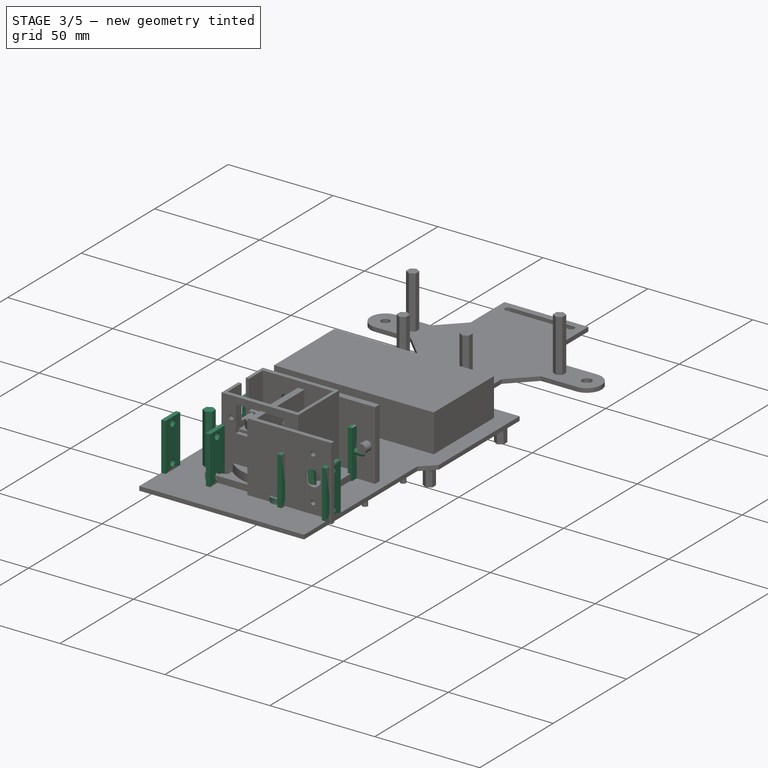
[diagram: stage 3 of 5 — iso view after this stage's code; geometry added in this stage tinted green]
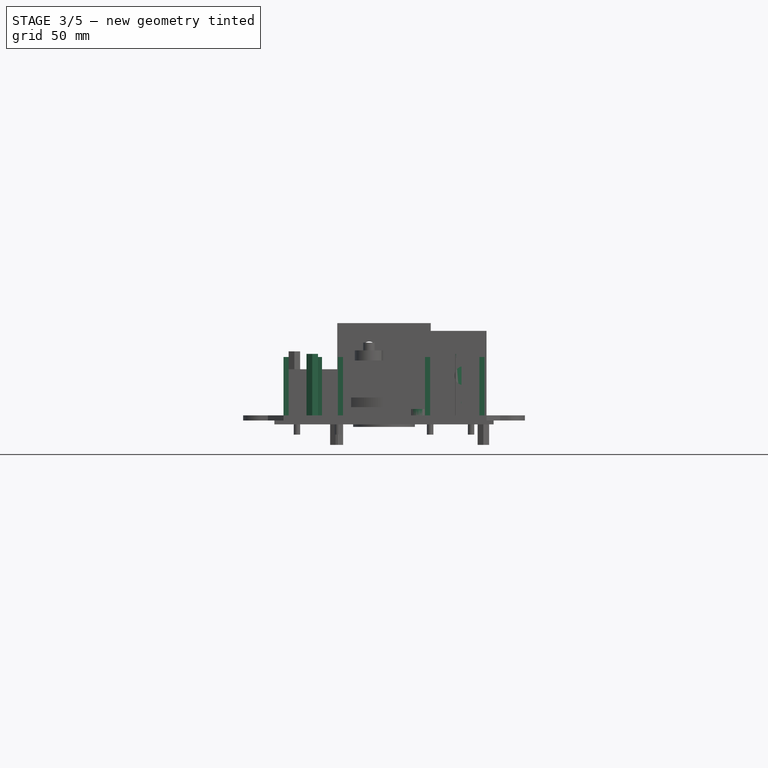
[diagram: stage 3 of 5 — front view after this stage's code; geometry added in this stage tinted green]
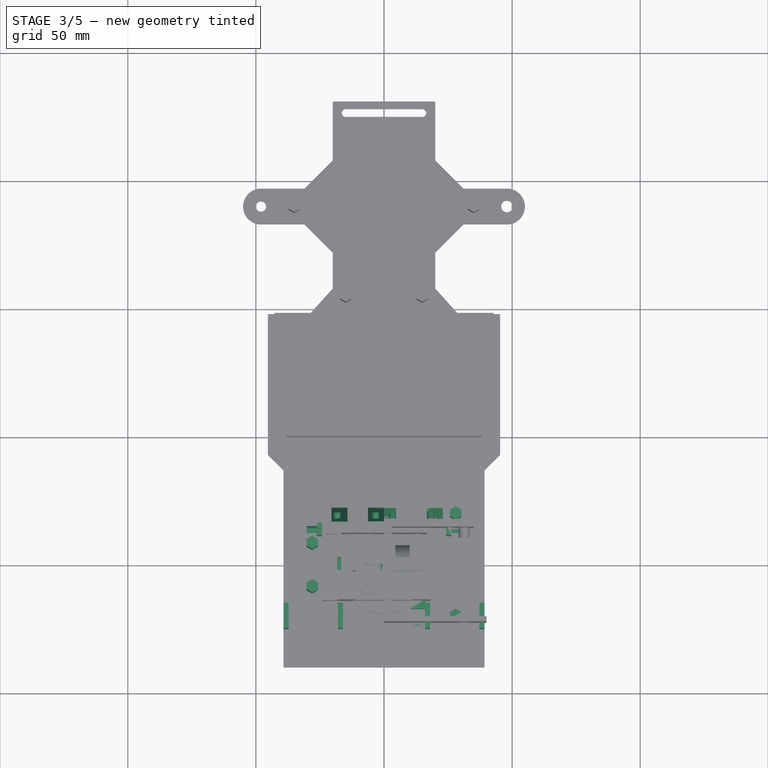
[diagram: stage 3 of 5 — top view after this stage's code; geometry added in this stage tinted green]
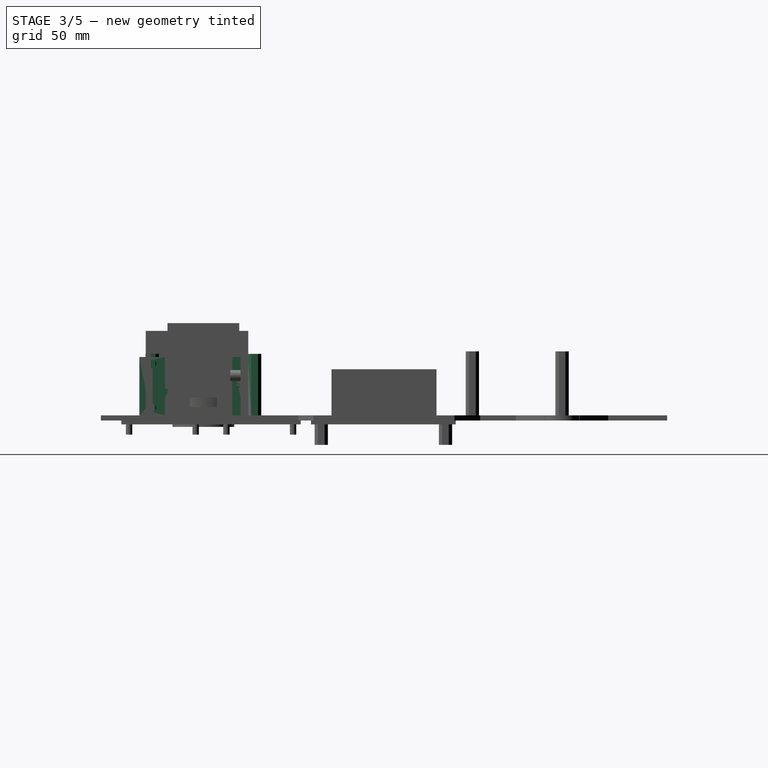
[diagram: stage 3 of 5 — right view after this stage's code; geometry added in this stage tinted green]
FEATURE [PartDesign::Body] Body022  label="DiskEncodeRight"
  Group = -> [Sketch066,Pad060]
  Origin = -> Origin022
  Placement = pos=(0,-9.5,0) rot=(0,0,1;0rad)
  Tip = -> Pad060
FEATURE [Sketcher::SketchObject] Sketch068
  FullyConstrained = true
  MapMode = 5
  Support = -> [XY_Plane023]
  sketch-geometry (11):
    g0: LineSegment StartX=16.7389 StartY=-0.209695 StartZ=0 EndX=32.2389 EndY=-0.209695 EndZ=0
    g1: LineSegment StartX=32.2389 StartY=-0.209695 StartZ=0 EndX=32.2389 EndY=-20.2097 EndZ=0
    g2: LineSegment StartX=32.2389 StartY=-20.2097 StartZ=0 EndX=16.7389 EndY=-20.2097 EndZ=0
    g3: LineSegment StartX=9.73895 StartY=-0.209695 StartZ=0 EndX=9.73895 EndY=-20.2097 EndZ=0
    g4: ArcOfCircle CenterX=13.2389 CenterY=-0.209695 CenterZ=0 NormalX=0 NormalY=0 NormalZ=1 AngleXU=0 Radius=3.5 StartAngle=0 EndAngle=3.14159
    g5: ArcOfCircle CenterX=13.2389 CenterY=-20.2097 CenterZ=0 NormalX=0 NormalY=0 NormalZ=1 AngleXU=0 Radius=3.5 StartAngle=3.14159 EndAngle=6.28319
    g6: Circle CenterX=13.2389 CenterY=-0.209695 CenterZ=0 NormalX=0 NormalY=0 NormalZ=1 AngleXU=0 Radius=2
    g7: Circle CenterX=13.2389 CenterY=-20.2097 CenterZ=0 NormalX=0 NormalY=0 NormalZ=1 AngleXU=0 Radius=2
    g8: LineSegment StartX=9.73895 StartY=-10.2097 StartZ=0 EndX=32.2389 EndY=-10.2097 EndZ=0
    g9: Circle CenterX=20.9889 CenterY=-2.7097 CenterZ=0 NormalX=0 NormalY=0 NormalZ=1 AngleXU=0 Radius=1.5
    g10: Circle CenterX=20.9889 CenterY=-17.7097 CenterZ=0 NormalX=0 NormalY=0 NormalZ=1 AngleXU=0 Radius=1.5
  constraints (30):
    c: Coincident(g0,g1)
    c: Coincident(g1,g2)
    c: Horizontal(g0)
    c: Horizontal(g2)
    c: DistanceY(g1,g1) = 20
    c: Vertical(g3)
    c: DistanceX(g3,g0) = 7
    c: Coincident(g4,g3)
    c: Coincident(g4,g0)
    c: Horizontal(g3,g4)
    c: Horizontal(g4,g0)
    c: Coincident(g5,g2)
    c: Coincident(g5,g3)
    c: Horizontal(g3,g5)
    c: Horizontal(g5,g2)
    c: DistanceX(g3,g0) = 22.5
    c: Coincident(g6,g4)
    c: Diameter(g6) = 4
    c: Coincident(g7,g5)
    c: Diameter(g7) = 4
    c: Symmetric(g0,g1,g8)
    c: PointOnObject(g8,g1)
    c: PointOnObject(g8,g3)
    c: Symmetric(g0,g2,g8)
    c: Symmetric(g10,g9,g8)
    c: Diameter(g9) = 3
    c: Block(g6)
    c: Diameter(g10) = 3
    c: DistanceX(g3,g9) = 11.25
    c: DistanceY(g10,g9) = 15
FEATURE [PartDesign::Pad] Pad061
  Direction = (1,1,1)
  Length = 1.5
  Length2 = 100
  Profile = -> Sketch068
  Type = 0
FEATURE [PartDesign::Body] Body023  label="OptoEncoderRight"
  Group = -> [Sketch068,Pad061,Sketch069,Sketch070,Pad062,Pad063]
  Origin = -> Origin023
  Placement = pos=(12.5,-0.5,-5) rot=(0,-1,0;1.20428rad)
  Tip = -> Pad063
FEATURE [Sketcher::SketchObject] Sketch071
  FullyConstrained = true
  MapMode = 5
  Placement = pos=(0,0,0) rot=(1,0,0;1.5708rad)
  Support = -> [XZ_Plane024]
  sketch-geometry (1):
    g0: Circle CenterX=0 CenterY=13.65 CenterZ=0 NormalX=0 NormalY=0 NormalZ=1 AngleXU=0 Radius=13.25
  constraints (3):
    c: PointOnObject(g0,g-2)
    c: DistanceY(g-1,g0) = 13.65
    c: Diameter(g0) = 26.5
FEATURE [PartDesign::Pad] Pad064
  Direction = (1,1,1)
  Length = 3
  Length2 = 100
  Placement = pos=(0,0,0) rot=(1,0,0;1.5708rad)
  Profile = -> Sketch071
  Type = 0
FEATURE [PartDesign::Body] Body024  label="DiskEncodeLeft"
  Group = -> [Sketch071,Pad064]
  Origin = -> Origin024
  Placement = pos=(0,12.5,0) rot=(0,0,1;0rad)
  Tip = -> Pad064
FEATURE [Sketcher::SketchObject] Sketch075
  FullyConstrained = true
  MapMode = 5
  Support = -> [XY_Plane026]
  sketch-geometry (11):
    g0: LineSegment StartX=16.7389 StartY=-0.209695 StartZ=0 EndX=32.2389 EndY=-0.209695 EndZ=0
    g1: LineSegment StartX=32.2389 StartY=-0.209695 StartZ=0 EndX=32.2389 EndY=-20.2097 EndZ=0
    g2: LineSegment StartX=32.2389 StartY=-20.2097 StartZ=0 EndX=16.7389 EndY=-20.2097 EndZ=0
    g3: LineSegment StartX=9.73895 StartY=-0.209695 StartZ=0 EndX=9.73895 EndY=-20.2097 EndZ=0
    g4: ArcOfCircle CenterX=13.2389 CenterY=-0.209695 CenterZ=0 NormalX=0 NormalY=0 NormalZ=1 AngleXU=0 Radius=3.5 StartAngle=0 EndAngle=3.14159
    g5: ArcOfCircle CenterX=13.2389 CenterY=-20.2097 CenterZ=0 NormalX=0 NormalY=0 NormalZ=1 AngleXU=0 Radius=3.5 StartAngle=3.14159 EndAngle=6.28319
    g6: Circle CenterX=13.2389 CenterY=-0.209695 CenterZ=0 NormalX=0 NormalY=0 NormalZ=1 AngleXU=0 Radius=2
    g7: Circle CenterX=13.2389 CenterY=-20.2097 CenterZ=0 NormalX=0 NormalY=0 NormalZ=1 AngleXU=0 Radius=2
    g8: LineSegment StartX=9.73895 StartY=-10.2097 StartZ=0 EndX=32.2389 EndY=-10.2097 EndZ=0
    g9: Circle CenterX=20.9889 CenterY=-2.7097 CenterZ=0 NormalX=0 NormalY=0 NormalZ=1 AngleXU=0 Radius=1.5
    g10: Circle CenterX=20.9889 CenterY=-17.7097 CenterZ=0 NormalX=0 NormalY=0 NormalZ=1 AngleXU=0 Radius=1.5
  constraints (30):
    c: Coincident(g0,g1)
    c: Coincident(g1,g2)
    c: Horizontal(g0)
    c: Horizontal(g2)
    c: DistanceY(g1,g1) = 20
    c: Vertical(g3)
    c: DistanceX(g3,g0) = 7
    c: Coincident(g4,g3)
    c: Coincident(g4,g0)
    c: Horizontal(g3,g4)
    c: Horizontal(g4,g0)
    c: Coincident(g5,g2)
    c: Coincident(g5,g3)
    c: Horizontal(g3,g5)
    c: Horizontal(g5,g2)
    c: DistanceX(g3,g0) = 22.5
    c: Coincident(g6,g4)
    c: Diameter(g6) = 4
    c: Coincident(g7,g5)
    c: Diameter(g7) = 4
    c: Symmetric(g0,g1,g8)
    c: PointOnObject(g8,g1)
    c: PointOnObject(g8,g3)
    c: Symmetric(g0,g2,g8)
    c: Symmetric(g10,g9,g8)
    c: Diameter(g9) = 3
    c: Block(g6)
    c: Diameter(g10) = 3
    c: DistanceX(g3,g9) = 11.25
    c: DistanceY(g10,g9) = 15
FEATURE [PartDesign::Pad] Pad068
  Direction = (1,1,1)
  Length = 1.5
  Length2 = 100
  Profile = -> Sketch075
  Type = 0
FEATURE [Sketcher::SketchObject] Sketch077
  ExternalGeometry = -> [Pad068]
  FullyConstrained = true
  MapMode = 5
  Placement = pos=(0,0,1.5) rot=(0,0,1;0rad)
  Support = -> [Pad068]
  sketch-geometry (6):
    g0: LineSegment StartX=9.73895 StartY=-20.2097 StartZ=0 EndX=9.73895 EndY=-0.209695 EndZ=0
    g1: LineSegment StartX=16.7389 StartY=-0.209695 StartZ=0 EndX=16.7389 EndY=-20.2097 EndZ=0
    g2: ArcOfCircle CenterX=13.2389 CenterY=-0.209695 CenterZ=0 NormalX=0 NormalY=0 NormalZ=1 AngleXU=0 Radius=3.5 StartAngle=0 EndAngle=3.14159
    g3: ArcOfCircle CenterX=13.2389 CenterY=-20.2097 CenterZ=0 NormalX=0 NormalY=0 NormalZ=1 AngleXU=0 Radius=3.5 StartAngle=3.14159 EndAngle=6.28319
    g4: Circle CenterX=13.2389 CenterY=-0.209695 CenterZ=0 NormalX=0 NormalY=0 NormalZ=1 AngleXU=0 Radius=2
    g5: Circle CenterX=13.2389 CenterY=-20.2097 CenterZ=0 NormalX=0 NormalY=0 NormalZ=1 AngleXU=0 Radius=2
  constraints (14):
    c: Coincident(g0,g-5)
    c: Coincident(g0,g-4)
    c: Coincident(g1,g-4)
    c: Coincident(g1,g-5)
    c: Coincident(g2,g-4)
    c: Coincident(g2,g0)
    c: Coincident(g2,g1)
    c: Coincident(g3,g-5)
    c: Coincident(g3,g1)
    c: Coincident(g3,g0)
    c: Coincident(g4,g2)
    c: Coincident(g5,g3)
    c: Diameter(g4) = 4
    c: Diameter(g5) = 4
FEATURE [PartDesign::Pad] Pad069
  BaseFeature = -> Pad068
  Direction = (1,1,1)
  Length = 3
  Length2 = 100
  Profile = -> Sketch077
  Type = 0
FEATURE [Sketcher::SketchObject] Sketch076
  ExternalGeometry = -> [Pad068]
  FullyConstrained = true
  MapMode = 5
  Placement = pos=(0,0,4.5) rot=(0,0,1;0rad)
  Support = -> [Pad069]
  sketch-geometry (9):
    g0: LineSegment StartX=10.2389 StartY=-3.2097 StartZ=0 EndX=16.3389 EndY=-3.2097 EndZ=0
    g1: LineSegment StartX=16.3389 StartY=-3.2097 StartZ=0 EndX=16.3389 EndY=-7.2097 EndZ=0
    g2: LineSegment StartX=16.3389 StartY=-7.2097 StartZ=0 EndX=10.2389 EndY=-7.2097 EndZ=0
    g3: LineSegment StartX=10.2389 StartY=-7.2097 StartZ=0 EndX=10.2389 EndY=-3.2097 EndZ=0
    g4: LineSegment StartX=10.2389 StartY=-13.2097 StartZ=0 EndX=16.3389 EndY=-13.2097 EndZ=0
    g5: LineSegment StartX=16.3389 StartY=-13.2097 StartZ=0 EndX=16.3389 EndY=-17.2097 EndZ=0
    g6: LineSegment StartX=16.3389 StartY=-17.2097 StartZ=0 EndX=10.2389 EndY=-17.2097 EndZ=0
    g7: LineSegment StartX=10.2389 StartY=-17.2097 StartZ=0 EndX=10.2389 EndY=-13.2097 EndZ=0
    g8: LineSegment StartX=9.73895 StartY=-10.2097 StartZ=0 EndX=32.2389 EndY=-10.2097 EndZ=0
  constraints (25):
    c: Coincident(g0,g1)
    c: Coincident(g1,g2)
    c: Coincident(g2,g3)
    c: Coincident(g3,g0)
    c: Horizontal(g0)
    c: Horizontal(g2)
    c: Vertical(g1)
    c: Vertical(g3)
    c: Coincident(g4,g5)
    c: Coincident(g5,g6)
    c: Coincident(g6,g7)
    c: Coincident(g7,g4)
    c: Horizontal(g4)
    c: Horizontal(g6)
    c: Vertical(g5)
    c: PointOnObject(g8,g-3)
    c: PointOnObject(g8,g-4)
    c: Symmetric(g-3,g-3,g8)
    c: Symmetric(g2,g4,g8)
    c: Symmetric(g6,g0,g8)
    c: DistanceY(g1,g1) = 4
    c: Vertical(g1,g4)
    c: DistanceX(g0,g0) = 6.1
    c: DistanceY(g4,g1) = 6
    c: DistanceX(g8,g2) = 0.5
FEATURE [PartDesign::Pad] Pad070
  BaseFeature = -> Pad069
  Direction = (1,1,1)
  Length = 8
  Length2 = 100
  Profile = -> Sketch076
  Type = 0
FEATURE [PartDesign::Body] Body026  label="OptoEncoderLeft001"
  Group = -> [Sketch075,Pad068,Sketch076,Sketch077,Pad069,Pad070]
  Origin = -> Origin026
  Placement = pos=(12.5,0.65,33) rot=(0.82137,0,-0.570396;3.14159rad)
  Tip = -> Pad070
FEATURE [App::DocumentObjectGroup] Group014  label="Encoders"
  Group = -> [Body022,Body023,Body024,Body026]
FEATURE [Sketcher::SketchObject] Sketch001  label="EnginePlateSketch"
  FullyConstrained = true
  MapMode = 5
  Support = -> [XY_Plane001]
  sketch-geometry (16):
    g0: LineSegment StartX=-39.25 StartY=39.5 StartZ=0 EndX=39.25 EndY=39.5 EndZ=0
    g1: LineSegment StartX=39.25 StartY=39.5 StartZ=0 EndX=39.25 EndY=-40 EndZ=0
    g2: LineSegment StartX=39.25 StartY=-40 StartZ=0 EndX=-39.25 EndY=-40 EndZ=0
    g3: LineSegment StartX=-39.25 StartY=-40 StartZ=0 EndX=-39.25 EndY=39.5 EndZ=0
    g4: Circle CenterX=-8.5 CenterY=-28 CenterZ=0 NormalX=0 NormalY=0 NormalZ=1 AngleXU=0 Radius=1.75
    g5: Circle CenterX=8.5 CenterY=-28 CenterZ=0 NormalX=0 NormalY=0 NormalZ=1 AngleXU=0 Radius=1.75
    g6: Circle CenterX=-20 CenterY=28 CenterZ=0 NormalX=0 NormalY=0 NormalZ=1 AngleXU=0 Radius=1.75
    g7: Circle CenterX=20 CenterY=28 CenterZ=0 NormalX=0 NormalY=0 NormalZ=1 AngleXU=0 Radius=1.75
    g8: LineSegment StartX=9 StartY=7.5 StartZ=0 EndX=13 EndY=7.5 EndZ=0
    g9: LineSegment StartX=13 StartY=7.5 StartZ=0 EndX=13 EndY=-7.5 EndZ=0
    g10: LineSegment StartX=13 StartY=-7.5 StartZ=0 EndX=9 EndY=-7.5 EndZ=0
    g11: LineSegment StartX=9 StartY=-7.5 StartZ=0 EndX=9 EndY=7.5 EndZ=0
    g12: LineSegment StartX=-13 StartY=7.5 StartZ=0 EndX=-9 EndY=7.5 EndZ=0
    g13: LineSegment StartX=-9 StartY=7.5 StartZ=0 EndX=-9 EndY=-7.5 EndZ=0
    g14: LineSegment StartX=-9 StartY=-7.5 StartZ=0 EndX=-13 EndY=-7.5 EndZ=0
    g15: LineSegment StartX=-13 StartY=-7.5 StartZ=0 EndX=-13 EndY=7.5 EndZ=0
  constraints (41):
    c: Coincident(g0,g1)
    c: Coincident(g1,g2)
    c: Coincident(g2,g3)
    c: Coincident(g3,g0)
    c: Horizontal(g0)
    c: Vertical(g1)
    c: Vertical(g3)
    c: Symmetric(g2,g1,g-2)
    c: DistanceY(g1,g1) = 79.5
    c: DistanceY(g2,g-1) = 40
    c: DistanceX(g2,g2) = 78.5
    c: Symmetric(g4,g5,g-2)
    c: DistanceX(g4,g5) = 17
    c: Symmetric(g6,g7,g-2)
    c: DistanceX(g6,g7) = 40
    c: DistanceY(g5,g7) = 56
    c: DistanceY(g1,g5) = 12
    c: Diameter(g6) = 3.5
    c: Diameter(g7) = 3.5
    c: Diameter(g4) = 3.5
    c: Diameter(g5) = 3.5
    c: Coincident(g8,g9)
    c: Coincident(g9,g10)
    c: Coincident(g10,g11)
    c: Coincident(g11,g8)
    c: Horizontal(g8)
    c: Horizontal(g10)
    c: Vertical(g9)
    c: Symmetric(g8,g10,g-1)
    c: DistanceX(g8,g8) = 4
    c: DistanceY(g11,g11) = 15
    c: Coincident(g12,g13)
    c: Coincident(g13,g14)
    c: Coincident(g14,g15)
    c: Coincident(g15,g12)
    c: Horizontal(g14)
    c: Vertical(g15)
    c: Symmetric(g12,g13,g-1)
    c: Symmetric(g12,g8,g-2)
    c: Symmetric(g8,g12,g-2)
    c: DistanceX(g-1,g8) = 9
FEATURE [PartDesign::Pad] Pad001  label="EnginePlatePad"
  Direction = (1,1,1)
  Length = 2
  Length2 = 100
  Profile = -> Sketch001
  Type = 0
FEATURE [Sketcher::SketchObject] Sketch002  label="EngineCopperSketch"
  ExternalGeometry = -> [Pad001]
  FullyConstrained = true
  MapMode = 5
  Placement = pos=(0,-7.5,0) rot=(0,0.707107,0.707107;3.14159rad)
  Support = -> [Pad001]
  sketch-geometry (28):
    g0: LineSegment StartX=8.5 StartY=16.6 StartZ=0 EndX=6.24833 EndY=15.3 EndZ=0
    g1: LineSegment StartX=6.24833 StartY=15.3 StartZ=0 EndX=6.24833 EndY=12.7 EndZ=0
    g2: LineSegment StartX=6.24833 StartY=12.7 StartZ=0 EndX=8.5 EndY=11.4 EndZ=0
    g3: LineSegment StartX=8.5 StartY=11.4 StartZ=0 EndX=10.7517 EndY=12.7 EndZ=0
    g4: LineSegment StartX=10.7517 StartY=12.7 StartZ=0 EndX=10.7517 EndY=15.3 EndZ=0
    g5: LineSegment StartX=10.7517 StartY=15.3 StartZ=0 EndX=8.5 EndY=16.6 EndZ=0
    g6: Circle CenterX=8.5 CenterY=14 CenterZ=0 NormalX=0 NormalY=0 NormalZ=1 AngleXU=0 Radius=2.6
    g7: LineSegment StartX=-10.7517 StartY=15.3 StartZ=0 EndX=-10.7517 EndY=12.7 EndZ=0
    g8: LineSegment StartX=-10.7517 StartY=12.7 StartZ=0 EndX=-8.5 EndY=11.4 EndZ=0
    g9: LineSegment StartX=-8.5 StartY=11.4 StartZ=0 EndX=-6.24833 EndY=12.7 EndZ=0
    g10: LineSegment StartX=-6.24833 StartY=12.7 StartZ=0 EndX=-6.24833 EndY=15.3 EndZ=0
    g11: LineSegment StartX=-6.24833 StartY=15.3 StartZ=0 EndX=-8.5 EndY=16.6 EndZ=0
    g12: LineSegment StartX=-8.5 StartY=16.6 StartZ=0 EndX=-10.7517 EndY=15.3 EndZ=0
    g13: Circle CenterX=-8.5 CenterY=14 CenterZ=0 NormalX=0 NormalY=0 NormalZ=1 AngleXU=0 Radius=2.6
    g14: LineSegment StartX=-17.7483 StartY=71.3 StartZ=0 EndX=-20 EndY=72.6 EndZ=0
    g15: LineSegment StartX=-20 StartY=72.6 StartZ=0 EndX=-22.2517 EndY=71.3 EndZ=0
    g16: LineSegment StartX=-22.2517 StartY=71.3 StartZ=0 EndX=-22.2517 EndY=68.7 EndZ=0
    g17: LineSegment StartX=-22.2517 StartY=68.7 StartZ=0 EndX=-20 EndY=67.4 EndZ=0
    g18: LineSegment StartX=-20 StartY=67.4 StartZ=0 EndX=-17.7483 EndY=68.7 EndZ=0
    g19: LineSegment StartX=-17.7483 StartY=68.7 StartZ=0 EndX=-17.7483 EndY=71.3 EndZ=0
    g20: Circle CenterX=-20 CenterY=70 CenterZ=0 NormalX=0 NormalY=0 NormalZ=1 AngleXU=0 Radius=2.6
    g21: LineSegment StartX=20 StartY=72.6 StartZ=0 EndX=17.7483 EndY=71.3 EndZ=0
    g22: LineSegment StartX=17.7483 StartY=71.3 StartZ=0 EndX=17.7483 EndY=68.7 EndZ=0
    g23: LineSegment StartX=17.7483 StartY=68.7 StartZ=0 EndX=20 EndY=67.4 EndZ=0
    g24: LineSegment StartX=20 StartY=67.4 StartZ=0 EndX=22.2517 EndY=68.7 EndZ=0
    g25: LineSegment StartX=22.2517 StartY=68.7 StartZ=0 EndX=22.2517 EndY=71.3 EndZ=0
    g26: LineSegment StartX=22.2517 StartY=71.3 StartZ=0 EndX=20 EndY=72.6 EndZ=0
    g27: Circle CenterX=20 CenterY=70 CenterZ=0 NormalX=0 NormalY=0 NormalZ=1 AngleXU=0 Radius=2.6
  constraints (66):
    c: Coincident(g0,g1)
    c: Coincident(g1,g2)
    c: Coincident(g2,g3)
    c: Coincident(g3,g4)
    c: Coincident(g4,g5)
    c: Coincident(g5,g0)
    c: Equal(g0, g1-g5) x5
    c: PointOnObject(g0,g6)
    c: PointOnObject(g1,g6)
    c: PointOnObject(g2,g6)
    c: PointOnObject(g3,g6)
    c: PointOnObject(g4,g6)
    c: PointOnObject(g5,g6)
    c: Diameter(g6) = 5.2
    c: DistanceY(g-3,g6) = 12
    c: Coincident(g7,g8)
    c: Coincident(g8,g9)
    c: Coincident(g9,g10)
    c: Coincident(g10,g11)
    c: Coincident(g11,g12)
    c: Coincident(g12,g7)
    c: Equal(g7, g8-g12) x5
    c: PointOnObject(g7,g13)
    c: PointOnObject(g8,g13)
    c: PointOnObject(g9,g13)
    c: PointOnObject(g10,g13)
    c: PointOnObject(g11,g13)
    c: PointOnObject(g12,g13)
    c: Diameter(g13) = 5.2
    c: Symmetric(g6,g13,g-2)
    c: DistanceX(g13,g6) = 17
    c: Vertical(g13,g11)
    c: Vertical(g6,g0)
    c: Coincident(g14,g15)
    c: Coincident(g15,g16)
    c: Coincident(g16,g17)
    c: Coincident(g17,g18)
    c: Coincident(g18,g19)
    c: Coincident(g19,g14)
    c: Equal(g14, g15-g19) x5
    c: PointOnObject(g14,g20)
    c: PointOnObject(g15,g20)
    c: PointOnObject(g16,g20)
    c: PointOnObject(g17,g20)
    c: PointOnObject(g18,g20)
    c: PointOnObject(g19,g20)
    c: Diameter(g20) = 5.2
    c: Vertical(g20,g14)
    c: Coincident(g21,g22)
    c: Coincident(g22,g23)
    c: Coincident(g23,g24)
    c: Coincident(g24,g25)
    c: Coincident(g25,g26)
    c: Coincident(g26,g21)
    c: Equal(g21, g22-g26) x5
    c: PointOnObject(g21,g27)
    c: PointOnObject(g22,g27)
    c: PointOnObject(g23,g27)
    c: PointOnObject(g24,g27)
    c: PointOnObject(g25,g27)
    c: PointOnObject(g26,g27)
    c: Diameter(g27) = 5.2
    c: Symmetric(g20,g27,g-2)
    c: DistanceX(g20,g27) = 40
    c: DistanceY(g6,g27) = 56
    c: Vertical(g21,g27)
FEATURE [Sketcher::SketchObject] Sketch062
  FullyConstrained = true
  MapMode = 5
  Placement = pos=(0,0,2) rot=(0,0,1;0rad)
  Support = -> [Pad001]
  sketch-geometry (24):
    g0: LineSegment StartX=37.25 StartY=-15 StartZ=0 EndX=39.25 EndY=-15 EndZ=0
    g1: LineSegment StartX=39.25 StartY=-15 StartZ=0 EndX=39.25 EndY=-25 EndZ=0
    g2: LineSegment StartX=39.25 StartY=-25 StartZ=0 EndX=37.25 EndY=-25 EndZ=0
    g3: LineSegment StartX=37.25 StartY=-25 StartZ=0 EndX=37.25 EndY=-15 EndZ=0
    g4: LineSegment StartX=16 StartY=-15 StartZ=0 EndX=18 EndY=-15 EndZ=0
    g5: LineSegment StartX=18 StartY=-15 StartZ=0 EndX=18 EndY=-25 EndZ=0
    g6: LineSegment StartX=18 StartY=-25 StartZ=0 EndX=16 EndY=-25 EndZ=0
    g7: LineSegment StartX=16 StartY=-25 StartZ=0 EndX=16 EndY=-15 EndZ=0
    g8: LineSegment StartX=-39.25 StartY=-15 StartZ=0 EndX=-37.25 EndY=-15 EndZ=0
    g9: LineSegment StartX=-37.25 StartY=-15 StartZ=0 EndX=-37.25 EndY=-25 EndZ=0
    g10: LineSegment StartX=-37.25 StartY=-25 StartZ=0 EndX=-39.25 EndY=-25 EndZ=0
    g11: LineSegment StartX=-39.25 StartY=-25 StartZ=0 EndX=-39.25 EndY=-15 EndZ=0
    g12: LineSegment StartX=-18 StartY=-15 StartZ=0 EndX=-16 EndY=-15 EndZ=0
    g13: LineSegment StartX=-16 StartY=-15 StartZ=0 EndX=-16 EndY=-25 EndZ=0
    g14: LineSegment StartX=-16 StartY=-25 StartZ=0 EndX=-18 EndY=-25 EndZ=0
    g15: LineSegment StartX=-18 StartY=-25 StartZ=0 EndX=-18 EndY=-15 EndZ=0
    g16: LineSegment StartX=24.2 StartY=16.25 StartZ=0 EndX=26.2 EndY=16.25 EndZ=0
    g17: LineSegment StartX=26.2 StartY=16.25 StartZ=0 EndX=26.2 EndY=11.25 EndZ=0
    g18: LineSegment StartX=26.2 StartY=11.25 StartZ=0 EndX=24.2 EndY=11.25 EndZ=0
    g19: LineSegment StartX=24.2 StartY=11.25 StartZ=0 EndX=24.2 EndY=16.25 EndZ=0
    g20: LineSegment StartX=-26.2 StartY=16.25 StartZ=0 EndX=-24.2 EndY=16.25 EndZ=0
    g21: LineSegment StartX=-24.2 StartY=16.25 StartZ=0 EndX=-24.2 EndY=11.25 EndZ=0
    g22: LineSegment StartX=-24.2 StartY=11.25 StartZ=0 EndX=-26.2 EndY=11.25 EndZ=0
    g23: LineSegment StartX=-26.2 StartY=11.25 StartZ=0 EndX=-26.2 EndY=16.25 EndZ=0
  constraints (63):
    c: Coincident(g0,g1)
    c: Coincident(g1,g2)
    c: Coincident(g2,g3)
    c: Coincident(g3,g0)
    c: Horizontal(g0)
    c: Horizontal(g2)
    c: Vertical(g1)
    c: Vertical(g3)
    c: DistanceY(g1,g1) = 10
    c: DistanceX(g2,g2) = 2
    c: DistanceX(g-1,g0) = 39.25
    c: DistanceY(g0,g-1) = 15
    c: Coincident(g4,g5)
    c: Coincident(g5,g6)
    c: Coincident(g6,g7)
    c: Coincident(g7,g4)
    c: Horizontal(g4)
    c: Horizontal(g6)
    c: Vertical(g5)
    c: Vertical(g7)
    c: Horizontal(g4,g0)
    c: Horizontal(g5,g1)
    c: DistanceX(g6,g6) = 2
    c: DistanceX(g-1,g4) = 18
    c: Coincident(g8,g9)
    c: Coincident(g9,g10)
    c: Coincident(g10,g11)
    c: Coincident(g11,g8)
    c: Horizontal(g10)
    c: Vertical(g11)
    c: Coincident(g12,g13)
    c: Coincident(g13,g14)
    c: Coincident(g14,g15)
    c: Coincident(g15,g12)
    c: Horizontal(g14)
    c: Vertical(g15)
    c: Symmetric(g13,g6,g-2)
    c: Symmetric(g12,g4,g-2)
    c: Symmetric(g8,g0,g-2)
    c: Symmetric(g9,g2,g-2)
    c: Coincident(g16,g17)
    c: Coincident(g17,g18)
    c: Coincident(g18,g19)
    c: Coincident(g19,g16)
    c: Horizontal(g16)
    c: Horizontal(g18)
    c: Vertical(g17)
    c: Vertical(g19)
    c: DistanceY(g19,g19) = 5
    c: DistanceY(g-1,g18) = 11.25
    c: DistanceX(g16,g16) = 2
    c: DistanceX(g-1,g18) = 24.2
    c: Coincident(g20,g21)
    c: Coincident(g21,g22)
    c: Coincident(g22,g23)
    c: Coincident(g23,g20)
    c: Horizontal(g22)
    c: Vertical(g23)
    c: Symmetric(g20,g16,g-2)
    c: Symmetric(g21,g18,g-2)
    c: Symmetric(g20,g16,g-2)
    c: Symmetric(g8,g0,g-2)
    c: Symmetric(g12,g4,g-2)
FEATURE [PartDesign::Pad] Pad057  label="EngineSupportEnginePad"
  BaseFeature = -> Pad001
  Direction = (1,1,1)
  Length = 22.8
  Length2 = 100
  Profile = -> Sketch062
  Type = 0
FEATURE [Sketcher::SketchObject] Sketch064
  FullyConstrained = true
  MapMode = 5
  Placement = pos=(26.2,0,0) rot=(0.57735,0.57735,0.57735;2.0944rad)
  Support = -> [Pad057]
  sketch-geometry (1):
    g0: Circle CenterX=13.75 CenterY=14 CenterZ=0 NormalX=0 NormalY=0 NormalZ=1 AngleXU=0 Radius=1.25
  constraints (3):
    c: Diameter(g0) = 2.5
    c: DistanceY(g-1,g0) = 14
    c: DistanceX(g-1,g0) = 13.75
FEATURE [PartDesign::Pad] Pad058  label="EngineSupportAxeRightPad"
  BaseFeature = -> Pad057
  Direction = (1,1,1)
  Length = 4
  Length2 = 100
  Profile = -> Sketch064
  Type = 0
FEATURE [Sketcher::SketchObject] Sketch065
  ExternalGeometry = -> [Pad058]
  FullyConstrained = true
  MapMode = 5
  Placement = pos=(-26.2,0,0) rot=(0.57735,-0.57735,-0.57735;2.0944rad)
  Support = -> [Pad058]
  sketch-geometry (1):
    g0: Circle CenterX=-13.75 CenterY=14 CenterZ=0 NormalX=0 NormalY=0 NormalZ=1 AngleXU=0 Radius=1.25
  constraints (2):
    c: Diameter(g0) = 2.5
    c: Coincident(g0,g-3)
FEATURE [PartDesign::Pad] Pad059  label="EngineSupportAxeLeftPad"
  BaseFeature = -> Pad058
  Direction = (1,1,1)
  Length = 4
  Length2 = 100
  Profile = -> Sketch065
  Type = 0
FEATURE [Sketcher::SketchObject] Sketch067
  ExternalGeometry = -> [Pad059]
  FullyConstrained = true
  MapMode = 5
  Placement = pos=(39.25,0,0) rot=(0.57735,0.57735,0.57735;2.0944rad)
  Support = -> [Pad059]
  sketch-geometry (3):
    g0: Circle CenterX=-20 CenterY=22.1 CenterZ=0 NormalX=0 NormalY=0 NormalZ=1 AngleXU=0 Radius=1.6
    g1: Circle CenterX=-20 CenterY=5 CenterZ=0 NormalX=0 NormalY=0 NormalZ=1 AngleXU=0 Radius=1.6
    g2: LineSegment StartX=-20 StartY=30 StartZ=0 EndX=-20 EndY=0 EndZ=0
  constraints (10):
    c: Diameter(g1) = 3.2
    c: Diameter(g0) = 3.2
    c: Vertical(g2)
    c: PointOnObject(g2,g-1)
    c: DistanceX(g2,g-1) = 20
    c: PointOnObject(g1,g2)
    c: PointOnObject(g0,g2)
    c: DistanceY(g2,g2) = 30
    c: DistanceY(g1,g0) = 17.1
    c: DistanceY(g-1,g1) = 5
FEATURE [PartDesign::Pocket] Pocket
  BaseFeature = -> Pad059
  Length = 80
  Length2 = 100
  Profile = -> Sketch067
  Type = 0
FEATURE [Sketcher::SketchObject] Sketch078
  ExternalGeometry = -> [Pocket]
  FullyConstrained = true
  MapMode = 5
  Placement = pos=(0,0,0) rot=(0.57735,0.57735,0.57735;2.0944rad)
  Support = -> [YZ_Plane001]
  sketch-geometry (3):
    g0: LineSegment StartX=22.45 StartY=2 StartZ=0 EndX=16.92 EndY=16.8 EndZ=0
    g1: LineSegment StartX=16.92 StartY=16.8 StartZ=0 EndX=16.92 EndY=2 EndZ=0
    g2: LineSegment StartX=16.92 StartY=2 StartZ=0 EndX=22.45 EndY=2 EndZ=0
  constraints (9):
    c: PointOnObject(g0,g-3)
    c: Coincident(g1,g0)
    c: PointOnObject(g1,g-3)
    c: Vertical(g1)
    c: Coincident(g2,g1)
    c: Coincident(g2,g0)
    c: DistanceX(g-1,g1) = 16.92
    c: DistanceY(g1,g0) = 14.8
    c: DistanceX(g1,g0) = 5.53
FEATURE [PartDesign::Pad] Pad071
  BaseFeature = -> Pocket
  Direction = (1,1,1)
  Length = 20.5
  Length2 = 100
  Profile = -> Sketch078
  Reversed = true
  Type = 0
FEATURE [Sketcher::SketchObject] Sketch079
  FullyConstrained = true
  MapMode = 5
  Placement = pos=(2.4e-15,20.3554,7.60577) rot=(0,0.570082,0.821588;3.14159rad)
  Support = -> [Pad071]
  sketch-geometry (2):
    g0: Circle CenterX=3.35 CenterY=5.55 CenterZ=0 NormalX=0 NormalY=0 NormalZ=1 AngleXU=0 Radius=1.4
    g1: Circle CenterX=18.35 CenterY=5.55 CenterZ=0 NormalX=0 NormalY=0 NormalZ=1 AngleXU=0 Radius=1.4
  constraints (6):
    c: Diameter(g0) = 2.8
    c: Diameter(g1) = 2.8
    c: Horizontal(g1,g0)
    c: DistanceX(g-1,g0) = 3.35
    c: DistanceY(g-1,g0) = 5.55
    c: DistanceX(g0,g1) = 15
FEATURE [Sketcher::SketchObject] Sketch080
  FullyConstrained = true
  MapMode = 5
  Placement = pos=(4e-15,16.92,-4e-15) rot=(1,0,0;1.5708rad)
  sketch-geometry (4):
    g0: LineSegment StartX=0 StartY=11.5 StartZ=0 EndX=-3.5 EndY=11.5 EndZ=0
    g1: LineSegment StartX=-3.5 StartY=11.5 StartZ=0 EndX=-3.5 EndY=2 EndZ=0
    g2: LineSegment StartX=-3.5 StartY=2 StartZ=0 EndX=0 EndY=2 EndZ=0
    g3: LineSegment StartX=0 StartY=2 StartZ=0 EndX=0 EndY=11.5 EndZ=0
  constraints (12):
    c: Coincident(g0,g1)
    c: Coincident(g1,g2)
    c: Coincident(g2,g3)
    c: Coincident(g3,g0)
    c: Horizontal(g0)
    c: Horizontal(g2)
    c: Vertical(g1)
    c: Vertical(g3)
    c: PointOnObject(g2,g-2)
    c: DistanceX(g0,g0) = 3.5
    c: DistanceY(g1,g1) = 9.5
    c: DistanceY(g-1,g2) = 2
FEATURE [PartDesign::Pocket] Pocket002
  BaseFeature = -> Pad071
  Length = 1.8
  Length2 = 100
  Profile = -> Sketch080
  Type = 0
FEATURE [PartDesign::Pad] Pad072
  BaseFeature = -> Pocket002
  Direction = (1,1,1)
  Length = 2.5
  Length2 = 100
  Profile = -> Sketch079
  Type = 0
FEATURE [Sketcher::SketchObject] Sketch081
  ExternalGeometry = -> [Pad072]
  FullyConstrained = true
  MapMode = 5
  Placement = pos=(3.8e-15,16.92,-3.8e-15) rot=(1,0,0;1.5708rad)
  Support = -> [Pad072]
  sketch-geometry (5):
    g0: LineSegment StartX=-14.25 StartY=17 StartZ=0 EndX=-6.25 EndY=17 EndZ=0
    g1: LineSegment StartX=-6.25 StartY=17 StartZ=0 EndX=-6.25 EndY=2 EndZ=0
    g2: LineSegment StartX=-6.25 StartY=2 StartZ=0 EndX=-14.25 EndY=2 EndZ=0
    g3: LineSegment StartX=-14.25 StartY=2 StartZ=0 EndX=-14.25 EndY=17 EndZ=0
    g4: LineSegment StartX=-10.25 StartY=16.8 StartZ=0 EndX=-10.25 EndY=2 EndZ=0
  constraints (14):
    c: Coincident(g0,g1)
    c: Coincident(g1,g2)
    c: Coincident(g2,g3)
    c: Coincident(g3,g0)
    c: Horizontal(g2)
    c: Vertical(g1)
    c: Vertical(g3)
    c: PointOnObject(g2,g-3)
    c: PointOnObject(g4,g-5)
    c: PointOnObject(g4,g2)
    c: Symmetric(g-5,g-5,g4)
    c: Symmetric(g0,g0,g4)
    c: DistanceX(g0,g0) = 8
    c: DistanceY(g1,g1) = 15
FEATURE [PartDesign::Pocket] Pocket003
  BaseFeature = -> Pad072
  Length = 5.55
  Length2 = 100
  Profile = -> Sketch081
  Type = 0
FEATURE [Sketcher::SketchObject] Sketch082
  ExternalGeometry = -> [Pocket003]
  FullyConstrained = true
  MapMode = 5
  Placement = pos=(0,0,0) rot=(0.57735,0.57735,0.57735;2.0944rad)
  Support = -> [YZ_Plane001]
  sketch-geometry (3):
    g0: LineSegment StartX=22 StartY=19.75 StartZ=0 EndX=15.2 EndY=2 EndZ=0
    g1: LineSegment StartX=22 StartY=19.75 StartZ=0 EndX=22 EndY=2 EndZ=0
    g2: LineSegment StartX=22 StartY=2 StartZ=0 EndX=15.2 EndY=2 EndZ=0
  constraints (9):
    c: PointOnObject(g0,g-3)
    c: Coincident(g1,g0)
    c: PointOnObject(g1,g-3)
    c: Vertical(g1)
    c: Coincident(g2,g1)
    c: Coincident(g2,g0)
    c: DistanceX(g-1,g0) = 15.2
    c: DistanceX(g-1,g1) = 22
    c: DistanceY(g1,g1) = 17.75
FEATURE [PartDesign::Pad] Pad073
  BaseFeature = -> Pocket003
  Direction = (1,1,1)
  Length = 23
  Length2 = 100
  Profile = -> Sketch082
  Type = 0
FEATURE [Sketcher::SketchObject] Sketch083
  FullyConstrained = true
  MapMode = 5
  Placement = pos=(4.1e-15,12.5865,-4.82189) rot=(1,0,0;1.20494rad)
  Support = -> [Pad073]
  sketch-geometry (2):
    g0: Circle CenterX=3.2 CenterY=20.79 CenterZ=0 NormalX=0 NormalY=0 NormalZ=1 AngleXU=0 Radius=1.4
    g1: Circle CenterX=18.2 CenterY=20.79 CenterZ=0 NormalX=0 NormalY=0 NormalZ=1 AngleXU=0 Radius=1.4
  constraints (6):
    c: Horizontal(g0,g1)
    c: DistanceX(g0,g1) = 15
    c: Diameter(g1) = 2.8
    c: Diameter(g0) = 2.8
    c: DistanceX(g-1,g0) = 3.2
    c: DistanceY(g-1,g0) = 20.79
FEATURE [PartDesign::Pad] Pad074
  BaseFeature = -> Pad073
  Direction = (1,1,1)
  Length = 2.5
  Length2 = 100
  Profile = -> Sketch083
  Type = 0
FEATURE [Sketcher::SketchObject] Sketch084
  ExternalGeometry = -> [Pad074]
  FullyConstrained = true
  MapMode = 5
  Placement = pos=(4.9e-15,22,-4.9e-15) rot=(0,0.707107,0.707107;3.14159rad)
  Support = -> [Pad074]
  sketch-geometry (6):
    g0: LineSegment StartX=-17.75 StartY=20 StartZ=0 EndX=-4.75 EndY=20 EndZ=0
    g1: LineSegment StartX=-4.75 StartY=20 StartZ=0 EndX=-4.75 EndY=2 EndZ=0
    g2: LineSegment StartX=-4.75 StartY=2 StartZ=0 EndX=-16.75 EndY=2 EndZ=0
    g3: LineSegment StartX=-17.75 StartY=20 StartZ=0 EndX=-17.75 EndY=17 EndZ=0
    g4: LineSegment StartX=-16.75 StartY=2 StartZ=0 EndX=-16.75 EndY=17 EndZ=0
    g5: LineSegment StartX=-16.75 StartY=17 StartZ=0 EndX=-17.75 EndY=17 EndZ=0
  constraints (18):
    c: Coincident(g0,g1)
    c: Coincident(g1,g2)
    c: Horizontal(g2)
    c: Vertical(g1)
    c: PointOnObject(g2,g-3)
    c: Horizontal(g0)
    c: DistanceY(g1,g1) = 18
    c: DistanceX(g1,g-1) = 4.75
    c: DistanceX(g2,g2) = 12
    c: DistanceX(g0,g0) = 13
    c: Coincident(g3,g0)
    c: Vertical(g3)
    c: Coincident(g4,g2)
    c: Vertical(g4)
    c: Coincident(g5,g4)
    c: Coincident(g5,g3)
    c: Horizontal(g5)
    c: DistanceY(g2,g4) = 15
FEATURE [PartDesign::Pocket] Pocket004
  BaseFeature = -> Pad074
  Length = 5.7
  Length2 = 100
  Profile = -> Sketch084
  Type = 0
FEATURE [PartDesign::Body] Body001  label="SupportEngine"
  Group = -> [Sketch001,Pad001,Sketch002,Sketch062,Pad057,Sketch064,Pad058,Sketch065,Pad059,Sketch067,Pocket,Sketch078,Pad071,Sketch079,Sketch080,Pocket002,Pad072,Sketch081,Pocket003,Sketch082,Pad073,Sketch083,Pad074,Sketch084,Pocket004]
  Origin = -> Origin001
  Placement = pos=(0,0,0) rot=(0,0,-1;1.5708rad)
  Tip = -> Pocket004
FEATURE [Sketcher::SketchObject] Sketch088
  FullyConstrained = true
  MapMode = 5
  Support = -> [XY_Plane028]
  sketch-geometry (8):
    g0: LineSegment StartX=-35 StartY=25 StartZ=0 EndX=35 EndY=25 EndZ=0
    g1: LineSegment StartX=35 StartY=25 StartZ=0 EndX=35 EndY=-25 EndZ=0
    g2: LineSegment StartX=35 StartY=-25 StartZ=0 EndX=-35 EndY=-25 EndZ=0
    g3: LineSegment StartX=-35 StartY=-25 StartZ=0 EndX=-35 EndY=25 EndZ=0
    g4: LineSegment StartX=-21 StartY=16 StartZ=0 EndX=21 EndY=16 EndZ=0
    g5: LineSegment StartX=21 StartY=16 StartZ=0 EndX=21 EndY=-16 EndZ=0
    g6: LineSegment StartX=21 StartY=-16 StartZ=0 EndX=-21 EndY=-16 EndZ=0
    g7: LineSegment StartX=-21 StartY=-16 StartZ=0 EndX=-21 EndY=16 EndZ=0
  constraints (20):
    c: Coincident(g0,g1)
    c: Coincident(g1,g2)
    c: Coincident(g2,g3)
    c: Coincident(g3,g0)
    c: Horizontal(g0)
    c: Vertical(g1)
    c: Symmetric(g2,g1,g-2)
    c: Symmetric(g0,g2,g-1)
    c: DistanceY(g3,g3) = 50
    c: DistanceX(g2,g2) = 70
    c: Coincident(g4,g5)
    c: Coincident(g5,g6)
    c: Coincident(g6,g7)
    c: Coincident(g7,g4)
    c: Horizontal(g4)
    c: Vertical(g5)
    c: Symmetric(g4,g6,g-1)
    c: Symmetric(g6,g5,g-2)
    c: DistanceX(g6,g6) = 42
    c: DistanceY(g7,g7) = 32
FEATURE [PartDesign::Pad] Pad078
  Direction = (1,1,1)
  Length = 0.001
  Length2 = 100
  Profile = -> Sketch088
  Type = 0
FEATURE [Sketcher::SketchObject] Sketch089
  FullyConstrained = true
  MapMode = 2
  Support = -> [Pad078]
  sketch-geometry (28):
    g0: LineSegment StartX=30.2517 StartY=18.7 StartZ=0 EndX=30.2517 EndY=21.3 EndZ=0
    g1: LineSegment StartX=30.2517 StartY=21.3 StartZ=0 EndX=28 EndY=22.6 EndZ=0
    g2: LineSegment StartX=28 StartY=22.6 StartZ=0 EndX=25.7483 EndY=21.3 EndZ=0
    g3: LineSegment StartX=25.7483 StartY=21.3 StartZ=0 EndX=25.7483 EndY=18.7 EndZ=0
    g4: LineSegment StartX=25.7483 StartY=18.7 StartZ=0 EndX=28 EndY=17.4 EndZ=0
    g5: LineSegment StartX=28 StartY=17.4 StartZ=0 EndX=30.2517 EndY=18.7 EndZ=0
    g6: Circle CenterX=28 CenterY=20 CenterZ=0 NormalX=0 NormalY=0 NormalZ=1 AngleXU=0 Radius=2.6
    g7: LineSegment StartX=30.2517 StartY=-18.7 StartZ=0 EndX=28 EndY=-17.4 EndZ=0
    g8: LineSegment StartX=28 StartY=-17.4 StartZ=0 EndX=25.7483 EndY=-18.7 EndZ=0
    g9: LineSegment StartX=25.7483 StartY=-18.7 StartZ=0 EndX=25.7483 EndY=-21.3 EndZ=0
    g10: LineSegment StartX=25.7483 StartY=-21.3 StartZ=0 EndX=28 EndY=-22.6 EndZ=0
    g11: LineSegment StartX=28 StartY=-22.6 StartZ=0 EndX=30.2517 EndY=-21.3 EndZ=0
    g12: LineSegment StartX=30.2517 StartY=-21.3 StartZ=0 EndX=30.2517 EndY=-18.7 EndZ=0
    g13: Circle CenterX=28 CenterY=-20 CenterZ=0 NormalX=0 NormalY=0 NormalZ=1 AngleXU=0 Radius=2.6
    g14: LineSegment StartX=-28 StartY=11.1 StartZ=0 EndX=-30.2517 EndY=9.8 EndZ=0
    g15: LineSegment StartX=-30.2517 StartY=9.8 StartZ=0 EndX=-30.2517 EndY=7.2 EndZ=0
    g16: LineSegment StartX=-30.2517 StartY=7.2 StartZ=0 EndX=-28 EndY=5.9 EndZ=0
    g17: LineSegment StartX=-28 StartY=5.9 StartZ=0 EndX=-25.7483 EndY=7.2 EndZ=0
    g18: LineSegment StartX=-25.7483 StartY=7.2 StartZ=0 EndX=-25.7483 EndY=9.8 EndZ=0
    g19: LineSegment StartX=-25.7483 StartY=9.8 StartZ=0 EndX=-28 EndY=11.1 EndZ=0
    g20: Circle CenterX=-28 CenterY=8.5 CenterZ=0 NormalX=0 NormalY=0 NormalZ=1 AngleXU=0 Radius=2.6
    g21: LineSegment StartX=-30.2517 StartY=-7.2 StartZ=0 EndX=-30.2517 EndY=-9.8 EndZ=0
    g22: LineSegment StartX=-30.2517 StartY=-9.8 StartZ=0 EndX=-28 EndY=-11.1 EndZ=0
    g23: LineSegment StartX=-28 StartY=-11.1 StartZ=0 EndX=-25.7483 EndY=-9.8 EndZ=0
    g24: LineSegment StartX=-25.7483 StartY=-9.8 StartZ=0 EndX=-25.7483 EndY=-7.2 EndZ=0
    g25: LineSegment StartX=-25.7483 StartY=-7.2 StartZ=0 EndX=-28 EndY=-5.9 EndZ=0
    g26: LineSegment StartX=-28 StartY=-5.9 StartZ=0 EndX=-30.2517 EndY=-7.2 EndZ=0
    g27: Circle CenterX=-28 CenterY=-8.5 CenterZ=0 NormalX=0 NormalY=0 NormalZ=1 AngleXU=0 Radius=2.6
  constraints (68):
    c: Coincident(g0,g1)
    c: Coincident(g1,g2)
    c: Coincident(g2,g3)
    c: Coincident(g3,g4)
    c: Coincident(g4,g5)
    c: Coincident(g5,g0)
    c: Equal(g0, g1-g5) x5
    c: PointOnObject(g0,g6)
    c: PointOnObject(g1,g6)
    c: PointOnObject(g2,g6)
    c: PointOnObject(g3,g6)
    c: PointOnObject(g4,g6)
    c: PointOnObject(g5,g6)
    c: Coincident(g7,g8)
    c: Coincident(g8,g9)
    c: Coincident(g9,g10)
    c: Coincident(g10,g11)
    c: Coincident(g11,g12)
    c: Coincident(g12,g7)
    c: Equal(g7, g8-g12) x5
    c: PointOnObject(g7,g13)
    c: PointOnObject(g8,g13)
    c: PointOnObject(g9,g13)
    c: PointOnObject(g10,g13)
    c: PointOnObject(g11,g13)
    c: PointOnObject(g12,g13)
    c: Coincident(g14,g15)
    c: Coincident(g15,g16)
    c: Coincident(g16,g17)
    c: Coincident(g17,g18)
    c: Coincident(g18,g19)
    c: Coincident(g19,g14)
    c: Equal(g14, g15-g19) x5
    c: PointOnObject(g14,g20)
    c: PointOnObject(g15,g20)
    c: PointOnObject(g16,g20)
    c: PointOnObject(g17,g20)
    c: PointOnObject(g18,g20)
    c: PointOnObject(g19,g20)
    c: Coincident(g21,g22)
    c: Coincident(g22,g23)
    c: Coincident(g23,g24)
    c: Coincident(g24,g25)
    c: Coincident(g25,g26)
    c: Coincident(g26,g21)
    c: Equal(g21, g22-g26) x5
    c: PointOnObject(g21,g27)
    c: PointOnObject(g22,g27)
    c: PointOnObject(g23,g27)
    c: PointOnObject(g24,g27)
    c: PointOnObject(g25,g27)
    c: PointOnObject(g26,g27)
    c: Vertical(g25,g27)
    c: Vertical(g20,g14)
    c: Vertical(g6,g1)
    c: Vertical(g13,g7)
    c: Diameter(g13) = 5.2
    c: Diameter(g6) = 5.2
    c: Diameter(g20) = 5.2
    c: Diameter(g27) = 5.2
    c: DistanceX(g20,g-1) = 28
    c: DistanceX(g27,g-1) = 28
    c: DistanceY(g27,g-1) = 8.5
    c: DistanceY(g-1,g20) = 8.5
    c: DistanceX(g-1,g6) = 28
    c: DistanceY(g-1,g6) = 20
    c: DistanceY(g13,g-1) = 20
    c: DistanceX(g-1,g13) = 28
FEATURE [PartDesign::Pad] Pad079
  BaseFeature = -> Pad078
  Direction = (1,1,1)
  Length = 26
  Length2 = 100
  Profile = -> Sketch089
  Type = 0
FEATURE [PartDesign::Body] Body028  label="SupportEngineFixation"
  Group = -> [Sketch088,Pad078,Sketch089,Pad079]
  Origin = -> Origin028
  Placement = pos=(0,0,1) rot=(0,0,1;0rad)
  Tip = -> Pad079
FEATURE [App::DocumentObjectGroup] Group015  label="EngineComponent"
  Group = -> [Group011,Group014,Body001,Body028]
FEATURE [Sketcher::SketchObject] Sketch091
  FullyConstrained = true
  MapMode = 5
  Placement = pos=(0,0,0) rot=(1,0,0;1.5708rad)
  Support = -> [XZ_Plane029]
  sketch-geometry (12):
    g0: LineSegment StartX=-11.4 StartY=23.4 StartZ=0 EndX=11.4 EndY=23.4 EndZ=0
    g1: LineSegment StartX=11.4 StartY=23.4 StartZ=0 EndX=11.4 EndY=19.4 EndZ=0
    g2: LineSegment StartX=11.4 StartY=0 StartZ=0 EndX=-11.4 EndY=0 EndZ=0
    g3: LineSegment StartX=-11.4 StartY=0 StartZ=0 EndX=-11.4 EndY=17 EndZ=0
    g4: LineSegment StartX=-16.1 StartY=19.4 StartZ=0 EndX=-11.4 EndY=19.4 EndZ=0
    g5: LineSegment StartX=16.1 StartY=19.4 StartZ=0 EndX=16.1 EndY=17 EndZ=0
    g6: LineSegment StartX=16.1 StartY=17 StartZ=0 EndX=11.4 EndY=17 EndZ=0
    g7: LineSegment StartX=-16.1 StartY=17 StartZ=0 EndX=-16.1 EndY=19.4 EndZ=0
    g8: LineSegment StartX=-11.4 StartY=19.4 StartZ=0 EndX=-11.4 EndY=23.4 EndZ=0
    g9: LineSegment StartX=11.4 StartY=17 StartZ=0 EndX=11.4 EndY=0 EndZ=0
    g10: LineSegment StartX=11.4 StartY=19.4 StartZ=0 EndX=16.1 EndY=19.4 EndZ=0
    g11: LineSegment StartX=-11.4 StartY=17 StartZ=0 EndX=-16.1 EndY=17 EndZ=0
  constraints (30):
    c: Coincident(g0,g1)
    c: Coincident(g9,g2)
    c: Coincident(g2,g3)
    c: Coincident(g8,g0)
    c: Horizontal(g0)
    c: Vertical(g1)
    c: Vertical(g3)
    c: Coincident(g10,g5)
    c: Coincident(g5,g6)
    c: Coincident(g11,g7)
    c: Coincident(g7,g4)
    c: Horizontal(g4)
    c: Vertical(g5)
    c: Vertical(g7)
    c: Tangent(g3,g8)
    c: Tangent(g1,g9)
    c: Coincident(g4,g8)
    c: Coincident(g10,g1)
    c: Tangent(g4,g10)
    c: Coincident(g6,g9)
    c: Coincident(g11,g3)
    c: Tangent(g6,g11)
    c: Symmetric(g2,g2,g-2)
    c: DistanceX(g2,g2) = 22.8
    c: Symmetric(g7,g5,g-2)
    c: DistanceX(g7,g5) = 32.2
    c: DistanceY(g2,g5) = 17
    c: DistanceY(g5,g5) = 2.4
    c: DistanceY(g5,g0) = 4
    c: PointOnObject(g-1,g2)
FEATURE [PartDesign::Pad] Pad081
  Direction = (1,1,1)
  Length = 12
  Length2 = 100
  Placement = pos=(0,0,0) rot=(1,0,0;1.5708rad)
  Profile = -> Sketch091
  Type = 0
FEATURE [Sketcher::SketchObject] Sketch092
  ExternalGeometry = -> [Pad081]
  FullyConstrained = true
  MapMode = 5
  Placement = pos=(0,-5.2e-15,23.4) rot=(0,0,1;3.14159rad)
  Support = -> [Pad081]
  sketch-geometry (3):
    g0: LineSegment StartX=-11.4 StartY=6 StartZ=0 EndX=11.4 EndY=6 EndZ=0
    g1: ArcOfCircle CenterX=5.75 CenterY=6 CenterZ=0 NormalX=0 NormalY=0 NormalZ=1 AngleXU=0 Radius=5.65 StartAngle=3.69212 EndAngle=8.87425
    g2: ArcOfCircle CenterX=0 CenterY=6 CenterZ=0 NormalX=0 NormalY=0 NormalZ=1 AngleXU=0 Radius=3.1 StartAngle=1.26449 EndAngle=5.0187
  constraints (12):
    c: PointOnObject(g0,g-3)
    c: PointOnObject(g0,g-4)
    c: Horizontal(g0)
    c: DistanceY(g-4,g0) = 6
    c: PointOnObject(g1,g0)
    c: Diameter(g1) = 11.3
    c: Tangent(g1,g-4)
    c: PointOnObject(g2,g0)
    c: PointOnObject(g2,g-2)
    c: Diameter(g2) = 6.2
    c: Coincident(g1,g2)
    c: Coincident(g1,g2)
FEATURE [PartDesign::Pad] Pad080
  BaseFeature = -> Pad081
  Direction = (1,1,1)
  Length = 4
  Length2 = 100
  Placement = pos=(0,0,0) rot=(1,0,0;1.5708rad)
  Profile = -> Sketch092
  Type = 0
FEATURE [Sketcher::SketchObject] Sketch090
  ExternalGeometry = -> [Pad080]
  FullyConstrained = true
  MapMode = 5
  Placement = pos=(-2.6e-15,-1.2e-14,27.4) rot=(0,0,1;3.14159rad)
  Support = -> [Pad080]
  sketch-geometry (2):
    g0: Circle CenterX=5.75 CenterY=6 CenterZ=0 NormalX=0 NormalY=0 NormalZ=1 AngleXU=0 Radius=2.4
    g1: Circle CenterX=5.75 CenterY=6 CenterZ=0 NormalX=0 NormalY=0 NormalZ=1 AngleXU=0 Radius=0.75
  constraints (4):
    c: Coincident(g0,g-3)
    c: Coincident(g1,g0)
    c: Diameter(g0) = 4.8
    c: Diameter(g1) = 1.5
FEATURE [PartDesign::Pad] Pad082
  BaseFeature = -> Pad080
  Direction = (1,1,1)
  Length = 3
  Length2 = 100
  Placement = pos=(0,0,0) rot=(1,0,0;1.5708rad)
  Profile = -> Sketch090
  Type = 0
FEATURE [Sketcher::SketchObject] Sketch095
  FullyConstrained = true
  MapMode = 5
  Placement = pos=(0,0,0) rot=(1,0,0;1.5708rad)
  Support = -> [XZ_Plane031]
  sketch-geometry (12):
    g0: LineSegment StartX=-11.4 StartY=23.4 StartZ=0 EndX=11.4 EndY=23.4 EndZ=0
    g1: LineSegment StartX=11.4 StartY=23.4 StartZ=0 EndX=11.4 EndY=19.4 EndZ=0
    g2: LineSegment StartX=11.4 StartY=0 StartZ=0 EndX=-11.4 EndY=0 EndZ=0
    g3: LineSegment StartX=-11.4 StartY=0 StartZ=0 EndX=-11.4 EndY=17 EndZ=0
    g4: LineSegment StartX=-16.1 StartY=19.4 StartZ=0 EndX=-11.4 EndY=19.4 EndZ=0
    g5: LineSegment StartX=16.1 StartY=19.4 StartZ=0 EndX=16.1 EndY=17 EndZ=0
    g6: LineSegment StartX=16.1 StartY=17 StartZ=0 EndX=11.4 EndY=17 EndZ=0
    g7: LineSegment StartX=-16.1 StartY=17 StartZ=0 EndX=-16.1 EndY=19.4 EndZ=0
    g8: LineSegment StartX=-11.4 StartY=19.4 StartZ=0 EndX=-11.4 EndY=23.4 EndZ=0
    g9: LineSegment StartX=11.4 StartY=17 StartZ=0 EndX=11.4 EndY=0 EndZ=0
    g10: LineSegment StartX=11.4 StartY=19.4 StartZ=0 EndX=16.1 EndY=19.4 EndZ=0
    g11: LineSegment StartX=-11.4 StartY=17 StartZ=0 EndX=-16.1 EndY=17 EndZ=0
  constraints (30):
    c: Coincident(g0,g1)
    c: Coincident(g9,g2)
    c: Coincident(g2,g3)
    c: Coincident(g8,g0)
    c: Horizontal(g0)
    c: Vertical(g1)
    c: Vertical(g3)
    c: Coincident(g10,g5)
    c: Coincident(g5,g6)
    c: Coincident(g11,g7)
    c: Coincident(g7,g4)
    c: Horizontal(g4)
    c: Vertical(g5)
    c: Vertical(g7)
    c: Tangent(g3,g8)
    c: Tangent(g1,g9)
    c: Coincident(g4,g8)
    c: Coincident(g10,g1)
    c: Tangent(g4,g10)
    c: Coincident(g6,g9)
    c: Coincident(g11,g3)
    c: Tangent(g6,g11)
    c: Symmetric(g2,g2,g-2)
    c: DistanceX(g2,g2) = 22.8
    c: Symmetric(g7,g5,g-2)
    c: DistanceX(g7,g5) = 32.2
    c: DistanceY(g2,g5) = 17
    c: DistanceY(g5,g5) = 2.4
    c: DistanceY(g5,g0) = 4
    c: PointOnObject(g-1,g2)
FEATURE [PartDesign::Pad] Pad086
  Direction = (1,1,1)
  Length = 12
  Length2 = 100
  Placement = pos=(0,0,0) rot=(1,0,0;1.5708rad)
  Profile = -> Sketch095
  Type = 0
FEATURE [Sketcher::SketchObject] Sketch096
  ExternalGeometry = -> [Pad086]
  FullyConstrained = true
  MapMode = 5
  Placement = pos=(0,-5.2e-15,23.4) rot=(0,0,1;3.14159rad)
  Support = -> [Pad086]
  sketch-geometry (3):
    g0: LineSegment StartX=-11.4 StartY=6 StartZ=0 EndX=11.4 EndY=6 EndZ=0
    g1: ArcOfCircle CenterX=5.75 CenterY=6 CenterZ=0 NormalX=0 NormalY=0 NormalZ=1 AngleXU=0 Radius=5.65 StartAngle=3.69212 EndAngle=8.87425
    g2: ArcOfCircle CenterX=0 CenterY=6 CenterZ=0 NormalX=0 NormalY=0 NormalZ=1 AngleXU=0 Radius=3.1 StartAngle=1.26449 EndAngle=5.0187
  constraints (12):
    c: PointOnObject(g0,g-3)
    c: PointOnObject(g0,g-4)
    c: Horizontal(g0)
    c: DistanceY(g-4,g0) = 6
    c: PointOnObject(g1,g0)
    c: Diameter(g1) = 11.3
    c: Tangent(g1,g-4)
    c: PointOnObject(g2,g0)
    c: PointOnObject(g2,g-2)
    c: Diameter(g2) = 6.2
    c: Coincident(g1,g2)
    c: Coincident(g1,g2)
FEATURE [PartDesign::Pad] Pad084
  BaseFeature = -> Pad086
  Direction = (1,1,1)
  Length = 4
  Length2 = 100
  Placement = pos=(0,0,0) rot=(1,0,0;1.5708rad)
  Profile = -> Sketch096
  Type = 0
FEATURE [Sketcher::SketchObject] Sketch094
  ExternalGeometry = -> [Pad084]
  FullyConstrained = true
  MapMode = 5
  Placement = pos=(-2.6e-15,-1.2e-14,27.4) rot=(0,0,1;3.14159rad)
  Support = -> [Pad084]
  sketch-geometry (2):
    g0: Circle CenterX=5.75 CenterY=6 CenterZ=0 NormalX=0 NormalY=0 NormalZ=1 AngleXU=0 Radius=2.4
    g1: Circle CenterX=5.75 CenterY=6 CenterZ=0 NormalX=0 NormalY=0 NormalZ=1 AngleXU=0 Radius=0.75
  constraints (4):
    c: Coincident(g0,g-3)
    c: Coincident(g1,g0)
    c: Diameter(g0) = 4.8
    c: Diameter(g1) = 1.5
FEATURE [PartDesign::Pad] Pad085
  BaseFeature = -> Pad084
  Direction = (1,1,1)
  Length = 3
  Length2 = 100
  Placement = pos=(0,0,0) rot=(1,0,0;1.5708rad)
  Profile = -> Sketch094
  Type = 0
FEATURE [Sketcher::SketchObject] Sketch099
  ExternalGeometry = -> [Pad088]
  FullyConstrained = true
  MapMode = 5
  Placement = pos=(0,-14,0) rot=(1,0,0;1.5708rad)
  Support = -> [Pad088]
  sketch-geometry (7):
    g0: LineSegment StartX=-11.5 StartY=34.7 StartZ=0 EndX=11.5 EndY=34.7 EndZ=0
    g1: LineSegment StartX=11.5 StartY=34.7 StartZ=0 EndX=11.5 EndY=22.2 EndZ=0
    g2: LineSegment StartX=11.5 StartY=22.2 StartZ=0 EndX=-11.5 EndY=22.2 EndZ=0
    g3: LineSegment StartX=-11.5 StartY=22.2 StartZ=0 EndX=-11.5 EndY=34.7 EndZ=0
    g4: LineSegment StartX=-18.25 StartY=28.45 StartZ=0 EndX=18.25 EndY=28.45 EndZ=0
    g5: Circle CenterX=-13.65 CenterY=28.45 CenterZ=0 NormalX=0 NormalY=0 NormalZ=1 AngleXU=0 Radius=1.1
    g6: Circle CenterX=13.65 CenterY=28.45 CenterZ=0 NormalX=0 NormalY=0 NormalZ=1 AngleXU=0 Radius=1.1
  constraints (19):
    c: Coincident(g0,g1)
    c: Coincident(g1,g2)
    c: Coincident(g2,g3)
    c: Coincident(g3,g0)
    c: Horizontal(g0)
    c: Vertical(g1)
    c: Vertical(g3)
    c: Symmetric(g2,g1,g-2)
    c: DistanceY(g3,g3) = 12.5
    c: DistanceX(g2,g2) = 23
    c: PointOnObject(g4,g-3)
    c: PointOnObject(g4,g-4)
    c: Symmetric(g0,g2,g4)
    c: PointOnObject(g5,g4)
    c: Diameter(g6) = 2.2
    c: Diameter(g5) = 2.2
    c: Symmetric(g5,g6,g-2)
    c: DistanceX(g5,g6) = 27.3
    c: DistanceY(g-4,g4) = 26.45
FEATURE [PartDesign::Pocket] Pocket005
  BaseFeature = -> Pad088
  Length = 3
  Length2 = 100
  Profile = -> Sketch099
  Type = 0
FEATURE [Sketcher::SketchObject] Sketch100
  ExternalGeometry = -> [Pocket005]
  FullyConstrained = true
  MapMode = 5
  Placement = pos=(0,14,0) rot=(0,0.707107,0.707107;3.14159rad)
  Support = -> [Pocket005]
  sketch-geometry (2):
    g0: LineSegment StartX=-18.25 StartY=28.45 StartZ=0 EndX=18.25 EndY=28.45 EndZ=0
    g1: Circle CenterX=5.75 CenterY=28.45 CenterZ=0 NormalX=0 NormalY=0 NormalZ=1 AngleXU=0 Radius=2.4
  constraints (7):
    c: PointOnObject(g0,g-3)
    c: PointOnObject(g0,g-4)
    c: Horizontal(g0)
    c: DistanceY(g-4,g0) = 26.45
    c: PointOnObject(g1,g0)
    c: DistanceX(g1,g-4) = 12.5
    c: Diameter(g1) = 4.8
FEATURE [PartDesign::Pocket] Pocket006
  BaseFeature = -> Pocket005
  Length = 3
  Length2 = 100
  Profile = -> Sketch100
  Type = 0
FEATURE [Sketcher::SketchObject] Sketch107
  ExternalGeometry = -> [Pocket006]
  FullyConstrained = true
  MapMode = 5
  Placement = pos=(0,0,2) rot=(0,0,1;0rad)
  Support = -> [Pocket006]
  sketch-geometry (4):
    g0: LineSegment StartX=-18.25 StartY=2.5 StartZ=0 EndX=-16.75 EndY=2.5 EndZ=0
    g1: LineSegment StartX=-16.75 StartY=2.5 StartZ=0 EndX=-16.75 EndY=-2.5 EndZ=0
    g2: LineSegment StartX=-16.75 StartY=-2.5 StartZ=0 EndX=-18.25 EndY=-2.5 EndZ=0
    g3: LineSegment StartX=-18.25 StartY=-2.5 StartZ=0 EndX=-18.25 EndY=2.5 EndZ=0
  constraints (9):
    c: Coincident(g0,g1)
    c: Coincident(g1,g2)
    c: Coincident(g2,g3)
    c: Coincident(g3,g0)
    c: Horizontal(g2)
    c: Vertical(g1)
    c: Coincident(g0,g-3)
    c: Coincident(g0,g-3)
    c: Coincident(g2,g-4)
FEATURE [PartDesign::Pad] Pad092
  BaseFeature = -> Pocket006
  Direction = (1,1,1)
  Length = 10
  Length2 = 100
  Profile = -> Sketch107
  Type = 0
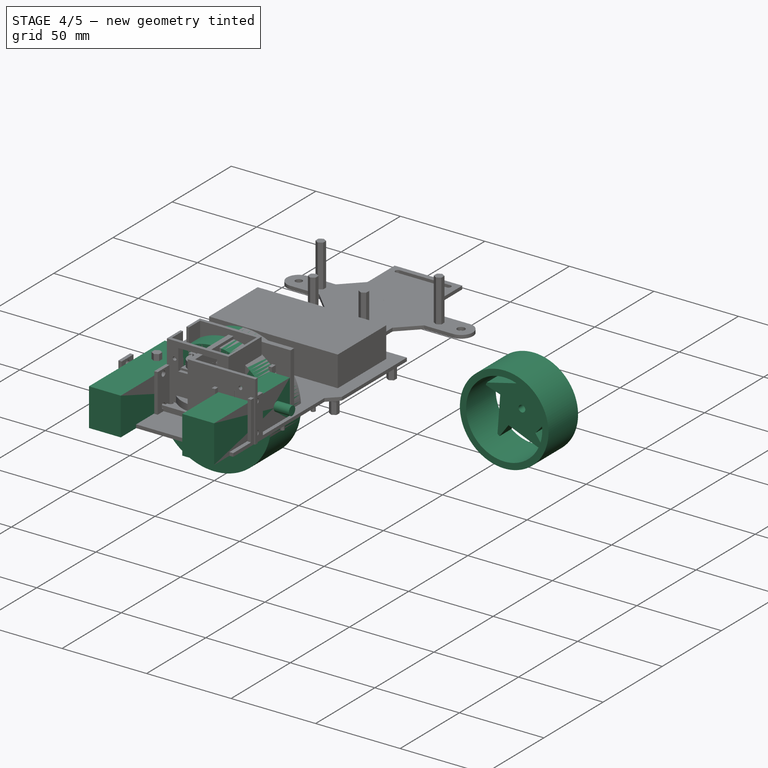
[diagram: stage 4 of 5 — iso view after this stage's code; geometry added in this stage tinted green]
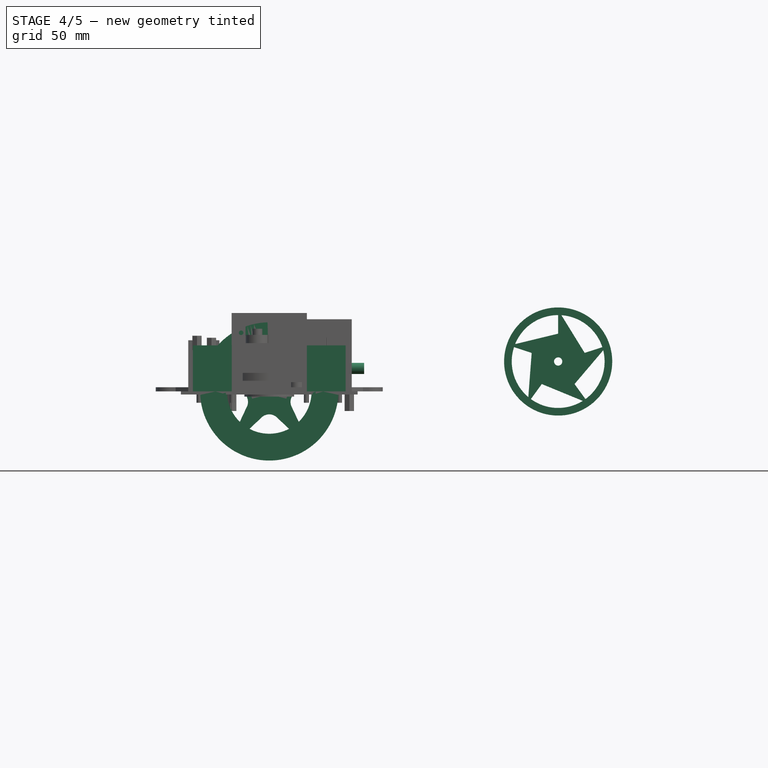
[diagram: stage 4 of 5 — front view after this stage's code; geometry added in this stage tinted green]
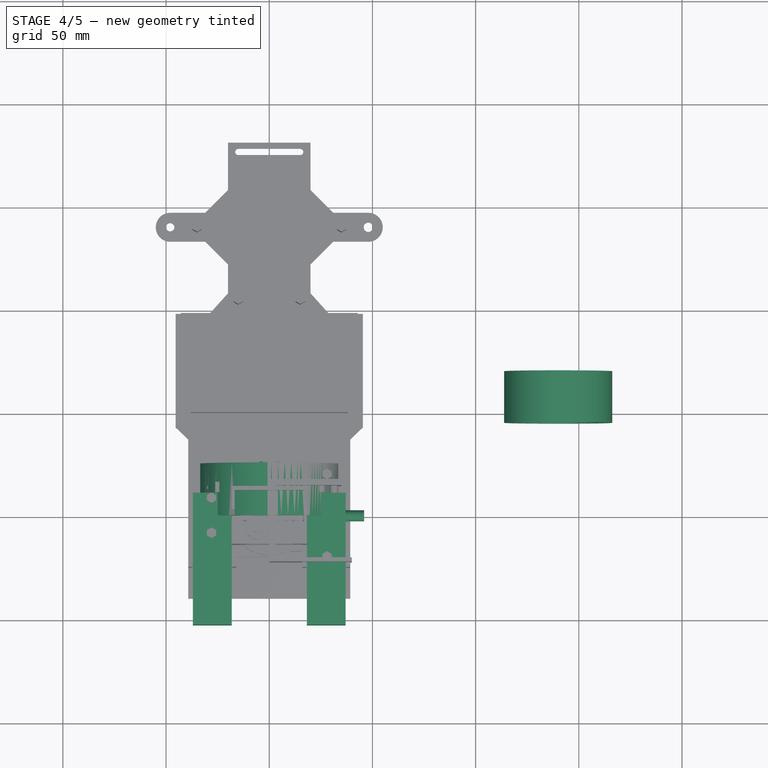
[diagram: stage 4 of 5 — top view after this stage's code; geometry added in this stage tinted green]
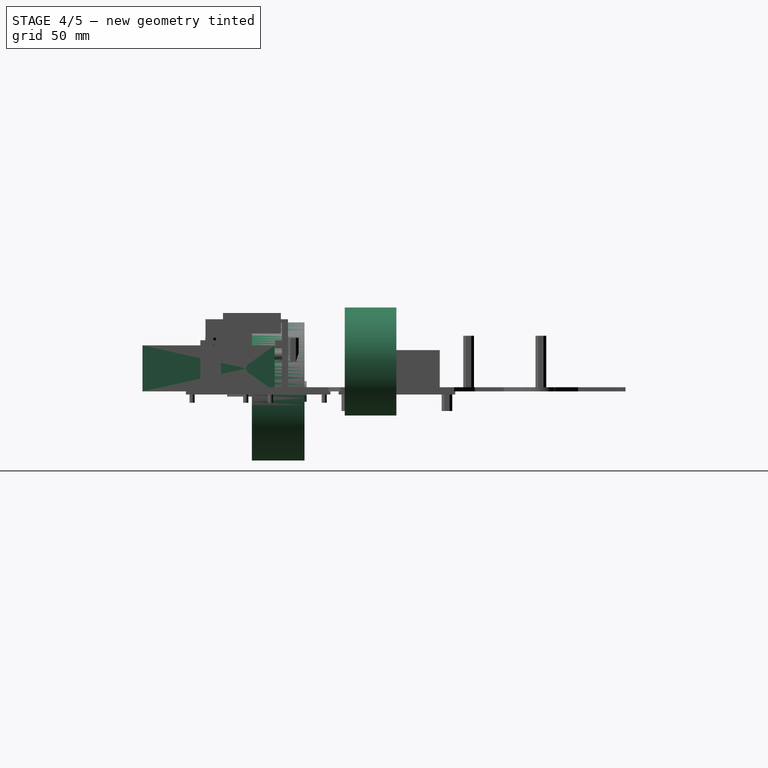
[diagram: stage 4 of 5 — right view after this stage's code; geometry added in this stage tinted green]
FEATURE [Part::Cone] Cone001
  Angle = 360
  AttacherType = Attacher::AttachEngine3D
  Height = 5
  Placement = pos=(140,-65.95,14.5) rot=(1,0,0;1.5708rad)
  Radius1 = 2
  Radius2 = 27.1
FEATURE [Sketcher::SketchObject] Sketch059
  FullyConstrained = true
  MapMode = 5
  Placement = pos=(0,0,0) rot=(1,0,0;1.5708rad)
  Support = -> [XZ_Plane021]
  sketch-geometry (2):
    g0: Circle CenterX=0 CenterY=0 CenterZ=0 NormalX=0 NormalY=0 NormalZ=1 AngleXU=0 Radius=26.2
    g1: Circle CenterX=0 CenterY=0 CenterZ=0 NormalX=0 NormalY=0 NormalZ=1 AngleXU=0 Radius=22.5
  constraints (4):
    c: Coincident(g0,g-1)
    c: Diameter(g0) = 52.4
    c: Coincident(g1,g0)
    c: Diameter(g1) = 45
FEATURE [PartDesign::Pad] Pad053
  Direction = (1,1,1)
  Length = 25
  Length2 = 100
  Placement = pos=(0,0,0) rot=(1,0,0;1.5708rad)
  Profile = -> Sketch059
  Type = 0
FEATURE [Sketcher::SketchObject] Sketch058
  FullyConstrained = true
  MapMode = 5
  Placement = pos=(0,-25,-5.6e-15) rot=(1,0,0;1.5708rad)
  Support = -> [Pad053]
  sketch-geometry (27):
    g0: LineSegment StartX=0 StartY=25 StartZ=0 EndX=-23.7764 EndY=7.72542 EndZ=0
    g1: LineSegment StartX=-23.7764 StartY=7.72542 StartZ=0 EndX=-14.6946 EndY=-20.2254 EndZ=0
    g2: LineSegment StartX=-14.6946 StartY=-20.2254 StartZ=0 EndX=14.6946 EndY=-20.2254 EndZ=0
    g3: LineSegment StartX=14.6946 StartY=-20.2254 StartZ=0 EndX=23.7764 EndY=7.72542 EndZ=0
    g4: LineSegment StartX=23.7764 StartY=7.72542 StartZ=0 EndX=0 EndY=25 EndZ=0
    g5: Circle CenterX=0 CenterY=0 CenterZ=0 NormalX=0 NormalY=0 NormalZ=1 AngleXU=0 Radius=25
    g6: Circle CenterX=0 CenterY=0 CenterZ=0 NormalX=0 NormalY=0 NormalZ=1 AngleXU=0 Radius=13.5
    g7: LineSegment StartX=23.7764 StartY=7.72542 StartZ=0 EndX=-23.7764 EndY=-7.72542 EndZ=0
    g8: LineSegment StartX=14.6946 StartY=-20.2254 StartZ=0 EndX=-14.6946 EndY=20.2254 EndZ=0
    g9: LineSegment StartX=-14.6946 StartY=-20.2254 StartZ=0 EndX=14.6946 EndY=20.2254 EndZ=0
    g10: LineSegment StartX=-23.7764 StartY=7.72542 StartZ=0 EndX=23.7764 EndY=-7.72542 EndZ=0
    g11: LineSegment StartX=23.7764 StartY=7.72542 StartZ=0 EndX=12.8393 EndY=4.17173 EndZ=0
    g12: LineSegment StartX=0 StartY=25 StartZ=0 EndX=-1.8e-15 EndY=13.5 EndZ=0
    g13: LineSegment StartX=-23.7764 StartY=7.72542 StartZ=0 EndX=-12.8393 EndY=4.17173 EndZ=0
    g14: LineSegment StartX=0 StartY=25 StartZ=0 EndX=-12.8393 EndY=4.17173 EndZ=0
    g15: LineSegment StartX=-14.6946 StartY=-20.2254 StartZ=0 EndX=-7.9351 EndY=-10.9217 EndZ=0
    g16: LineSegment StartX=14.6946 StartY=-20.2254 StartZ=0 EndX=7.9351 EndY=-10.9217 EndZ=0
    g17: LineSegment StartX=-23.7764 StartY=7.72542 StartZ=0 EndX=-7.9351 EndY=-10.9217 EndZ=0
    g18: LineSegment StartX=-14.6946 StartY=-20.2254 StartZ=0 EndX=7.9351 EndY=-10.9217 EndZ=0
    g19: LineSegment StartX=14.6946 StartY=-20.2254 StartZ=0 EndX=12.8393 EndY=4.17173 EndZ=0
    g20: LineSegment StartX=23.7764 StartY=7.72542 StartZ=0 EndX=-3.6e-15 EndY=13.5 EndZ=0
    g21: Circle CenterX=0 CenterY=0 CenterZ=0 NormalX=0 NormalY=0 NormalZ=1 AngleXU=0 Radius=2
    g22: LineSegment StartX=-23.7764 StartY=7.72542 StartZ=0 EndX=7.9351 EndY=-10.9217 EndZ=0
    g23: LineSegment StartX=-14.6946 StartY=-20.2254 StartZ=0 EndX=12.8393 EndY=4.17173 EndZ=0
    g24: LineSegment StartX=14.6946 StartY=-20.2254 StartZ=0 EndX=-1.8e-15 EndY=13.5 EndZ=0
    g25: LineSegment StartX=23.7764 StartY=7.72542 StartZ=0 EndX=-12.8393 EndY=4.17173 EndZ=0
    g26: LineSegment StartX=0 StartY=25 StartZ=0 EndX=-7.9351 EndY=-10.9217 EndZ=0
  constraints (65):
    c: Coincident(g0,g1)
    c: Coincident(g1,g2)
    c: Coincident(g2,g3)
    c: Coincident(g3,g4)
    c: Coincident(g4,g0)
    c: Equal(g0, g1-g4) x4
    c: PointOnObject(g0,g5)
    c: PointOnObject(g1,g5)
    c: PointOnObject(g2,g5)
    c: PointOnObject(g3,g5)
    c: PointOnObject(g4,g5)
    c: Coincident(g5,g-1)
    c: PointOnObject(g4,g-2)
    c: Diameter(g5) = 50
    c: Coincident(g6,g-1)
    c: Diameter(g6) = 27
    c: Coincident(g7,g3)
    c: PointOnObject(g7,g5)
    c: Coincident(g8,g2)
    c: PointOnObject(g8,g5)
    c: Coincident(g9,g1)
    c: PointOnObject(g9,g5)
    c: Coincident(g10,g0)
    c: PointOnObject(g10,g5)
    c: Perpendicular(g3,g10)
    c: Perpendicular(g9,g4)
    c: Perpendicular(g0,g8)
    c: Perpendicular(g7,g1)
    c: Coincident(g11,g3)
    c: PointOnObject(g11,g7)
    c: PointOnObject(g11,g6)
    c: Coincident(g12,g0)
    c: PointOnObject(g12,g-2)
    c: PointOnObject(g12,g6)
    c: Coincident(g13,g0)
    c: PointOnObject(g13,g10)
    c: PointOnObject(g13,g6)
    c: Coincident(g14,g12)
    c: Coincident(g14,g13)
    c: Coincident(g15,g1)
    c: PointOnObject(g15,g9)
    c: Coincident(g16,g2)
    c: PointOnObject(g16,g8)
    c: PointOnObject(g15,g6)
    c: PointOnObject(g16,g6)
    c: Coincident(g17,g13)
    c: Coincident(g17,g15)
    c: Coincident(g18,g15)
    c: Coincident(g18,g16)
    c: Coincident(g19,g16)
    c: Coincident(g19,g11)
    c: Coincident(g20,g11)
    c: Coincident(g20,g12)
    c: Coincident(g21,g-1)
    c: Diameter(g21) = 4
    c: Coincident(g22,g13)
    c: Coincident(g22,g16)
    c: Coincident(g23,g15)
    c: Coincident(g23,g11)
    c: Coincident(g24,g16)
    c: Coincident(g24,g12)
    c: Coincident(g25,g11)
    c: Coincident(g25,g13)
    c: Coincident(g26,g12)
    c: Coincident(g26,g15)
FEATURE [PartDesign::Pad] Pad054
  BaseFeature = -> Pad053
  Direction = (1,1,1)
  Length = 10
  Length2 = 100
  Placement = pos=(0,0,0) rot=(1,0,0;1.5708rad)
  Profile = -> Sketch058
  Reversed = true
  Type = 0
FEATURE [PartDesign::Body] Body019  label="WheelFrontLeftPneu"
  Group = -> [Sketch055,Pad050]
  Origin = -> Origin019
  Placement = pos=(140,70.25,14.5) rot=(0,0,1;3.14159rad)
  Tip = -> Pad050
FEATURE [Part::Cut] Cut001  label="WheelFrontLeft"
  Base = -> Body021
  Placement = pos=(280,0,0) rot=(0,0,1;3.14159rad)
  Tool = -> Cone001
FEATURE [App::DocumentObjectGroup] Group005  label="FrontLeft"
  Group = -> [Body019,Cut001]
FEATURE [App::DocumentObjectGroup] Group002  label="Front"
  Group = -> [Group004,Group005]
FEATURE [Sketcher::SketchObject] Sketch026
  FullyConstrained = true
  MapMode = 5
  Placement = pos=(0,0,0) rot=(1,0,0;1.5708rad)
  Support = -> [XZ_Plane011]
  sketch-geometry (2):
    g0: Circle CenterX=0 CenterY=0 CenterZ=0 NormalX=0 NormalY=0 NormalZ=1 AngleXU=0 Radius=26.2
    g1: Circle CenterX=0 CenterY=0 CenterZ=0 NormalX=0 NormalY=0 NormalZ=1 AngleXU=0 Radius=22.5
  constraints (4):
    c: Coincident(g0,g-1)
    c: Diameter(g0) = 52.4
    c: Coincident(g1,g0)
    c: Diameter(g1) = 45
FEATURE [PartDesign::Pad] Pad024
  Direction = (1,1,1)
  Length = 25
  Length2 = 100
  Placement = pos=(0,0,0) rot=(1,0,0;1.5708rad)
  Profile = -> Sketch026
  Reversed = true
  Type = 0
FEATURE [Sketcher::SketchObject] Sketch025
  FullyConstrained = true
  MapMode = 5
  Placement = pos=(0,0,0) rot=(1,0,0;1.5708rad)
  Support = -> [Pad024]
  sketch-geometry (33):
    g0: LineSegment StartX=23.7764 StartY=7.72542 StartZ=0 EndX=0 EndY=25 EndZ=0
    g1: LineSegment StartX=0 StartY=25 StartZ=0 EndX=-23.7764 EndY=7.72542 EndZ=0
    g2: LineSegment StartX=-23.7764 StartY=7.72542 StartZ=0 EndX=-14.6946 EndY=-20.2254 EndZ=0
    g3: LineSegment StartX=-14.6946 StartY=-20.2254 StartZ=0 EndX=14.6946 EndY=-20.2254 EndZ=0
    g4: LineSegment StartX=14.6946 StartY=-20.2254 StartZ=0 EndX=23.7764 EndY=7.72542 EndZ=0
    g5: Circle CenterX=0 CenterY=0 CenterZ=0 NormalX=0 NormalY=0 NormalZ=1 AngleXU=0 Radius=25
    g6: LineSegment StartX=-23.7764 StartY=7.72542 StartZ=0 EndX=23.7764 EndY=-7.72542 EndZ=0
    g7: LineSegment StartX=-14.6946 StartY=-20.2254 StartZ=0 EndX=14.6946 EndY=20.2254 EndZ=0
    g8: LineSegment StartX=14.6946 StartY=-20.2254 StartZ=0 EndX=-14.6946 EndY=20.2254 EndZ=0
    g9: LineSegment StartX=23.7764 StartY=7.72542 StartZ=0 EndX=-23.7764 EndY=-7.72542 EndZ=0
    g10: Circle CenterX=0 CenterY=0 CenterZ=0 NormalX=0 NormalY=0 NormalZ=1 AngleXU=0 Radius=13.5
    g11: Circle CenterX=0 CenterY=0 CenterZ=0 NormalX=0 NormalY=0 NormalZ=1 AngleXU=0 Radius=16.5
    g12: LineSegment StartX=-2 StartY=24.9199 StartZ=0 EndX=-4.34272 EndY=12.7824 EndZ=0
    g13: LineSegment StartX=-10.8149 StartY=8.08016 StartZ=0 EndX=-23.0822 EndY=9.60278 EndZ=0
    g14: LineSegment StartX=-24.3182 StartY=5.79855 StartZ=0 EndX=-13.4988 EndY=-0.180176 EndZ=0
    g15: LineSegment StartX=-11.0267 StartY=-7.78863 StartZ=0 EndX=-16.2656 EndY=-18.985 EndZ=0
    g16: LineSegment StartX=-13.0295 StartY=-21.3362 StartZ=0 EndX=-4 EndY=-12.8938 EndZ=0
    g17: LineSegment StartX=4 StartY=-12.8938 StartZ=0 EndX=13.0295 EndY=-21.3362 EndZ=0
    g18: LineSegment StartX=16.2656 StartY=-18.985 StartZ=0 EndX=11.0267 EndY=-7.78863 EndZ=0
    g19: LineSegment StartX=13.4988 StartY=-0.180176 StartZ=0 EndX=24.3182 EndY=5.79855 EndZ=0
    g20: LineSegment StartX=23.0822 StartY=9.60278 StartZ=0 EndX=10.8149 EndY=8.08016 EndZ=0
    g21: LineSegment StartX=4.34272 StartY=12.7824 StartZ=0 EndX=2 EndY=24.9199 EndZ=0
    g22: ArcOfCircle CenterX=-9.69846 CenterY=13.3488 CenterZ=0 NormalX=0 NormalY=0 NormalZ=1 AngleXU=0 Radius=5.3856 StartAngle=4.50358 EndAngle=6.17783
    g23: ArcOfCircle CenterX=-15.6924 CenterY=-5.09878 CenterZ=0 NormalX=0 NormalY=0 NormalZ=1 AngleXU=0 Radius=5.3856 StartAngle=5.76022 EndAngle=7.43447
    g24: ArcOfCircle CenterX=0 CenterY=-16.5 CenterZ=0 NormalX=0 NormalY=0 NormalZ=1 AngleXU=0 Radius=5.3856 StartAngle=0.733671 EndAngle=2.40792
    g25: ArcOfCircle CenterX=15.6924 CenterY=-5.09878 CenterZ=0 NormalX=0 NormalY=0 NormalZ=1 AngleXU=0 Radius=5.3856 StartAngle=1.99031 EndAngle=3.66456
    g26: ArcOfCircle CenterX=9.69846 CenterY=13.3488 CenterZ=0 NormalX=0 NormalY=0 NormalZ=1 AngleXU=0 Radius=5.3856 StartAngle=3.24695 EndAngle=4.9212
    g27: LineSegment StartX=-24.3182 StartY=5.79855 StartZ=0 EndX=-23.0822 EndY=9.60278 EndZ=0
    g28: LineSegment StartX=-2 StartY=24.9199 StartZ=0 EndX=2 EndY=24.9199 EndZ=0
    g29: LineSegment StartX=23.0822 StartY=9.60278 StartZ=0 EndX=24.3182 EndY=5.79855 EndZ=0
    g30: LineSegment StartX=16.2656 StartY=-18.985 StartZ=0 EndX=13.0295 EndY=-21.3362 EndZ=0
    g31: LineSegment StartX=-16.2656 StartY=-18.985 StartZ=0 EndX=-13.0295 EndY=-21.3362 EndZ=0
    g32: Circle CenterX=0 CenterY=0 CenterZ=0 NormalX=0 NormalY=0 NormalZ=1 AngleXU=0 Radius=9
  constraints (92):
    c: Coincident(g0,g1)
    c: Coincident(g1,g2)
    c: Coincident(g2,g3)
    c: Coincident(g3,g4)
    c: Coincident(g4,g0)
    c: Equal(g0, g1-g4) x4
    c: PointOnObject(g0,g5)
    c: PointOnObject(g1,g5)
    c: PointOnObject(g2,g5)
    c: PointOnObject(g3,g5)
    c: PointOnObject(g4,g5)
    c: Coincident(g5,g-1)
    c: Diameter(g5) = 50
    c: Perpendicular(g-2,g3)
    c: Coincident(g6,g1)
    c: PointOnObject(g6,g5)
    c: Coincident(g7,g2)
    c: PointOnObject(g7,g5)
    c: Coincident(g8,g3)
    c: PointOnObject(g8,g5)
    c: Perpendicular(g8,g1)
    c: Perpendicular(g7,g0)
    c: Perpendicular(g6,g4)
    c: Coincident(g9,g0)
    c: PointOnObject(g9,g5)
    c: Perpendicular(g9,g2)
    c: Coincident(g10,g-1)
    c: Coincident(g11,g-1)
    c: Diameter(g10) = 27
    c: Diameter(g11) = 33
    c: PointOnObject(g12,g5)
    c: PointOnObject(g12,g10)
    c: PointOnObject(g13,g10)
    c: PointOnObject(g13,g5)
    c: PointOnObject(g14,g10)
    c: PointOnObject(g15,g10)
    c: PointOnObject(g15,g5)
    c: PointOnObject(g16,g10)
    c: PointOnObject(g17,g10)
    c: PointOnObject(g17,g5)
    c: PointOnObject(g18,g10)
    c: PointOnObject(g19,g10)
    c: PointOnObject(g19,g5)
    c: PointOnObject(g20,g10)
    c: PointOnObject(g22,g8)
    c: Coincident(g22,g13)
    c: Coincident(g22,g12)
    c: PointOnObject(g23,g9)
    c: Coincident(g23,g14)
    c: Coincident(g23,g15)
    c: PointOnObject(g24,g-2)
    c: Coincident(g24,g16)
    c: Coincident(g24,g17)
    c: PointOnObject(g25,g6)
    c: Coincident(g25,g18)
    c: Coincident(g25,g19)
    c: PointOnObject(g26,g7)
    c: Coincident(g26,g20)
    c: Coincident(g26,g21)
    c: PointOnObject(g22,g11)
    c: PointOnObject(g26,g11)
    c: PointOnObject(g23,g11)
    c: PointOnObject(g24,g11)
    c: PointOnObject(g25,g11)
    c: PointOnObject(g21,g10)
    c: Symmetric(g12,g21,g-2)
    c: DistanceX(g12,g21) = 4
    c: Symmetric(g20,g19,g9)
    c: Distance(g20,g19) = 4
    c: Symmetric(g17,g18,g8)
    c: Distance(g17,g18) = 4
    c: Symmetric(g16,g15,g7)
    c: Distance(g15,g16) = 4
    c: Symmetric(g14,g13,g6)
    c: Distance(g13,g14) = 4
    c: Coincident(g27,g14)
    c: Coincident(g27,g13)
    c: Coincident(g28,g12)
    c: Coincident(g28,g21)
    c: Coincident(g29,g20)
    c: Coincident(g29,g19)
    c: Coincident(g30,g18)
    c: Coincident(g30,g17)
    c: Coincident(g31,g16)
    c: Coincident(g31,g15)
    c: Distance(g14,g15) = 8
    c: Distance(g16,g17) = 8
    c: Distance(g18,g19) = 8
    c: Distance(g20,g21) = 8
    c: Distance(g12,g13) = 8
    c: Coincident(g32,g-1)
    c: Diameter(g32) = 18
FEATURE [PartDesign::Pad] Pad026  label="StartPad001"
  BaseFeature = -> Pad024
  Direction = (1,1,1)
  Length = 1
  Length2 = 100
  Placement = pos=(0,0,0) rot=(1,0,0;1.5708rad)
  Profile = -> Sketch025
  Reversed = true
  Type = 0
FEATURE [Sketcher::SketchObject] Sketch028
  AttachmentOffset = pos=(0,0,-1) rot=(0,0,1;0rad)
  FullyConstrained = true
  MapMode = 5
  Placement = pos=(0,1,2e-16) rot=(1,0,0;1.5708rad)
  Support = -> [Pad026]
  sketch-geometry (2):
    g0: Circle CenterX=0 CenterY=0 CenterZ=0 NormalX=0 NormalY=0 NormalZ=1 AngleXU=0 Radius=20.5
    g1: Circle CenterX=0 CenterY=0 CenterZ=0 NormalX=0 NormalY=0 NormalZ=1 AngleXU=0 Radius=25
  constraints (4):
    c: Coincident(g0,g-1)
    c: Diameter(g0) = 41
    c: Coincident(g1,g0)
    c: Diameter(g1) = 50
FEATURE [PartDesign::Pad] Pad025
  BaseFeature = -> Pad026
  Direction = (1,1,1)
  Length = 1
  Length2 = 100
  Placement = pos=(0,0,0) rot=(1,0,0;1.5708rad)
  Profile = -> Sketch028
  Reversed = true
  Type = 0
FEATURE [Sketcher::SketchObject] Sketch029
  ExternalGeometry = -> [Pad025]
  FullyConstrained = true
  MapMode = 5
  Placement = pos=(0,1,2e-16) rot=(-1,0,0;1.5708rad)
  Support = -> [Pad025]
  sketch-geometry (2):
    g0: Circle CenterX=0 CenterY=0 CenterZ=0 NormalX=0 NormalY=0 NormalZ=1 AngleXU=0 Radius=9
    g1: Circle CenterX=0 CenterY=0 CenterZ=0 NormalX=0 NormalY=0 NormalZ=1 AngleXU=0 Radius=10.5
  constraints (4):
    c: Coincident(g0,g-1)
    c: Tangent(g0,g-3)
    c: Coincident(g1,g0)
    c: Diameter(g1) = 21
FEATURE [PartDesign::Pad] Pad028
  BaseFeature = -> Pad025
  Direction = (1,1,1)
  Length = 5
  Length2 = 100
  Placement = pos=(0,0,0) rot=(1,0,0;1.5708rad)
  Profile = -> Sketch029
  Type = 0
FEATURE [Sketcher::SketchObject] Sketch027
  ExternalGeometry = -> [Pad028]
  FullyConstrained = true
  MapMode = 5
  Placement = pos=(0,6,1.3e-15) rot=(-1,0,0;1.5708rad)
  Support = -> [Pad028]
  sketch-geometry (1):
    g0: Circle CenterX=0 CenterY=0 CenterZ=0 NormalX=0 NormalY=0 NormalZ=1 AngleXU=0 Radius=10.5
  constraints (2):
    c: Coincident(g0,g-1)
    c: Tangent(g0,g-3)
FEATURE [PartDesign::Pad] Pad027
  BaseFeature = -> Pad028
  Direction = (1,1,1)
  Length = 5
  Length2 = 100
  Placement = pos=(0,0,0) rot=(1,0,0;1.5708rad)
  Profile = -> Sketch027
  Type = 0
FEATURE [Sketcher::SketchObject] Sketch031
  FullyConstrained = true
  MapMode = 5
  Placement = pos=(0,11,2.1e-15) rot=(-1,0,0;1.5708rad)
  Support = -> [Pad027]
  sketch-geometry (1):
    g0: Circle CenterX=0 CenterY=0 CenterZ=0 NormalX=0 NormalY=0 NormalZ=1 AngleXU=0 Radius=5
  constraints (2):
    c: Coincident(g0,g-1)
    c: Diameter(g0) = 10
FEATURE [PartDesign::Pad] Pad029  label="Axe001"
  BaseFeature = -> Pad027
  Direction = (1,1,1)
  Length = 15.5
  Length2 = 100
  Placement = pos=(0,0,0) rot=(1,0,0;1.5708rad)
  Profile = -> Sketch031
  Type = 0
FEATURE [Sketcher::SketchObject] Sketch030
  FullyConstrained = true
  MapMode = 5
  Placement = pos=(0,6,1.2e-15) rot=(1,0,0;1.5708rad)
  Support = -> [Pad029]
  sketch-geometry (7):
    g0: LineSegment StartX=4.33013 StartY=2.5 StartZ=0 EndX=0 EndY=5 EndZ=0
    g1: LineSegment StartX=0 StartY=5 StartZ=0 EndX=-4.33013 EndY=2.5 EndZ=0
    g2: LineSegment StartX=-4.33013 StartY=2.5 StartZ=0 EndX=-4.33013 EndY=-2.5 EndZ=0
    g3: LineSegment StartX=-4.33013 StartY=-2.5 StartZ=0 EndX=0 EndY=-5 EndZ=0
    g4: LineSegment StartX=0 StartY=-5 StartZ=0 EndX=4.33013 EndY=-2.5 EndZ=0
    g5: LineSegment StartX=4.33013 StartY=-2.5 StartZ=0 EndX=4.33013 EndY=2.5 EndZ=0
    g6: Circle CenterX=0 CenterY=0 CenterZ=0 NormalX=0 NormalY=0 NormalZ=1 AngleXU=0 Radius=5
  constraints (16):
    c: Coincident(g0,g1)
    c: Coincident(g1,g2)
    c: Coincident(g2,g3)
    c: Coincident(g3,g4)
    c: Coincident(g4,g5)
    c: Coincident(g5,g0)
    c: Equal(g0, g1-g5) x5
    c: PointOnObject(g0,g6)
    c: PointOnObject(g1,g6)
    c: PointOnObject(g2,g6)
    c: PointOnObject(g3,g6)
    c: PointOnObject(g4,g6)
    c: PointOnObject(g5,g6)
    c: Coincident(g6,g-1)
    c: Diameter(g6) = 10
    c: PointOnObject(g0,g-2)
FEATURE [PartDesign::Pad] Pad030  label="Ecrou001"
  BaseFeature = -> Pad029
  Direction = (1,1,1)
  Length = 5
  Length2 = 100
  Placement = pos=(0,0,0) rot=(1,0,0;1.5708rad)
  Profile = -> Sketch030
  Type = 0
FEATURE [PartDesign::Body] Body011  label="WheelRearLeftCopy"
  Group = -> [Sketch026,Pad024,Sketch025,Pad026,Sketch028,Pad025,Sketch029,Pad028,Sketch027,Pad027,Sketch031,Pad029,Sketch030,Pad030]
  Origin = -> Origin011
  Placement = pos=(0,66,13.5) rot=(0,0,1;3.14159rad)
  Tip = -> Pad030
FEATURE [Sketcher::SketchObject] Sketch033
  FullyConstrained = true
  MapMode = 5
  Placement = pos=(0,0,0) rot=(1,0,0;1.5708rad)
  Support = -> [XZ_Plane013]
  sketch-geometry (2):
    g0: Circle CenterX=0 CenterY=0 CenterZ=0 NormalX=0 NormalY=0 NormalZ=1 AngleXU=0 Radius=26
    g1: Circle CenterX=0 CenterY=0 CenterZ=0 NormalX=0 NormalY=0 NormalZ=1 AngleXU=0 Radius=33.5
  constraints (4):
    c: Coincident(g0,g-1)
    c: Diameter(g0) = 52
    c: Coincident(g1,g0)
    c: Diameter(g1) = 67
FEATURE [PartDesign::Pad] Pad032
  Direction = (1,1,1)
  Length = 25.5
  Length2 = 100
  Placement = pos=(0,0,0) rot=(1,0,0;1.5708rad)
  Profile = -> Sketch033
  Reversed = true
  Type = 0
FEATURE [PartDesign::Body] Body013  label="WheelRearLeftPneuCopy"
  Group = -> [Sketch033,Pad032]
  Origin = -> Origin013
  Placement = pos=(0,66.25,13.5) rot=(0,0,1;3.14159rad)
  Tip = -> Pad032
FEATURE [App::DocumentObjectGroup] Group006  label="RearLeft"
  Group = -> [Body011,Body013]
FEATURE [Sketcher::SketchObject] Sketch016
  FullyConstrained = true
  MapMode = 5
  Placement = pos=(0,0,0) rot=(1,0,0;1.5708rad)
  Support = -> [XZ_Plane010]
  sketch-geometry (2):
    g0: Circle CenterX=0 CenterY=0 CenterZ=0 NormalX=0 NormalY=0 NormalZ=1 AngleXU=0 Radius=26.2
    g1: Circle CenterX=0 CenterY=0 CenterZ=0 NormalX=0 NormalY=0 NormalZ=1 AngleXU=0 Radius=22.5
  constraints (4):
    c: Coincident(g0,g-1)
    c: Diameter(g0) = 52.4
    c: Coincident(g1,g0)
    c: Diameter(g1) = 45
FEATURE [PartDesign::Pad] Pad017
  Direction = (1,1,1)
  Length = 25
  Length2 = 100
  Placement = pos=(0,0,0) rot=(1,0,0;1.5708rad)
  Profile = -> Sketch016
  Reversed = true
  Type = 0
FEATURE [Sketcher::SketchObject] Sketch019
  FullyConstrained = true
  MapMode = 5
  Placement = pos=(0,0,0) rot=(1,0,0;1.5708rad)
  Support = -> [Pad017]
  sketch-geometry (33):
    g0: LineSegment StartX=23.7764 StartY=7.72542 StartZ=0 EndX=0 EndY=25 EndZ=0
    g1: LineSegment StartX=0 StartY=25 StartZ=0 EndX=-23.7764 EndY=7.72542 EndZ=0
    g2: LineSegment StartX=-23.7764 StartY=7.72542 StartZ=0 EndX=-14.6946 EndY=-20.2254 EndZ=0
    g3: LineSegment StartX=-14.6946 StartY=-20.2254 StartZ=0 EndX=14.6946 EndY=-20.2254 EndZ=0
    g4: LineSegment StartX=14.6946 StartY=-20.2254 StartZ=0 EndX=23.7764 EndY=7.72542 EndZ=0
    g5: Circle CenterX=0 CenterY=0 CenterZ=0 NormalX=0 NormalY=0 NormalZ=1 AngleXU=0 Radius=25
    g6: LineSegment StartX=-23.7764 StartY=7.72542 StartZ=0 EndX=23.7764 EndY=-7.72542 EndZ=0
    g7: LineSegment StartX=-14.6946 StartY=-20.2254 StartZ=0 EndX=14.6946 EndY=20.2254 EndZ=0
    g8: LineSegment StartX=14.6946 StartY=-20.2254 StartZ=0 EndX=-14.6946 EndY=20.2254 EndZ=0
    g9: LineSegment StartX=23.7764 StartY=7.72542 StartZ=0 EndX=-23.7764 EndY=-7.72542 EndZ=0
    g10: Circle CenterX=0 CenterY=0 CenterZ=0 NormalX=0 NormalY=0 NormalZ=1 AngleXU=0 Radius=13.5
    g11: Circle CenterX=0 CenterY=0 CenterZ=0 NormalX=0 NormalY=0 NormalZ=1 AngleXU=0 Radius=16.5
    g12: LineSegment StartX=-2 StartY=24.9199 StartZ=0 EndX=-4.34272 EndY=12.7824 EndZ=0
    g13: LineSegment StartX=-10.8149 StartY=8.08016 StartZ=0 EndX=-23.0822 EndY=9.60278 EndZ=0
    g14: LineSegment StartX=-24.3182 StartY=5.79855 StartZ=0 EndX=-13.4988 EndY=-0.180176 EndZ=0
    g15: LineSegment StartX=-11.0267 StartY=-7.78863 StartZ=0 EndX=-16.2656 EndY=-18.985 EndZ=0
    g16: LineSegment StartX=-13.0295 StartY=-21.3362 StartZ=0 EndX=-4 EndY=-12.8938 EndZ=0
    g17: LineSegment StartX=4 StartY=-12.8938 StartZ=0 EndX=13.0295 EndY=-21.3362 EndZ=0
    g18: LineSegment StartX=16.2656 StartY=-18.985 StartZ=0 EndX=11.0267 EndY=-7.78863 EndZ=0
    g19: LineSegment StartX=13.4988 StartY=-0.180176 StartZ=0 EndX=24.3182 EndY=5.79855 EndZ=0
    g20: LineSegment StartX=23.0822 StartY=9.60278 StartZ=0 EndX=10.8149 EndY=8.08016 EndZ=0
    g21: LineSegment StartX=4.34272 StartY=12.7824 StartZ=0 EndX=2 EndY=24.9199 EndZ=0
    g22: ArcOfCircle CenterX=-9.69846 CenterY=13.3488 CenterZ=0 NormalX=0 NormalY=0 NormalZ=1 AngleXU=0 Radius=5.3856 StartAngle=4.50358 EndAngle=6.17783
    g23: ArcOfCircle CenterX=-15.6924 CenterY=-5.09878 CenterZ=0 NormalX=0 NormalY=0 NormalZ=1 AngleXU=0 Radius=5.3856 StartAngle=5.76022 EndAngle=7.43447
    g24: ArcOfCircle CenterX=0 CenterY=-16.5 CenterZ=0 NormalX=0 NormalY=0 NormalZ=1 AngleXU=0 Radius=5.3856 StartAngle=0.733671 EndAngle=2.40792
    g25: ArcOfCircle CenterX=15.6924 CenterY=-5.09878 CenterZ=0 NormalX=0 NormalY=0 NormalZ=1 AngleXU=0 Radius=5.3856 StartAngle=1.99031 EndAngle=3.66456
    g26: ArcOfCircle CenterX=9.69846 CenterY=13.3488 CenterZ=0 NormalX=0 NormalY=0 NormalZ=1 AngleXU=0 Radius=5.3856 StartAngle=3.24695 EndAngle=4.9212
    g27: LineSegment StartX=-24.3182 StartY=5.79855 StartZ=0 EndX=-23.0822 EndY=9.60278 EndZ=0
    g28: LineSegment StartX=-2 StartY=24.9199 StartZ=0 EndX=2 EndY=24.9199 EndZ=0
    g29: LineSegment StartX=23.0822 StartY=9.60278 StartZ=0 EndX=24.3182 EndY=5.79855 EndZ=0
    g30: LineSegment StartX=16.2656 StartY=-18.985 StartZ=0 EndX=13.0295 EndY=-21.3362 EndZ=0
    g31: LineSegment StartX=-16.2656 StartY=-18.985 StartZ=0 EndX=-13.0295 EndY=-21.3362 EndZ=0
    g32: Circle CenterX=0 CenterY=0 CenterZ=0 NormalX=0 NormalY=0 NormalZ=1 AngleXU=0 Radius=9
  constraints (92):
    c: Coincident(g0,g1)
    c: Coincident(g1,g2)
    c: Coincident(g2,g3)
    c: Coincident(g3,g4)
    c: Coincident(g4,g0)
    c: Equal(g0, g1-g4) x4
    c: PointOnObject(g0,g5)
    c: PointOnObject(g1,g5)
    c: PointOnObject(g2,g5)
    c: PointOnObject(g3,g5)
    c: PointOnObject(g4,g5)
    c: Coincident(g5,g-1)
    c: Diameter(g5) = 50
    c: Perpendicular(g-2,g3)
    c: Coincident(g6,g1)
    c: PointOnObject(g6,g5)
    c: Coincident(g7,g2)
    c: PointOnObject(g7,g5)
    c: Coincident(g8,g3)
    c: PointOnObject(g8,g5)
    c: Perpendicular(g8,g1)
    c: Perpendicular(g7,g0)
    c: Perpendicular(g6,g4)
    c: Coincident(g9,g0)
    c: PointOnObject(g9,g5)
    c: Perpendicular(g9,g2)
    c: Coincident(g10,g-1)
    c: Coincident(g11,g-1)
    c: Diameter(g10) = 27
    c: Diameter(g11) = 33
    c: PointOnObject(g12,g5)
    c: PointOnObject(g12,g10)
    c: PointOnObject(g13,g10)
    c: PointOnObject(g13,g5)
    c: PointOnObject(g14,g10)
    c: PointOnObject(g15,g10)
    c: PointOnObject(g15,g5)
    c: PointOnObject(g16,g10)
    c: PointOnObject(g17,g10)
    c: PointOnObject(g17,g5)
    c: PointOnObject(g18,g10)
    c: PointOnObject(g19,g10)
    c: PointOnObject(g19,g5)
    c: PointOnObject(g20,g10)
    c: PointOnObject(g22,g8)
    c: Coincident(g22,g13)
    c: Coincident(g22,g12)
    c: PointOnObject(g23,g9)
    c: Coincident(g23,g14)
    c: Coincident(g23,g15)
    c: PointOnObject(g24,g-2)
    c: Coincident(g24,g16)
    c: Coincident(g24,g17)
    c: PointOnObject(g25,g6)
    c: Coincident(g25,g18)
    c: Coincident(g25,g19)
    c: PointOnObject(g26,g7)
    c: Coincident(g26,g20)
    c: Coincident(g26,g21)
    c: PointOnObject(g22,g11)
    c: PointOnObject(g26,g11)
    c: PointOnObject(g23,g11)
    c: PointOnObject(g24,g11)
    c: PointOnObject(g25,g11)
    c: PointOnObject(g21,g10)
    c: Symmetric(g12,g21,g-2)
    c: DistanceX(g12,g21) = 4
    c: Symmetric(g20,g19,g9)
    c: Distance(g20,g19) = 4
    c: Symmetric(g17,g18,g8)
    c: Distance(g17,g18) = 4
    c: Symmetric(g16,g15,g7)
    c: Distance(g15,g16) = 4
    c: Symmetric(g14,g13,g6)
    c: Distance(g13,g14) = 4
    c: Coincident(g27,g14)
    c: Coincident(g27,g13)
    c: Coincident(g28,g12)
    c: Coincident(g28,g21)
    c: Coincident(g29,g20)
    c: Coincident(g29,g19)
    c: Coincident(g30,g18)
    c: Coincident(g30,g17)
    c: Coincident(g31,g16)
    c: Coincident(g31,g15)
    c: Distance(g14,g15) = 8
    c: Distance(g16,g17) = 8
    c: Distance(g18,g19) = 8
    c: Distance(g20,g21) = 8
    c: Distance(g12,g13) = 8
    c: Coincident(g32,g-1)
    c: Diameter(g32) = 18
FEATURE [PartDesign::Pad] Pad018  label="StartPad"
  BaseFeature = -> Pad017
  Direction = (1,1,1)
  Length = 1
  Length2 = 100
  Placement = pos=(0,0,0) rot=(1,0,0;1.5708rad)
  Profile = -> Sketch019
  Reversed = true
  Type = 0
FEATURE [Sketcher::SketchObject] Sketch020
  AttachmentOffset = pos=(0,0,-1) rot=(0,0,1;0rad)
  FullyConstrained = true
  MapMode = 5
  Placement = pos=(0,1,2e-16) rot=(1,0,0;1.5708rad)
  Support = -> [Pad018]
  sketch-geometry (2):
    g0: Circle CenterX=0 CenterY=0 CenterZ=0 NormalX=0 NormalY=0 NormalZ=1 AngleXU=0 Radius=20.5
    g1: Circle CenterX=0 CenterY=0 CenterZ=0 NormalX=0 NormalY=0 NormalZ=1 AngleXU=0 Radius=25
  constraints (4):
    c: Coincident(g0,g-1)
    c: Diameter(g0) = 41
    c: Coincident(g1,g0)
    c: Diameter(g1) = 50
FEATURE [PartDesign::Pad] Pad019
  BaseFeature = -> Pad018
  Direction = (1,1,1)
  Length = 1
  Length2 = 100
  Placement = pos=(0,0,0) rot=(1,0,0;1.5708rad)
  Profile = -> Sketch020
  Reversed = true
  Type = 0
FEATURE [Sketcher::SketchObject] Sketch021
  ExternalGeometry = -> [Pad019]
  FullyConstrained = true
  MapMode = 5
  Placement = pos=(0,1,2e-16) rot=(-1,0,0;1.5708rad)
  Support = -> [Pad019]
  sketch-geometry (2):
    g0: Circle CenterX=0 CenterY=0 CenterZ=0 NormalX=0 NormalY=0 NormalZ=1 AngleXU=0 Radius=9
    g1: Circle CenterX=0 CenterY=0 CenterZ=0 NormalX=0 NormalY=0 NormalZ=1 AngleXU=0 Radius=10.5
  constraints (4):
    c: Coincident(g0,g-1)
    c: Tangent(g0,g-3)
    c: Coincident(g1,g0)
    c: Diameter(g1) = 21
FEATURE [PartDesign::Pad] Pad020
  BaseFeature = -> Pad019
  Direction = (1,1,1)
  Length = 5
  Length2 = 100
  Placement = pos=(0,0,0) rot=(1,0,0;1.5708rad)
  Profile = -> Sketch021
  Type = 0
FEATURE [Sketcher::SketchObject] Sketch022
  ExternalGeometry = -> [Pad020]
  FullyConstrained = true
  MapMode = 5
  Placement = pos=(0,6,1.3e-15) rot=(-1,0,0;1.5708rad)
  Support = -> [Pad020]
  sketch-geometry (1):
    g0: Circle CenterX=0 CenterY=0 CenterZ=0 NormalX=0 NormalY=0 NormalZ=1 AngleXU=0 Radius=10.5
  constraints (2):
    c: Coincident(g0,g-1)
    c: Tangent(g0,g-3)
FEATURE [PartDesign::Pad] Pad021
  BaseFeature = -> Pad020
  Direction = (1,1,1)
  Length = 5
  Length2 = 100
  Placement = pos=(0,0,0) rot=(1,0,0;1.5708rad)
  Profile = -> Sketch022
  Type = 0
FEATURE [Sketcher::SketchObject] Sketch023
  FullyConstrained = true
  MapMode = 5
  Placement = pos=(0,11,2.1e-15) rot=(-1,0,0;1.5708rad)
  Support = -> [Pad021]
  sketch-geometry (1):
    g0: Circle CenterX=0 CenterY=0 CenterZ=0 NormalX=0 NormalY=0 NormalZ=1 AngleXU=0 Radius=5
  constraints (2):
    c: Coincident(g0,g-1)
    c: Diameter(g0) = 10
FEATURE [PartDesign::Pad] Pad022  label="Axe"
  BaseFeature = -> Pad021
  Direction = (1,1,1)
  Length = 15.5
  Length2 = 100
  Placement = pos=(0,0,0) rot=(1,0,0;1.5708rad)
  Profile = -> Sketch023
  Type = 0
FEATURE [Sketcher::SketchObject] Sketch024
  FullyConstrained = true
  MapMode = 5
  Placement = pos=(0,6,1.2e-15) rot=(1,0,0;1.5708rad)
  Support = -> [Pad022]
  sketch-geometry (7):
    g0: LineSegment StartX=4.33013 StartY=2.5 StartZ=0 EndX=0 EndY=5 EndZ=0
    g1: LineSegment StartX=0 StartY=5 StartZ=0 EndX=-4.33013 EndY=2.5 EndZ=0
    g2: LineSegment StartX=-4.33013 StartY=2.5 StartZ=0 EndX=-4.33013 EndY=-2.5 EndZ=0
    g3: LineSegment StartX=-4.33013 StartY=-2.5 StartZ=0 EndX=0 EndY=-5 EndZ=0
    g4: LineSegment StartX=0 StartY=-5 StartZ=0 EndX=4.33013 EndY=-2.5 EndZ=0
    g5: LineSegment StartX=4.33013 StartY=-2.5 StartZ=0 EndX=4.33013 EndY=2.5 EndZ=0
    g6: Circle CenterX=0 CenterY=0 CenterZ=0 NormalX=0 NormalY=0 NormalZ=1 AngleXU=0 Radius=5
  constraints (16):
    c: Coincident(g0,g1)
    c: Coincident(g1,g2)
    c: Coincident(g2,g3)
    c: Coincident(g3,g4)
    c: Coincident(g4,g5)
    c: Coincident(g5,g0)
    c: Equal(g0, g1-g5) x5
    c: PointOnObject(g0,g6)
    c: PointOnObject(g1,g6)
    c: PointOnObject(g2,g6)
    c: PointOnObject(g3,g6)
    c: PointOnObject(g4,g6)
    c: PointOnObject(g5,g6)
    c: Coincident(g6,g-1)
    c: Diameter(g6) = 10
    c: PointOnObject(g0,g-2)
FEATURE [PartDesign::Pad] Pad023  label="Ecrou"
  BaseFeature = -> Pad022
  Direction = (1,1,1)
  Length = 5
  Length2 = 100
  Placement = pos=(0,0,0) rot=(1,0,0;1.5708rad)
  Profile = -> Sketch024
  Type = 0
FEATURE [PartDesign::Body] Body010  label="WheelRearRight"
  Group = -> [Sketch016,Pad017,Sketch019,Pad018,Sketch020,Pad019,Sketch021,Pad020,Sketch022,Pad021,Sketch023,Pad022,Sketch024,Pad023]
  Origin = -> Origin010
  Placement = pos=(0,-66,13.5) rot=(0,0,1;0rad)
  Tip = -> Pad023
FEATURE [Sketcher::SketchObject] Sketch032
  FullyConstrained = true
  MapMode = 5
  Placement = pos=(0,0,0) rot=(1,0,0;1.5708rad)
  Support = -> [XZ_Plane012]
  sketch-geometry (2):
    g0: Circle CenterX=0 CenterY=0 CenterZ=0 NormalX=0 NormalY=0 NormalZ=1 AngleXU=0 Radius=26
    g1: Circle CenterX=0 CenterY=0 CenterZ=0 NormalX=0 NormalY=0 NormalZ=1 AngleXU=0 Radius=33.5
  constraints (4):
    c: Coincident(g0,g-1)
    c: Diameter(g0) = 52
    c: Coincident(g1,g0)
    c: Diameter(g1) = 67
FEATURE [PartDesign::Pad] Pad031
  Direction = (1,1,1)
  Length = 25.5
  Length2 = 100
  Placement = pos=(0,0,0) rot=(1,0,0;1.5708rad)
  Profile = -> Sketch032
  Reversed = true
  Type = 0
FEATURE [PartDesign::Body] Body012  label="WheelRearRightPneu"
  Group = -> [Sketch032,Pad031]
  Origin = -> Origin012
  Placement = pos=(0,-66.25,13.5) rot=(0,0,1;0rad)
  Tip = -> Pad031
FEATURE [App::DocumentObjectGroup] Group007  label="RearRight"
  Group = -> [Body010,Body012]
FEATURE [App::DocumentObjectGroup] Group003  label="Rear"
  Group = -> [Group006,Group007]
FEATURE [App::DocumentObjectGroup] Group001  label="Wheels"
  Group = -> [Group002,Group003]
FEATURE [Sketcher::SketchObject] Sketch006
  FullyConstrained = true
  MapMode = 5
  Support = -> [XY_Plane004]
  sketch-geometry (4):
    g0: LineSegment StartX=18.2 StartY=11 StartZ=0 EndX=37 EndY=11 EndZ=0
    g1: LineSegment StartX=37 StartY=11 StartZ=0 EndX=37 EndY=-53 EndZ=0
    g2: LineSegment StartX=37 StartY=-53 StartZ=0 EndX=18.2 EndY=-53 EndZ=0
    g3: LineSegment StartX=18.2 StartY=-53 StartZ=0 EndX=18.2 EndY=11 EndZ=0
  constraints (12):
    c: Coincident(g0,g1)
    c: Coincident(g1,g2)
    c: Coincident(g2,g3)
    c: Coincident(g3,g0)
    c: Horizontal(g0)
    c: Horizontal(g2)
    c: Vertical(g1)
    c: Vertical(g3)
    c: DistanceY(g1,g1) = 64
    c: DistanceX(g2,g2) = 18.8
    c: DistanceY(g1,g-1) = 53
    c: DistanceX(g-1,g1) = 37
FEATURE [PartDesign::Pad] Pad007  label="Engine1BodyPart"
  Direction = (1,1,1)
  Length = 22.3
  Length2 = 100
  Profile = -> Sketch006
  Type = 0
FEATURE [Sketcher::SketchObject] Sketch060
  FullyConstrained = true
  MapMode = 5
  Placement = pos=(37,0,0) rot=(0.57735,0.57735,0.57735;2.0944rad)
  Support = -> [Pad007]
  sketch-geometry (1):
    g0: Circle CenterX=0 CenterY=11.15 CenterZ=0 NormalX=0 NormalY=0 NormalZ=1 AngleXU=0 Radius=2.7
  constraints (3):
    c: Diameter(g0) = 5.4
    c: DistanceY(g-1,g0) = 11.15
    c: PointOnObject(g0,g-2)
FEATURE [PartDesign::Pad] Pad055  label="Engine1AxeWheelPart"
  BaseFeature = -> Pad007
  Direction = (1,1,1)
  Length = 9
  Length2 = 100
  Profile = -> Sketch060
  Type = 0
FEATURE [Sketcher::SketchObject] Sketch061
  ExternalGeometry = -> [Pad055]
  FullyConstrained = true
  MapMode = 5
  Placement = pos=(18.2,0,0) rot=(0.57735,-0.57735,-0.57735;2.0944rad)
  Support = -> [Pad055]
  sketch-geometry (1):
    g0: Circle CenterX=0 CenterY=11.15 CenterZ=0 NormalX=0 NormalY=0 NormalZ=1 AngleXU=0 Radius=2.7
  constraints (2):
    c: Coincident(g0,g-3)
    c: Diameter(g0) = 5.4
FEATURE [PartDesign::Pad] Pad056  label="Engine1AxeEncoderPart"
  BaseFeature = -> Pad055
  Direction = (1,1,1)
  Length = 9
  Length2 = 100
  Profile = -> Sketch061
  Type = 0
FEATURE [PartDesign::Body] Body004  label="EngineRight"
  Group = -> [Sketch006,Pad007,Sketch060,Pad055,Sketch061,Pad056]
  Origin = -> Origin004
  Placement = pos=(0,0,2.5) rot=(0,0,-1;1.5708rad)
  Tip = -> Pad056
FEATURE [Sketcher::SketchObject] Sketch007
  FullyConstrained = true
  MapMode = 5
  Support = -> [XY_Plane005]
  sketch-geometry (4):
    g0: LineSegment StartX=-37 StartY=11 StartZ=0 EndX=-18.2 EndY=11 EndZ=0
    g1: LineSegment StartX=-18.2 StartY=11 StartZ=0 EndX=-18.2 EndY=-53 EndZ=0
    g2: LineSegment StartX=-18.2 StartY=-53 StartZ=0 EndX=-37 EndY=-53 EndZ=0
    g3: LineSegment StartX=-37 StartY=-53 StartZ=0 EndX=-37 EndY=11 EndZ=0
  constraints (12):
    c: Coincident(g0,g1)
    c: Coincident(g1,g2)
    c: Coincident(g2,g3)
    c: Coincident(g3,g0)
    c: Horizontal(g0)
    c: Horizontal(g2)
    c: Vertical(g1)
    c: Vertical(g3)
    c: DistanceX(g0,g0) = 18.8
    c: DistanceY(g3,g3) = 64
    c: DistanceX(g2,g-1) = 37
    c: DistanceY(g2,g-1) = 53
FEATURE [PartDesign::Pad] Pad008
  Direction = (1,1,1)
  Length = 22.3
  Length2 = 100
  Profile = -> Sketch007
  Type = 0
FEATURE [PartDesign::Body] Body005  label="EngineLeft"
  Group = -> [Sketch007,Pad008]
  Origin = -> Origin005
  Placement = pos=(0,0,2) rot=(0,0,-1;1.5708rad)
  Tip = -> Pad008
FEATURE [App::DocumentObjectGroup] Group011  label="Engines"
  Group = -> [Body004,Body005]
FEATURE [Sketcher::SketchObject] Sketch066
  FullyConstrained = true
  MapMode = 5
  Placement = pos=(0,0,0) rot=(1,0,0;1.5708rad)
  Support = -> [XZ_Plane022]
  sketch-geometry (1):
    g0: Circle CenterX=0 CenterY=13.65 CenterZ=0 NormalX=0 NormalY=0 NormalZ=1 AngleXU=0 Radius=13.25
  constraints (3):
    c: PointOnObject(g0,g-2)
    c: DistanceY(g-1,g0) = 13.65
    c: Diameter(g0) = 26.5
FEATURE [PartDesign::Pad] Pad060
  Direction = (1,1,1)
  Length = 3
  Length2 = 100
  Placement = pos=(0,0,0) rot=(1,0,0;1.5708rad)
  Profile = -> Sketch066
  Type = 0
FEATURE [Sketcher::SketchObject] Sketch070
  ExternalGeometry = -> [Pad061]
  FullyConstrained = true
  MapMode = 5
  Placement = pos=(0,0,1.5) rot=(0,0,1;0rad)
  Support = -> [Pad061]
  sketch-geometry (6):
    g0: LineSegment StartX=9.73895 StartY=-20.2097 StartZ=0 EndX=9.73895 EndY=-0.209695 EndZ=0
    g1: LineSegment StartX=16.7389 StartY=-0.209695 StartZ=0 EndX=16.7389 EndY=-20.2097 EndZ=0
    g2: ArcOfCircle CenterX=13.2389 CenterY=-0.209695 CenterZ=0 NormalX=0 NormalY=0 NormalZ=1 AngleXU=0 Radius=3.5 StartAngle=0 EndAngle=3.14159
    g3: ArcOfCircle CenterX=13.2389 CenterY=-20.2097 CenterZ=0 NormalX=0 NormalY=0 NormalZ=1 AngleXU=0 Radius=3.5 StartAngle=3.14159 EndAngle=6.28319
    g4: Circle CenterX=13.2389 CenterY=-0.209695 CenterZ=0 NormalX=0 NormalY=0 NormalZ=1 AngleXU=0 Radius=2
    g5: Circle CenterX=13.2389 CenterY=-20.2097 CenterZ=0 NormalX=0 NormalY=0 NormalZ=1 AngleXU=0 Radius=2
  constraints (14):
    c: Coincident(g0,g-5)
    c: Coincident(g0,g-4)
    c: Coincident(g1,g-4)
    c: Coincident(g1,g-5)
    c: Coincident(g2,g-4)
    c: Coincident(g2,g0)
    c: Coincident(g2,g1)
    c: Coincident(g3,g-5)
    c: Coincident(g3,g1)
    c: Coincident(g3,g0)
    c: Coincident(g4,g2)
    c: Coincident(g5,g3)
    c: Diameter(g4) = 4
    c: Diameter(g5) = 4
FEATURE [PartDesign::Pad] Pad062
  BaseFeature = -> Pad061
  Direction = (1,1,1)
  Length = 3
  Length2 = 100
  Profile = -> Sketch070
  Type = 0
FEATURE [Sketcher::SketchObject] Sketch069
  ExternalGeometry = -> [Pad061]
  FullyConstrained = true
  MapMode = 5
  Placement = pos=(0,0,4.5) rot=(0,0,1;0rad)
  Support = -> [Pad062]
  sketch-geometry (9):
    g0: LineSegment StartX=10.2389 StartY=-3.2097 StartZ=0 EndX=16.3389 EndY=-3.2097 EndZ=0
    g1: LineSegment StartX=16.3389 StartY=-3.2097 StartZ=0 EndX=16.3389 EndY=-7.2097 EndZ=0
    g2: LineSegment StartX=16.3389 StartY=-7.2097 StartZ=0 EndX=10.2389 EndY=-7.2097 EndZ=0
    g3: LineSegment StartX=10.2389 StartY=-7.2097 StartZ=0 EndX=10.2389 EndY=-3.2097 EndZ=0
    g4: LineSegment StartX=10.2389 StartY=-13.2097 StartZ=0 EndX=16.3389 EndY=-13.2097 EndZ=0
    g5: LineSegment StartX=16.3389 StartY=-13.2097 StartZ=0 EndX=16.3389 EndY=-17.2097 EndZ=0
    g6: LineSegment StartX=16.3389 StartY=-17.2097 StartZ=0 EndX=10.2389 EndY=-17.2097 EndZ=0
    g7: LineSegment StartX=10.2389 StartY=-17.2097 StartZ=0 EndX=10.2389 EndY=-13.2097 EndZ=0
    g8: LineSegment StartX=9.73895 StartY=-10.2097 StartZ=0 EndX=32.2389 EndY=-10.2097 EndZ=0
  constraints (25):
    c: Coincident(g0,g1)
    c: Coincident(g1,g2)
    c: Coincident(g2,g3)
    c: Coincident(g3,g0)
    c: Horizontal(g0)
    c: Horizontal(g2)
    c: Vertical(g1)
    c: Vertical(g3)
    c: Coincident(g4,g5)
    c: Coincident(g5,g6)
    c: Coincident(g6,g7)
    c: Coincident(g7,g4)
    c: Horizontal(g4)
    c: Horizontal(g6)
    c: Vertical(g5)
    c: PointOnObject(g8,g-3)
    c: PointOnObject(g8,g-4)
    c: Symmetric(g-3,g-3,g8)
    c: Symmetric(g2,g4,g8)
    c: Symmetric(g6,g0,g8)
    c: DistanceY(g1,g1) = 4
    c: Vertical(g1,g4)
    c: DistanceX(g0,g0) = 6.1
    c: DistanceY(g4,g1) = 6
    c: DistanceX(g8,g2) = 0.5
FEATURE [PartDesign::Pad] Pad063
  BaseFeature = -> Pad062
  Direction = (1,1,1)
  Length = 8
  Length2 = 100
  Profile = -> Sketch069
  Type = 0
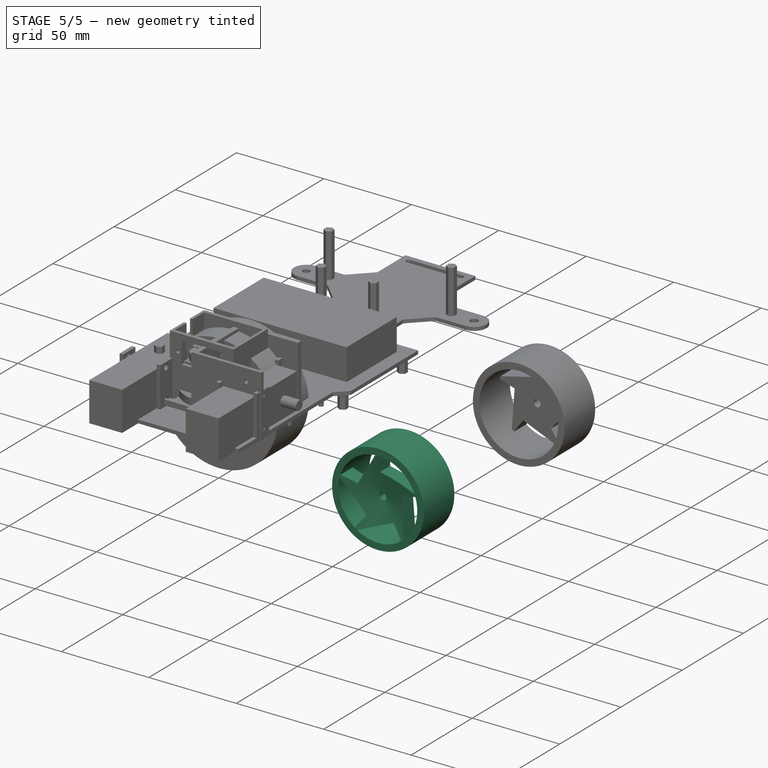
[diagram: stage 5 of 5 — iso view after this stage's code; geometry added in this stage tinted green]
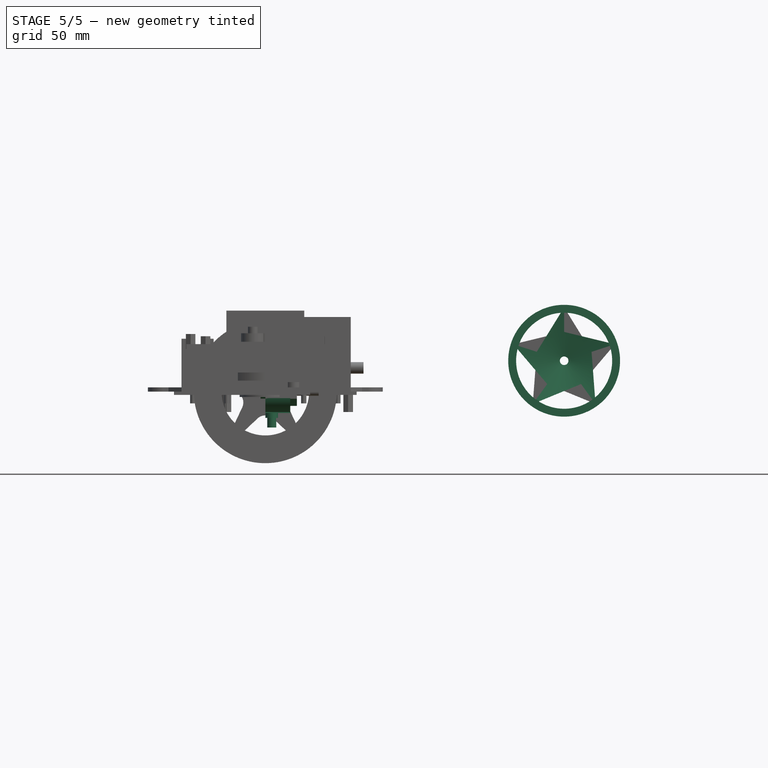
[diagram: stage 5 of 5 — front view after this stage's code; geometry added in this stage tinted green]
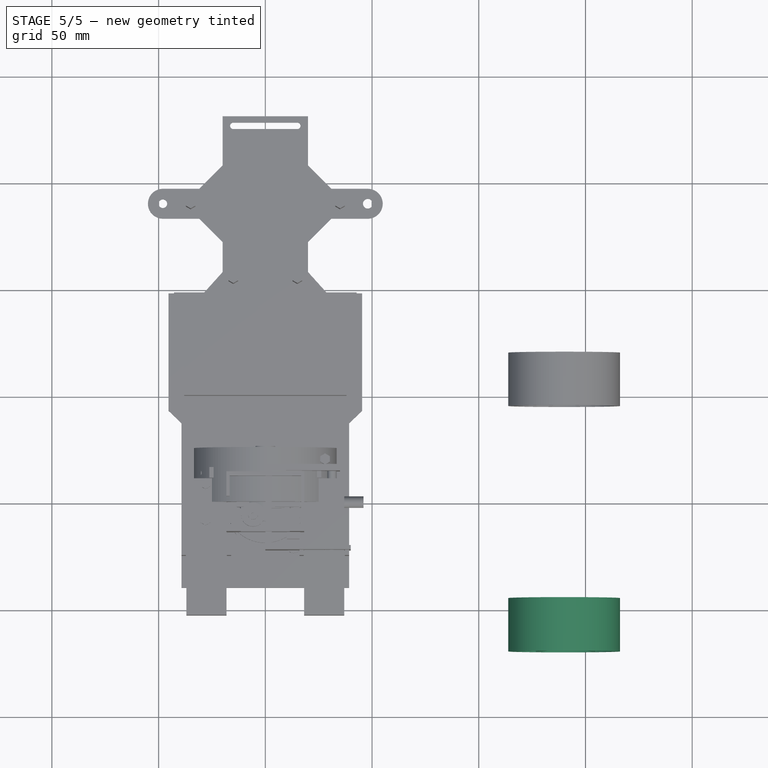
[diagram: stage 5 of 5 — top view after this stage's code; geometry added in this stage tinted green]
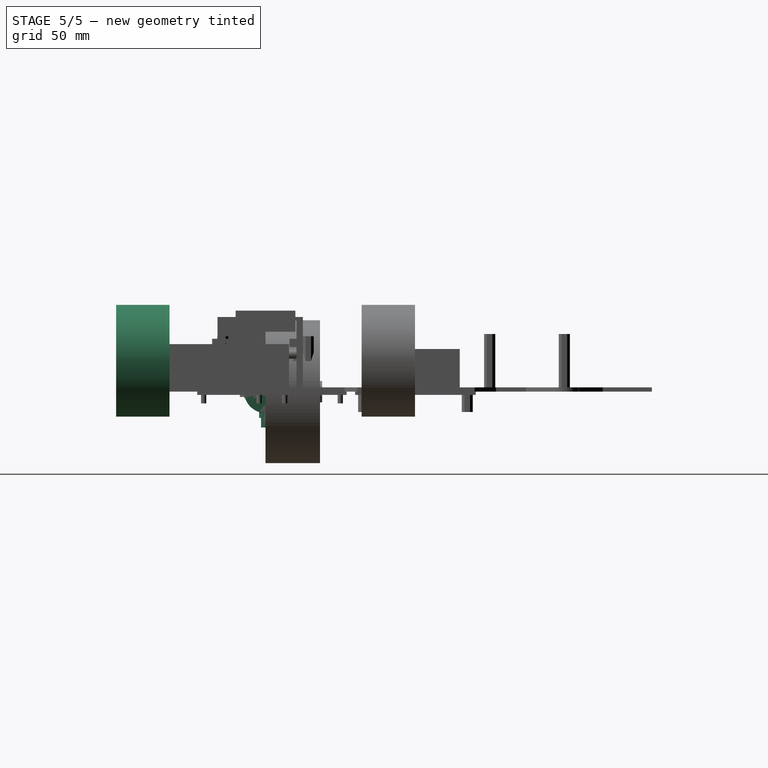
[diagram: stage 5 of 5 — right view after this stage's code; geometry added in this stage tinted green]
FEATURE [Sketcher::SketchObject] Sketch056
  FullyConstrained = true
  MapMode = 5
  Placement = pos=(0,0,0) rot=(1,0,0;1.5708rad)
  Support = -> [XZ_Plane020]
  sketch-geometry (2):
    g0: Circle CenterX=0 CenterY=0 CenterZ=0 NormalX=0 NormalY=0 NormalZ=1 AngleXU=0 Radius=26.2
    g1: Circle CenterX=0 CenterY=0 CenterZ=0 NormalX=0 NormalY=0 NormalZ=1 AngleXU=0 Radius=22.5
  constraints (4):
    c: Coincident(g0,g-1)
    c: Diameter(g0) = 52.4
    c: Coincident(g1,g0)
    c: Diameter(g1) = 45
FEATURE [PartDesign::Pad] Pad051
  Direction = (1,1,1)
  Length = 25
  Length2 = 100
  Placement = pos=(0,0,0) rot=(1,0,0;1.5708rad)
  Profile = -> Sketch056
  Type = 0
FEATURE [Sketcher::SketchObject] Sketch057
  FullyConstrained = true
  MapMode = 5
  Placement = pos=(0,-25,-5.6e-15) rot=(1,0,0;1.5708rad)
  Support = -> [Pad051]
  sketch-geometry (27):
    g0: LineSegment StartX=0 StartY=25 StartZ=0 EndX=-23.7764 EndY=7.72542 EndZ=0
    g1: LineSegment StartX=-23.7764 StartY=7.72542 StartZ=0 EndX=-14.6946 EndY=-20.2254 EndZ=0
    g2: LineSegment StartX=-14.6946 StartY=-20.2254 StartZ=0 EndX=14.6946 EndY=-20.2254 EndZ=0
    g3: LineSegment StartX=14.6946 StartY=-20.2254 StartZ=0 EndX=23.7764 EndY=7.72542 EndZ=0
    g4: LineSegment StartX=23.7764 StartY=7.72542 StartZ=0 EndX=0 EndY=25 EndZ=0
    g5: Circle CenterX=0 CenterY=0 CenterZ=0 NormalX=0 NormalY=0 NormalZ=1 AngleXU=0 Radius=25
    g6: Circle CenterX=0 CenterY=0 CenterZ=0 NormalX=0 NormalY=0 NormalZ=1 AngleXU=0 Radius=13.5
    g7: LineSegment StartX=23.7764 StartY=7.72542 StartZ=0 EndX=-23.7764 EndY=-7.72542 EndZ=0
    g8: LineSegment StartX=14.6946 StartY=-20.2254 StartZ=0 EndX=-14.6946 EndY=20.2254 EndZ=0
    g9: LineSegment StartX=-14.6946 StartY=-20.2254 StartZ=0 EndX=14.6946 EndY=20.2254 EndZ=0
    g10: LineSegment StartX=-23.7764 StartY=7.72542 StartZ=0 EndX=23.7764 EndY=-7.72542 EndZ=0
    g11: LineSegment StartX=23.7764 StartY=7.72542 StartZ=0 EndX=12.8393 EndY=4.17173 EndZ=0
    g12: LineSegment StartX=0 StartY=25 StartZ=0 EndX=-1.8e-15 EndY=13.5 EndZ=0
    g13: LineSegment StartX=-23.7764 StartY=7.72542 StartZ=0 EndX=-12.8393 EndY=4.17173 EndZ=0
    g14: LineSegment StartX=0 StartY=25 StartZ=0 EndX=-12.8393 EndY=4.17173 EndZ=0
    g15: LineSegment StartX=-14.6946 StartY=-20.2254 StartZ=0 EndX=-7.9351 EndY=-10.9217 EndZ=0
    g16: LineSegment StartX=14.6946 StartY=-20.2254 StartZ=0 EndX=7.9351 EndY=-10.9217 EndZ=0
    g17: LineSegment StartX=-23.7764 StartY=7.72542 StartZ=0 EndX=-7.9351 EndY=-10.9217 EndZ=0
    g18: LineSegment StartX=-14.6946 StartY=-20.2254 StartZ=0 EndX=7.9351 EndY=-10.9217 EndZ=0
    g19: LineSegment StartX=14.6946 StartY=-20.2254 StartZ=0 EndX=12.8393 EndY=4.17173 EndZ=0
    g20: LineSegment StartX=23.7764 StartY=7.72542 StartZ=0 EndX=-3.6e-15 EndY=13.5 EndZ=0
    g21: Circle CenterX=0 CenterY=0 CenterZ=0 NormalX=0 NormalY=0 NormalZ=1 AngleXU=0 Radius=2
    g22: LineSegment StartX=-23.7764 StartY=7.72542 StartZ=0 EndX=7.9351 EndY=-10.9217 EndZ=0
    g23: LineSegment StartX=-14.6946 StartY=-20.2254 StartZ=0 EndX=12.8393 EndY=4.17173 EndZ=0
    g24: LineSegment StartX=14.6946 StartY=-20.2254 StartZ=0 EndX=-1.8e-15 EndY=13.5 EndZ=0
    g25: LineSegment StartX=23.7764 StartY=7.72542 StartZ=0 EndX=-12.8393 EndY=4.17173 EndZ=0
    g26: LineSegment StartX=0 StartY=25 StartZ=0 EndX=-7.9351 EndY=-10.9217 EndZ=0
  constraints (65):
    c: Coincident(g0,g1)
    c: Coincident(g1,g2)
    c: Coincident(g2,g3)
    c: Coincident(g3,g4)
    c: Coincident(g4,g0)
    c: Equal(g0, g1-g4) x4
    c: PointOnObject(g0,g5)
    c: PointOnObject(g1,g5)
    c: PointOnObject(g2,g5)
    c: PointOnObject(g3,g5)
    c: PointOnObject(g4,g5)
    c: Coincident(g5,g-1)
    c: PointOnObject(g4,g-2)
    c: Diameter(g5) = 50
    c: Coincident(g6,g-1)
    c: Diameter(g6) = 27
    c: Coincident(g7,g3)
    c: PointOnObject(g7,g5)
    c: Coincident(g8,g2)
    c: PointOnObject(g8,g5)
    c: Coincident(g9,g1)
    c: PointOnObject(g9,g5)
    c: Coincident(g10,g0)
    c: PointOnObject(g10,g5)
    c: Perpendicular(g3,g10)
    c: Perpendicular(g9,g4)
    c: Perpendicular(g0,g8)
    c: Perpendicular(g7,g1)
    c: Coincident(g11,g3)
    c: PointOnObject(g11,g7)
    c: PointOnObject(g11,g6)
    c: Coincident(g12,g0)
    c: PointOnObject(g12,g-2)
    c: PointOnObject(g12,g6)
    c: Coincident(g13,g0)
    c: PointOnObject(g13,g10)
    c: PointOnObject(g13,g6)
    c: Coincident(g14,g12)
    c: Coincident(g14,g13)
    c: Coincident(g15,g1)
    c: PointOnObject(g15,g9)
    c: Coincident(g16,g2)
    c: PointOnObject(g16,g8)
    c: PointOnObject(g15,g6)
    c: PointOnObject(g16,g6)
    c: Coincident(g17,g13)
    c: Coincident(g17,g15)
    c: Coincident(g18,g15)
    c: Coincident(g18,g16)
    c: Coincident(g19,g16)
    c: Coincident(g19,g11)
    c: Coincident(g20,g11)
    c: Coincident(g20,g12)
    c: Coincident(g21,g-1)
    c: Diameter(g21) = 4
    c: Coincident(g22,g13)
    c: Coincident(g22,g16)
    c: Coincident(g23,g15)
    c: Coincident(g23,g11)
    c: Coincident(g24,g16)
    c: Coincident(g24,g12)
    c: Coincident(g25,g11)
    c: Coincident(g25,g13)
    c: Coincident(g26,g12)
    c: Coincident(g26,g15)
FEATURE [PartDesign::Pad] Pad052
  BaseFeature = -> Pad051
  Direction = (1,1,1)
  Length = 10
  Length2 = 100
  Placement = pos=(0,0,0) rot=(1,0,0;1.5708rad)
  Profile = -> Sketch057
  Reversed = true
  Type = 0
FEATURE [PartDesign::Body] Body020  label="WheelFrontRightRaw"
  Group = -> [Sketch056,Pad051,Sketch057,Pad052]
  Origin = -> Origin020
  Placement = pos=(140,-45,14.5) rot=(0,0,1;0rad)
  Tip = -> Pad052
FEATURE [Part::Cone] Cone
  Angle = 360
  AttacherType = Attacher::AttachEngine3D
  Height = 5
  Placement = pos=(140,-65.95,14.5) rot=(1,0,0;1.5708rad)
  Radius1 = 2
  Radius2 = 27.1
FEATURE [PartDesign::Body] Body021  label="WheelFrontRightRaw001"
  Group = -> [Sketch059,Pad053,Sketch058,Pad054]
  Origin = -> Origin021
  Placement = pos=(140,-45,14.5) rot=(0,0,1;0rad)
  Tip = -> Pad054
FEATURE [Sketcher::SketchObject] Sketch040
  FullyConstrained = true
  MapMode = 5
  Placement = pos=(0,0,0) rot=(0.57735,0.57735,0.57735;2.0944rad)
  Support = -> [YZ_Plane015]
  sketch-geometry (2):
    g0: Circle CenterX=0 CenterY=0 CenterZ=0 NormalX=0 NormalY=0 NormalZ=1 AngleXU=0 Radius=5.25
    g1: Circle CenterX=0 CenterY=0 CenterZ=0 NormalX=0 NormalY=0 NormalZ=1 AngleXU=0 Radius=2.07
  constraints (4):
    c: Coincident(g0,g-1)
    c: Diameter(g0) = 10.5
    c: Coincident(g1,g0)
    c: Diameter(g1) = 4.14
FEATURE [PartDesign::Pad] Pad004  label="SupportCylinderPad"
  Direction = (1,1,1)
  Length = 7
  Length2 = 100
  Placement = pos=(0,0,0) rot=(0.57735,0.57735,0.57735;2.0944rad)
  Profile = -> Sketch040
  Type = 0
FEATURE [Sketcher::SketchObject] Sketch048  label="HexagoneSketch"
  FullyConstrained = true
  MapMode = 5
  Placement = pos=(0,0,0) rot=(-0.57735,-0.57735,0.57735;2.0944rad)
  Support = -> [Pad004]
  sketch-geometry (1):
    g0: Circle CenterX=0 CenterY=0 CenterZ=0 NormalX=0 NormalY=0 NormalZ=1 AngleXU=0 Radius=6.625
  constraints (2):
    c: Coincident(g0,g-1)
    c: Diameter(g0) = 13.25
FEATURE [Sketcher::SketchObject] Sketch045
  ExternalGeometry = -> [Sketch048,Pad004]
  FullyConstrained = true
  MapMode = 5
  Placement = pos=(7,-3.1e-15,1.6e-15) rot=(0.57735,0.57735,0.57735;2.0944rad)
  Support = -> [Pad004]
  sketch-geometry (8):
    g0: LineSegment StartX=0 StartY=6.625 StartZ=0 EndX=-5.73742 EndY=3.3125 EndZ=0
    g1: LineSegment StartX=-5.73742 StartY=3.3125 StartZ=0 EndX=-5.73742 EndY=-3.3125 EndZ=0
    g2: LineSegment StartX=-5.73742 StartY=-3.3125 StartZ=0 EndX=0 EndY=-6.625 EndZ=0
    g3: LineSegment StartX=0 StartY=-6.625 StartZ=0 EndX=5.73742 EndY=-3.3125 EndZ=0
    g4: LineSegment StartX=5.73742 StartY=-3.3125 StartZ=0 EndX=5.73742 EndY=3.3125 EndZ=0
    g5: LineSegment StartX=5.73742 StartY=3.3125 StartZ=0 EndX=0 EndY=6.625 EndZ=0
    g6: Circle CenterX=0 CenterY=0 CenterZ=0 NormalX=0 NormalY=0 NormalZ=1 AngleXU=0 Radius=6.625
    g7: Circle CenterX=0 CenterY=0 CenterZ=0 NormalX=0 NormalY=0 NormalZ=1 AngleXU=0 Radius=2.07
  constraints (18):
    c: Coincident(g0,g1)
    c: Coincident(g1,g2)
    c: Coincident(g2,g3)
    c: Coincident(g3,g4)
    c: Coincident(g4,g5)
    c: Coincident(g5,g0)
    c: Equal(g0, g1-g5) x5
    c: PointOnObject(g0,g6)
    c: PointOnObject(g1,g6)
    c: PointOnObject(g2,g6)
    c: PointOnObject(g3,g6)
    c: PointOnObject(g4,g6)
    c: PointOnObject(g5,g6)
    c: Coincident(g6,g-1)
    c: PointOnObject(g5,g-3)
    c: DistanceX(g-1,g0) = 0
    c: Coincident(g7,g-1)
    c: Tangent(g7,g-4)
FEATURE [PartDesign::Pad] Pad034  label="SupportHexagonePad"
  BaseFeature = -> Pad004
  Direction = (1,1,1)
  Length = 7.8
  Length2 = 100
  Placement = pos=(0,0,0) rot=(0.57735,0.57735,0.57735;2.0944rad)
  Profile = -> Sketch045
  Type = 0
FEATURE [Sketcher::SketchObject] Sketch044
  FullyConstrained = true
  MapMode = 5
  Placement = pos=(0,0,0) rot=(-0.57735,-0.57735,0.57735;2.0944rad)
  Support = -> [Pad034]
  sketch-geometry (2):
    g0: Circle CenterX=0 CenterY=0 CenterZ=0 NormalX=0 NormalY=0 NormalZ=1 AngleXU=0 Radius=3.165
    g1: Circle CenterX=0 CenterY=0 CenterZ=0 NormalX=0 NormalY=0 NormalZ=1 AngleXU=0 Radius=2.07
  constraints (4):
    c: Coincident(g0,g-1)
    c: Diameter(g0) = 6.33
    c: Coincident(g1,g0)
    c: Diameter(g1) = 4.14
FEATURE [PartDesign::Pad] Pad043
  BaseFeature = -> Pad034
  Direction = (1,1,1)
  Length = 0.8
  Length2 = 100
  Placement = pos=(0,0,0) rot=(0.57735,0.57735,0.57735;2.0944rad)
  Profile = -> Sketch044
  Type = 0
FEATURE [PartDesign::Body] Body014  label="Support"
  Group = -> [Sketch040,Pad004,Sketch048,Sketch045,Pad034,Sketch044,Pad043]
  Origin = -> Origin017
  Placement = pos=(140,-50,14.5) rot=(0,0,-1;1.5708rad)
  Tip = -> Pad043
FEATURE [Sketcher::SketchObject] Sketch042
  FullyConstrained = true
  MapMode = 5
  Placement = pos=(0,0,0) rot=(0.57735,0.57735,0.57735;2.0944rad)
  Support = -> [YZ_Plane016]
  sketch-geometry (2):
    g0: Circle CenterX=0 CenterY=0 CenterZ=0 NormalX=0 NormalY=0 NormalZ=1 AngleXU=0 Radius=6.25
    g1: Circle CenterX=0 CenterY=0 CenterZ=0 NormalX=0 NormalY=0 NormalZ=1 AngleXU=0 Radius=2.07
  constraints (4):
    c: Coincident(g0,g-1)
    c: Diameter(g0) = 12.5
    c: Coincident(g1,g0)
    c: Diameter(g1) = 4.14
FEATURE [PartDesign::Pad] Pad048
  Direction = (1,1,1)
  Length = 1
  Length2 = 100
  Placement = pos=(0,0,0) rot=(0.57735,0.57735,0.57735;2.0944rad)
  Profile = -> Sketch042
  Type = 0
FEATURE [Sketcher::SketchObject] Sketch052
  ExternalGeometry = -> [Pad048]
  FullyConstrained = true
  MapMode = 5
  Placement = pos=(1,-4e-16,2e-16) rot=(0.57735,0.57735,0.57735;2.0944rad)
  Support = -> [Pad048]
  sketch-geometry (2):
    g0: Circle CenterX=0 CenterY=0 CenterZ=0 NormalX=0 NormalY=0 NormalZ=1 AngleXU=0 Radius=5.5
    g1: Circle CenterX=0 CenterY=0 CenterZ=0 NormalX=0 NormalY=0 NormalZ=1 AngleXU=0 Radius=2.07
  constraints (4):
    c: Coincident(g0,g-1)
    c: Diameter(g0) = 11
    c: Coincident(g1,g0)
    c: Tangent(g1,g-3)
FEATURE [PartDesign::Pad] Pad045
  BaseFeature = -> Pad048
  Direction = (1,1,1)
  Length = 3
  Length2 = 100
  Placement = pos=(0,0,0) rot=(0.57735,0.57735,0.57735;2.0944rad)
  Profile = -> Sketch052
  Type = 0
FEATURE [PartDesign::Body] Body015  label="Bearing"
  Group = -> [Sketch042,Pad048,Sketch052,Pad045]
  Origin = -> Origin014
  Placement = pos=(140,-45,14.5) rot=(0,0,-1;1.5708rad)
  Tip = -> Pad045
FEATURE [Sketcher::SketchObject] Sketch041
  FullyConstrained = true
  MapMode = 5
  Placement = pos=(0,0,0) rot=(0.57735,0.57735,0.57735;2.0944rad)
  Support = -> [YZ_Plane014]
  sketch-geometry (17):
    g0: ArcOfCircle CenterX=0 CenterY=0 CenterZ=0 NormalX=0 NormalY=0 NormalZ=1 AngleXU=0 Radius=10 StartAngle=1.87549 EndAngle=2.8369
    g1: Circle CenterX=0 CenterY=0 CenterZ=0 NormalX=0 NormalY=0 NormalZ=1 AngleXU=0 Radius=6.475
    g2: LineSegment StartX=-3 StartY=10 StartZ=0 EndX=3 EndY=10 EndZ=0
    g3: LineSegment StartX=-3 StartY=-10 StartZ=0 EndX=3 EndY=-10 EndZ=0
    g4: LineSegment StartX=-3 StartY=10 StartZ=0 EndX=-3 EndY=9.53939 EndZ=0
    g5: LineSegment StartX=3 StartY=10 StartZ=0 EndX=3 EndY=9.53939 EndZ=0
    g6: LineSegment StartX=-3 StartY=-10 StartZ=0 EndX=-3 EndY=-9.53939 EndZ=0
    g7: LineSegment StartX=3 StartY=-10 StartZ=0 EndX=3 EndY=-9.53939 EndZ=0
    g8: ArcOfCircle CenterX=0 CenterY=0 CenterZ=0 NormalX=0 NormalY=0 NormalZ=1 AngleXU=0 Radius=10 StartAngle=5.01708 EndAngle=5.97849
    g9: LineSegment StartX=-10 StartY=3 StartZ=0 EndX=-10 EndY=-3 EndZ=0
    g10: LineSegment StartX=10 StartY=3 StartZ=0 EndX=10 EndY=-3 EndZ=0
    g11: LineSegment StartX=-10 StartY=3 StartZ=0 EndX=-9.53939 EndY=3 EndZ=0
    g12: LineSegment StartX=-10 StartY=-3 StartZ=0 EndX=-9.53939 EndY=-3 EndZ=0
    g13: LineSegment StartX=10 StartY=3 StartZ=0 EndX=9.53939 EndY=3 EndZ=0
    g14: LineSegment StartX=10 StartY=-3 StartZ=0 EndX=9.53939 EndY=-3 EndZ=0
    g15: ArcOfCircle CenterX=0 CenterY=0 CenterZ=0 NormalX=0 NormalY=0 NormalZ=1 AngleXU=0 Radius=10 StartAngle=3.44629 EndAngle=4.4077
    g16: ArcOfCircle CenterX=0 CenterY=0 CenterZ=0 NormalX=0 NormalY=0 NormalZ=1 AngleXU=0 Radius=10 StartAngle=0.304693 EndAngle=1.2661
  constraints (46):
    c: Coincident(g0,g-1)
    c: Diameter(g0) = 20
    c: Coincident(g1,g0)
    c: Diameter(g1) = 12.95
    c: Symmetric(g2,g2,g-2)
    c: Horizontal(g3)
    c: DistanceY(g-1,g2) = 10
    c: Coincident(g4,g2)
    c: Vertical(g4)
    c: Coincident(g5,g2)
    c: Vertical(g5)
    c: Coincident(g6,g3)
    c: Vertical(g6)
    c: Coincident(g7,g3)
    c: Vertical(g7)
    c: Vertical(g2,g3)
    c: Coincident(g4,g0)
    c: Coincident(g5,g16)
    c: Symmetric(g2,g3,g-1)
    c: Equal(g0,g8)
    c: Coincident(g0,g8)
    c: Coincident(g6,g15)
    c: Coincident(g7,g8)
    c: DistanceX(g2,g2) = 6
    c: Vertical(g10)
    c: Symmetric(g9,g10,g-2)
    c: DistanceY(g9,g9) = 6
    c: Symmetric(g9,g9,g-1)
    c: Horizontal(g9,g10)
    c: Coincident(g11,g9)
    c: Horizontal(g11)
    c: Coincident(g12,g9)
    c: Horizontal(g12)
    c: Coincident(g13,g10)
    c: Horizontal(g13)
    c: Coincident(g14,g10)
    c: Horizontal(g14)
    c: Equal(g0,g15)
    c: Coincident(g0,g15)
    c: Equal(g8,g16)
    c: Coincident(g8,g16)
    c: Coincident(g0,g11)
    c: Coincident(g15,g12)
    c: Coincident(g13,g16)
    c: Coincident(g14,g8)
    c: DistanceX(g9,g-1) = 10
FEATURE [PartDesign::Pad] Pad047
  Direction = (1,1,1)
  Length = 1.2
  Length2 = 100
  Placement = pos=(0,0,0) rot=(0.57735,0.57735,0.57735;2.0944rad)
  Profile = -> Sketch041
  Type = 0
FEATURE [Sketcher::SketchObject] Sketch017
  ExternalGeometry = -> [Pad047]
  FullyConstrained = true
  MapMode = 5
  Placement = pos=(1.2,-5e-16,3e-16) rot=(0.57735,0.57735,0.57735;2.0944rad)
  Support = -> [Pad047]
  sketch-geometry (17):
    g0: ArcOfCircle CenterX=-7e-16 CenterY=7e-16 CenterZ=0 NormalX=0 NormalY=0 NormalZ=1 AngleXU=0 Radius=10 StartAngle=3.44629 EndAngle=4.4077
    g1: LineSegment StartX=-3 StartY=10 StartZ=0 EndX=3 EndY=10 EndZ=0
    g2: LineSegment StartX=10 StartY=3 StartZ=0 EndX=10 EndY=-3 EndZ=0
    g3: LineSegment StartX=-10 StartY=3 StartZ=0 EndX=-10 EndY=-3 EndZ=0
    g4: LineSegment StartX=-3 StartY=-10 StartZ=0 EndX=3 EndY=-10 EndZ=0
    g5: LineSegment StartX=-3 StartY=10 StartZ=0 EndX=-3 EndY=9.53939 EndZ=0
    g6: LineSegment StartX=3 StartY=10 StartZ=0 EndX=3 EndY=9.53939 EndZ=0
    g7: LineSegment StartX=10 StartY=3 StartZ=0 EndX=9.53939 EndY=3 EndZ=0
    g8: LineSegment StartX=10 StartY=-3 StartZ=0 EndX=9.53939 EndY=-3 EndZ=0
    g9: LineSegment StartX=-10 StartY=3 StartZ=0 EndX=-9.53939 EndY=3 EndZ=0
    g10: LineSegment StartX=-10 StartY=-3 StartZ=0 EndX=-9.53939 EndY=-3 EndZ=0
    g11: LineSegment StartX=-3 StartY=-10 StartZ=0 EndX=-3 EndY=-9.53939 EndZ=0
    g12: LineSegment StartX=3 StartY=-10 StartZ=0 EndX=3 EndY=-9.53939 EndZ=0
    g13: Circle CenterX=-7e-16 CenterY=7e-16 CenterZ=0 NormalX=0 NormalY=0 NormalZ=1 AngleXU=0 Radius=5.6
    g14: ArcOfCircle CenterX=-7e-16 CenterY=7e-16 CenterZ=0 NormalX=0 NormalY=0 NormalZ=1 AngleXU=0 Radius=10 StartAngle=1.87549 EndAngle=2.8369
    g15: ArcOfCircle CenterX=2e-16 CenterY=-3e-16 CenterZ=0 NormalX=0 NormalY=0 NormalZ=1 AngleXU=0 Radius=10 StartAngle=0.304693 EndAngle=1.2661
    g16: ArcOfCircle CenterX=1e-15 CenterY=0 CenterZ=0 NormalX=0 NormalY=0 NormalZ=1 AngleXU=0 Radius=10 StartAngle=5.01708 EndAngle=5.97849
  constraints (43):
    c: DistanceX(g1,g1) = 6
    c: DistanceY(g3,g3) = 6
    c: Diameter(g13) = 11.2
    c: Diameter(g15) = 20
    c: Vertical(g5)
    c: Vertical(g6)
    c: Horizontal(g9)
    c: Horizontal(g10)
    c: Symmetric(g3,g2,g-2)
    c: Symmetric(g4,g1,g-1)
    c: Coincident(g9,g14)
    c: Coincident(g9,g3)
    c: Symmetric(g1,g4,g-1)
    c: Symmetric(g3,g2,g-2)
    c: Coincident(g3,g10)
    c: Coincident(g0,g10)
    c: Coincident(g0,g11)
    c: Coincident(g4,g11)
    c: Coincident(g4,g12)
    c: Coincident(g16,g12)
    c: Coincident(g14,g0)
    c: Coincident(g8,g16)
    c: Coincident(g8,g2)
    c: Vertical(g3)
    c: Horizontal(g1)
    c: Coincident(g7,g2)
    c: Coincident(g15,g7)
    c: Coincident(g15,g6)
    c: Coincident(g6,g1)
    c: Coincident(g5,g1)
    c: Coincident(g5,g14)
    c: DistanceY(g0,g1) = 10
    c: Coincident(g3,g-7)
    c: DistanceX(g3,g0) = 10
    c: Diameter(g14) = 20
    c: Diameter(g0) = 20
    c: Diameter(g16) = 20
    c: Symmetric(g5,g0,g-1)
    c: Symmetric(g12,g6,g-1)
    c: Symmetric(g5,g6,g-2)
    c: Symmetric(g0,g8,g-2)
    c: Symmetric(g7,g9,g-2)
    c: Coincident(g0,g13)
FEATURE [PartDesign::Pad] Pad036
  BaseFeature = -> Pad047
  Direction = (1,1,1)
  Length = 10.5
  Length2 = 100
  Placement = pos=(0,0,0) rot=(0.57735,0.57735,0.57735;2.0944rad)
  Profile = -> Sketch017
  Type = 0
FEATURE [Sketcher::SketchObject] Sketch018
  FullyConstrained = true
  MapMode = 5
  Placement = pos=(-4.4e-15,2.2e-15,10) rot=(0,0,-1;1.5708rad)
  Support = -> [Pad036]
  sketch-geometry (1):
    g0: Circle CenterX=0 CenterY=3 CenterZ=0 NormalX=0 NormalY=0 NormalZ=1 AngleXU=0 Radius=3
  constraints (3):
    c: PointOnObject(g0,g-2)
    c: Diameter(g0) = 6
    c: DistanceY(g-1,g0) = 3
FEATURE [PartDesign::Pad] Pad037
  BaseFeature = -> Pad036
  Direction = (1,1,1)
  Length = 2.25
  Length2 = 100
  Placement = pos=(0,0,0) rot=(0.57735,0.57735,0.57735;2.0944rad)
  Profile = -> Sketch018
  Type = 0
FEATURE [Sketcher::SketchObject] Sketch038
  ExternalGeometry = -> [Pad037]
  FullyConstrained = true
  MapMode = 5
  Placement = pos=(-4.2e-15,7.3e-15,12.25) rot=(0,0,-1;1.5708rad)
  Support = -> [Pad037]
  sketch-geometry (1):
    g0: Circle CenterX=3.6e-15 CenterY=3 CenterZ=0 NormalX=0 NormalY=0 NormalZ=1 AngleXU=0 Radius=2.125
  constraints (2):
    c: Coincident(g0,g-3)
    c: Diameter(g0) = 4.25
FEATURE [PartDesign::Pad] Pad040
  BaseFeature = -> Pad037
  Direction = (1,1,1)
  Length = 4.5
  Length2 = 100
  Placement = pos=(0,0,0) rot=(0.57735,0.57735,0.57735;2.0944rad)
  Profile = -> Sketch038
  Type = 0
FEATURE [Sketcher::SketchObject] Sketch039
  ExternalGeometry = -> [Pad040]
  FullyConstrained = true
  MapMode = 5
  Placement = pos=(6.7e-15,-4.4e-15,-10) rot=(0.707107,0.707107,0;3.14159rad)
  Support = -> [Pad040]
  sketch-geometry (1):
    g0: Circle CenterX=-1.32e-14 CenterY=3 CenterZ=0 NormalX=0 NormalY=0 NormalZ=1 AngleXU=0 Radius=3
  constraints (2):
    c: Coincident(g0,g-3)
    c: Tangent(g0,g-3)
FEATURE [PartDesign::Pad] Pad038
  BaseFeature = -> Pad040
  Direction = (1,1,1)
  Length = 2.25
  Length2 = 100
  Placement = pos=(0,0,0) rot=(0.57735,0.57735,0.57735;2.0944rad)
  Profile = -> Sketch039
  Type = 0
FEATURE [Sketcher::SketchObject] Sketch034
  ExternalGeometry = -> [Pad038]
  FullyConstrained = true
  MapMode = 5
  Placement = pos=(1.26e-14,-7.3e-15,-12.25) rot=(0.707107,0.707107,0;3.14159rad)
  Support = -> [Pad038]
  sketch-geometry (1):
    g0: Circle CenterX=-1.31e-14 CenterY=3 CenterZ=0 NormalX=0 NormalY=0 NormalZ=1 AngleXU=0 Radius=2.125
  constraints (2):
    c: Coincident(g0,g-3)
    c: Tangent(g0,g-3)
FEATURE [PartDesign::Pad] Pad039
  BaseFeature = -> Pad038
  Direction = (1,1,1)
  Length = 4.5
  Length2 = 100
  Placement = pos=(0,0,0) rot=(0.57735,0.57735,0.57735;2.0944rad)
  Profile = -> Sketch034
  Type = 0
FEATURE [Sketcher::SketchObject] Sketch047
  FullyConstrained = true
  MapMode = 5
  Placement = pos=(-1.55e-14,-10,4.4e-15) rot=(-0.57735,-0.57735,0.57735;4.18879rad)
  Support = -> [Pad039]
  sketch-geometry (4):
    g0: LineSegment StartX=-1.5 StartY=6 StartZ=0 EndX=1.5 EndY=6 EndZ=0
    g1: LineSegment StartX=1.5 StartY=6 StartZ=0 EndX=1.5 EndY=0 EndZ=0
    g2: LineSegment StartX=1.5 StartY=0 StartZ=0 EndX=-1.5 EndY=0 EndZ=0
    g3: LineSegment StartX=-1.5 StartY=0 StartZ=0 EndX=-1.5 EndY=6 EndZ=0
  constraints (11):
    c: Coincident(g0,g1)
    c: Coincident(g1,g2)
    c: Coincident(g2,g3)
    c: Coincident(g3,g0)
    c: Horizontal(g2)
    c: Vertical(g1)
    c: Vertical(g3)
    c: Horizontal(g2,g-1)
    c: Symmetric(g0,g0,g-2)
    c: DistanceX(g0,g0) = 3
    c: DistanceY(g3,g3) = 6
FEATURE [PartDesign::Pad] Pad044
  BaseFeature = -> Pad039
  Direction = (1,1,1)
  Length = 7
  Length2 = 100
  Placement = pos=(0,0,0) rot=(0.57735,0.57735,0.57735;2.0944rad)
  Profile = -> Sketch047
  Type = 0
FEATURE [Sketcher::SketchObject] Sketch036
  ExternalGeometry = -> [Pad044]
  FullyConstrained = true
  MapMode = 5
  Placement = pos=(-3e-16,2.3e-15,1.5) rot=(0,0,-1;1.5708rad)
  Support = -> [Pad044]
  sketch-geometry (1):
    g0: Circle CenterX=14.65 CenterY=3 CenterZ=0 NormalX=0 NormalY=0 NormalZ=1 AngleXU=0 Radius=2.125
  constraints (3):
    c: DistanceX(g-3,g0) = 4.65
    c: DistanceY(g-3,g0) = 3
    c: Diameter(g0) = 4.25
FEATURE [PartDesign::Pad] Pad042
  BaseFeature = -> Pad044
  Direction = (1,1,1)
  Length = 4.5
  Length2 = 100
  Placement = pos=(0,0,0) rot=(0.57735,0.57735,0.57735;2.0944rad)
  Profile = -> Sketch036
  Type = 0
FEATURE [Sketcher::SketchObject] Sketch051
  ExternalGeometry = -> [Pad042]
  FullyConstrained = true
  MapMode = 5
  Placement = pos=(2e-14,10,-6.7e-15) rot=(0.57735,0.57735,0.57735;4.18879rad)
  Support = -> [Pad042]
  sketch-geometry (4):
    g0: LineSegment StartX=-1.5 StartY=6 StartZ=0 EndX=1.5 EndY=6 EndZ=0
    g1: LineSegment StartX=1.5 StartY=6 StartZ=0 EndX=1.5 EndY=0 EndZ=0
    g2: LineSegment StartX=1.5 StartY=0 StartZ=0 EndX=-1.5 EndY=0 EndZ=0
    g3: LineSegment StartX=-1.5 StartY=0 StartZ=0 EndX=-1.5 EndY=6 EndZ=0
  constraints (10):
    c: Coincident(g0,g1)
    c: Coincident(g1,g2)
    c: Coincident(g2,g3)
    c: Coincident(g3,g0)
    c: Horizontal(g2)
    c: Vertical(g1)
    c: Vertical(g3)
    c: Coincident(g0,g-3)
    c: PointOnObject(g1,g-1)
    c: Coincident(g0,g-3)
FEATURE [PartDesign::Pad] Pad041
  BaseFeature = -> Pad042
  Direction = (1,1,1)
  Length = 7
  Length2 = 100
  Placement = pos=(0,0,0) rot=(0.57735,0.57735,0.57735;2.0944rad)
  Profile = -> Sketch051
  Type = 0
FEATURE [Sketcher::SketchObject] Sketch043
  ExternalGeometry = -> [Pad041]
  FullyConstrained = true
  MapMode = 5
  Placement = pos=(0,3.4e-15,1.5) rot=(0,0,-1;1.5708rad)
  Support = -> [Pad041]
  sketch-geometry (1):
    g0: Circle CenterX=-14.65 CenterY=3 CenterZ=0 NormalX=0 NormalY=0 NormalZ=1 AngleXU=0 Radius=2.125
  constraints (3):
    c: Diameter(g0) = 4.25
    c: DistanceY(g-3,g0) = 3
    c: DistanceX(g0,g-3) = 4.65
FEATURE [PartDesign::Pad] Pad033
  BaseFeature = -> Pad041
  Direction = (1,1,1)
  Length = 4.5
  Length2 = 100
  Placement = pos=(0,0,0) rot=(0.57735,0.57735,0.57735;2.0944rad)
  Profile = -> Sketch043
  Type = 0
FEATURE [Sketcher::SketchObject] Sketch037
  ExternalGeometry = -> [Pad033]
  FullyConstrained = true
  MapMode = 5
  Placement = pos=(0,0,0) rot=(-0.57735,-0.57735,0.57735;2.0944rad)
  Support = -> [Pad033]
  sketch-geometry (4):
    g0: LineSegment StartX=-12.5 StartY=-1.5 StartZ=0 EndX=-7.5 EndY=-1.5 EndZ=0
    g1: LineSegment StartX=-7.5 StartY=-1.5 StartZ=0 EndX=-7.5 EndY=-7.5 EndZ=0
    g2: LineSegment StartX=-7.5 StartY=-7.5 StartZ=0 EndX=-12.5 EndY=-7.5 EndZ=0
    g3: LineSegment StartX=-12.5 StartY=-7.5 StartZ=0 EndX=-12.5 EndY=-1.5 EndZ=0
  constraints (12):
    c: Coincident(g0,g1)
    c: Coincident(g1,g2)
    c: Coincident(g2,g3)
    c: Coincident(g3,g0)
    c: Horizontal(g0)
    c: Horizontal(g2)
    c: Vertical(g1)
    c: Vertical(g3)
    c: DistanceY(g0,g-1) = 1.5
    c: DistanceX(g0,g0) = 5
    c: DistanceY(g3,g3) = 6
    c: DistanceX(g0,g-1) = 12.5
FEATURE [Sketcher::SketchObject] Sketch046
  AttachmentOffset = pos=(0,0,-6) rot=(0,0,1;0rad)
  ExternalGeometry = -> [Sketch037]
  FullyConstrained = true
  MapMode = 5
  Placement = pos=(5.7,-1.46e-14,8.3e-15) rot=(0.57735,0.57735,0.57735;2.0944rad)
  Support = -> [Pad033]
  sketch-geometry (4):
    g0: LineSegment StartX=-12.5 StartY=1.5 StartZ=0 EndX=-10 EndY=1.5 EndZ=0
    g1: LineSegment StartX=-10 StartY=1.5 StartZ=0 EndX=-10 EndY=7.5 EndZ=0
    g2: LineSegment StartX=-10 StartY=7.5 StartZ=0 EndX=-12.5 EndY=7.5 EndZ=0
    g3: LineSegment StartX=-12.5 StartY=7.5 StartZ=0 EndX=-12.5 EndY=1.5 EndZ=0
  constraints (11):
    c: Coincident(g0,g1)
    c: Coincident(g1,g2)
    c: Coincident(g2,g3)
    c: Coincident(g3,g0)
    c: Horizontal(g0)
    c: Horizontal(g2)
    c: Vertical(g1)
    c: Vertical(g3)
    c: DistanceY(g-1,g0) = 1.5
    c: DistanceX(g0,g-1) = 10
    c: Coincident(g-3,g2)
FEATURE [PartDesign::SubtractiveLoft] SubtractiveLoft
  BaseFeature = -> Pad033
  Closed = false
  Placement = pos=(0,0,0) rot=(0.57735,0.57735,0.57735;2.0944rad)
  Profile = -> Sketch037
  Ruled = false
  Sections = -> [Sketch046]
FEATURE [Sketcher::SketchObject] Sketch049
  FullyConstrained = true
  MapMode = 5
  Placement = pos=(0,0,0) rot=(-0.57735,-0.57735,0.57735;2.0944rad)
  Support = -> [SubtractiveLoft]
  sketch-geometry (4):
    g0: LineSegment StartX=12.5 StartY=-7.5 StartZ=0 EndX=7.5 EndY=-7.5 EndZ=0
    g1: LineSegment StartX=7.5 StartY=-7.5 StartZ=0 EndX=7.5 EndY=-1.5 EndZ=0
    g2: LineSegment StartX=7.5 StartY=-1.5 StartZ=0 EndX=12.5 EndY=-1.5 EndZ=0
    g3: LineSegment StartX=12.5 StartY=-1.5 StartZ=0 EndX=12.5 EndY=-7.5 EndZ=0
  constraints (12):
    c: Coincident(g0,g1)
    c: Coincident(g1,g2)
    c: Coincident(g2,g3)
    c: Coincident(g3,g0)
    c: Horizontal(g0)
    c: Horizontal(g2)
    c: Vertical(g1)
    c: Vertical(g3)
    c: DistanceY(g1,g-1) = 1.5
    c: DistanceY(g3,g3) = 6
    c: DistanceX(g2,g2) = 5
    c: DistanceX(g-1,g2) = 12.5
FEATURE [Sketcher::SketchObject] Sketch050
  AttachmentOffset = pos=(0,0,-6) rot=(0,0,1;0rad)
  ExternalGeometry = -> [Sketch049]
  FullyConstrained = true
  MapMode = 5
  Placement = pos=(5.7,-1.59e-14,8.2e-15) rot=(0.57735,0.57735,0.57735;2.0944rad)
  Support = -> [SubtractiveLoft]
  sketch-geometry (4):
    g0: LineSegment StartX=10 StartY=7.5 StartZ=0 EndX=12.5 EndY=7.5 EndZ=0
    g1: LineSegment StartX=12.5 StartY=7.5 StartZ=0 EndX=12.5 EndY=1.5 EndZ=0
    g2: LineSegment StartX=12.5 StartY=1.5 StartZ=0 EndX=10 EndY=1.5 EndZ=0
    g3: LineSegment StartX=10 StartY=1.5 StartZ=0 EndX=10 EndY=7.5 EndZ=0
  constraints (11):
    c: Coincident(g0,g1)
    c: Coincident(g1,g2)
    c: Coincident(g2,g3)
    c: Coincident(g3,g0)
    c: Horizontal(g0)
    c: Horizontal(g2)
    c: Vertical(g1)
    c: Vertical(g3)
    c: Coincident(g-3,g0)
    c: DistanceX(g-1,g2) = 10
    c: DistanceY(g-1,g2) = 1.5
FEATURE [PartDesign::SubtractiveLoft] SubtractiveLoft001
  BaseFeature = -> SubtractiveLoft
  Closed = false
  Placement = pos=(0,0,0) rot=(0.57735,0.57735,0.57735;2.0944rad)
  Profile = -> Sketch049
  Ruled = false
  Sections = -> [Sketch050]
FEATURE [PartDesign::Body] Body016  label="Fuse"
  Group = -> [Sketch041,Pad047,Sketch017,Pad036,Sketch018,Pad037,Sketch038,Pad040,Sketch039,Pad038,Sketch034,Pad039,Sketch047,Pad044,Sketch036,Pad042,Sketch051,Pad041,Sketch043,Pad033,Sketch037,Sketch046,SubtractiveLoft,Sketch049,Sketch050,SubtractiveLoft001]
  Origin = -> Origin015
  Placement = pos=(140,-45,14.5) rot=(0,0,-1;1.5708rad)
  Tip = -> SubtractiveLoft001
FEATURE [Sketcher::SketchObject] Sketch053
  FullyConstrained = true
  MapMode = 5
  Placement = pos=(0,0,0) rot=(0.57735,0.57735,0.57735;2.0944rad)
  Support = -> [YZ_Plane017]
  sketch-geometry (1):
    g0: Circle CenterX=0 CenterY=0 CenterZ=0 NormalX=0 NormalY=0 NormalZ=1 AngleXU=0 Radius=1.9
  constraints (2):
    c: Coincident(g0,g-1)
    c: Diameter(g0) = 3.8
FEATURE [PartDesign::Pad] Pad046  label="CrewPad"
  Direction = (1,1,1)
  Length = 25
  Length2 = 100
  Placement = pos=(0,0,0) rot=(0.57735,0.57735,0.57735;2.0944rad)
  Profile = -> Sketch053
  Type = 0
FEATURE [Sketcher::SketchObject] Sketch035
  FullyConstrained = true
  MapMode = 5
  Placement = pos=(0,0,0) rot=(-0.57735,-0.57735,0.57735;2.0944rad)
  Support = -> [Pad046]
  sketch-geometry (1):
    g0: Circle CenterX=0 CenterY=0 CenterZ=0 NormalX=0 NormalY=0 NormalZ=1 AngleXU=0 Radius=3.25
  constraints (2):
    c: Coincident(g0,g-1)
    c: Diameter(g0) = 6.5
FEATURE [PartDesign::Pad] Pad035  label="CrewHeadPad"
  BaseFeature = -> Pad046
  Direction = (1,1,1)
  Length = 2.2
  Length2 = 100
  Placement = pos=(0,0,0) rot=(0.57735,0.57735,0.57735;2.0944rad)
  Profile = -> Sketch035
  Type = 0
FEATURE [PartDesign::Body] Body017  label="Crew"
  Group = -> [Sketch053,Pad046,Sketch035,Pad035]
  Origin = -> Origin016
  Placement = pos=(140,-45,14.5) rot=(0,0,-1;1.5708rad)
  Tip = -> Pad035
FEATURE [App::DocumentObjectGroup] Group008  label="SteeringRight"
  Group = -> [Body014,Body015,Body016,Body017]
FEATURE [App::DocumentObjectGroup] Group009  label="SteeringLeft"
FEATURE [Sketcher::SketchObject] Sketch085
  FullyConstrained = true
  MapMode = 5
  Placement = pos=(0,0,0) rot=(1,0,0;1.5708rad)
  Support = -> [XZ_Plane027]
  sketch-geometry (12):
    g0: LineSegment StartX=-11.4 StartY=23.4 StartZ=0 EndX=11.4 EndY=23.4 EndZ=0
    g1: LineSegment StartX=11.4 StartY=23.4 StartZ=0 EndX=11.4 EndY=19.4 EndZ=0
    g2: LineSegment StartX=11.4 StartY=0 StartZ=0 EndX=-11.4 EndY=0 EndZ=0
    g3: LineSegment StartX=-11.4 StartY=0 StartZ=0 EndX=-11.4 EndY=17 EndZ=0
    g4: LineSegment StartX=-16.1 StartY=19.4 StartZ=0 EndX=-11.4 EndY=19.4 EndZ=0
    g5: LineSegment StartX=16.1 StartY=19.4 StartZ=0 EndX=16.1 EndY=17 EndZ=0
    g6: LineSegment StartX=16.1 StartY=17 StartZ=0 EndX=11.4 EndY=17 EndZ=0
    g7: LineSegment StartX=-16.1 StartY=17 StartZ=0 EndX=-16.1 EndY=19.4 EndZ=0
    g8: LineSegment StartX=-11.4 StartY=19.4 StartZ=0 EndX=-11.4 EndY=23.4 EndZ=0
    g9: LineSegment StartX=11.4 StartY=17 StartZ=0 EndX=11.4 EndY=0 EndZ=0
    g10: LineSegment StartX=11.4 StartY=19.4 StartZ=0 EndX=16.1 EndY=19.4 EndZ=0
    g11: LineSegment StartX=-11.4 StartY=17 StartZ=0 EndX=-16.1 EndY=17 EndZ=0
  constraints (30):
    c: Coincident(g0,g1)
    c: Coincident(g9,g2)
    c: Coincident(g2,g3)
    c: Coincident(g8,g0)
    c: Horizontal(g0)
    c: Vertical(g1)
    c: Vertical(g3)
    c: Coincident(g10,g5)
    c: Coincident(g5,g6)
    c: Coincident(g11,g7)
    c: Coincident(g7,g4)
    c: Horizontal(g4)
    c: Vertical(g5)
    c: Vertical(g7)
    c: Tangent(g3,g8)
    c: Tangent(g1,g9)
    c: Coincident(g4,g8)
    c: Coincident(g10,g1)
    c: Tangent(g4,g10)
    c: Coincident(g6,g9)
    c: Coincident(g11,g3)
    c: Tangent(g6,g11)
    c: Symmetric(g2,g2,g-2)
    c: DistanceX(g2,g2) = 22.8
    c: Symmetric(g7,g5,g-2)
    c: DistanceX(g7,g5) = 32.2
    c: DistanceY(g2,g5) = 17
    c: DistanceY(g5,g5) = 2.4
    c: DistanceY(g5,g0) = 4
    c: PointOnObject(g-1,g2)
FEATURE [PartDesign::Pad] Pad075
  Direction = (1,1,1)
  Length = 12
  Length2 = 100
  Placement = pos=(0,0,0) rot=(1,0,0;1.5708rad)
  Profile = -> Sketch085
  Type = 0
FEATURE [Sketcher::SketchObject] Sketch086
  ExternalGeometry = -> [Pad075]
  FullyConstrained = true
  MapMode = 5
  Placement = pos=(0,-5.2e-15,23.4) rot=(0,0,1;3.14159rad)
  Support = -> [Pad075]
  sketch-geometry (3):
    g0: LineSegment StartX=-11.4 StartY=6 StartZ=0 EndX=11.4 EndY=6 EndZ=0
    g1: ArcOfCircle CenterX=5.75 CenterY=6 CenterZ=0 NormalX=0 NormalY=0 NormalZ=1 AngleXU=0 Radius=5.65 StartAngle=3.69212 EndAngle=8.87425
    g2: ArcOfCircle CenterX=0 CenterY=6 CenterZ=0 NormalX=0 NormalY=0 NormalZ=1 AngleXU=0 Radius=3.1 StartAngle=1.26449 EndAngle=5.0187
  constraints (12):
    c: PointOnObject(g0,g-3)
    c: PointOnObject(g0,g-4)
    c: Horizontal(g0)
    c: DistanceY(g-4,g0) = 6
    c: PointOnObject(g1,g0)
    c: Diameter(g1) = 11.3
    c: Tangent(g1,g-4)
    c: PointOnObject(g2,g0)
    c: PointOnObject(g2,g-2)
    c: Diameter(g2) = 6.2
    c: Coincident(g1,g2)
    c: Coincident(g1,g2)
FEATURE [PartDesign::Pad] Pad076
  BaseFeature = -> Pad075
  Direction = (1,1,1)
  Length = 4
  Length2 = 100
  Placement = pos=(0,0,0) rot=(1,0,0;1.5708rad)
  Profile = -> Sketch086
  Type = 0
FEATURE [Sketcher::SketchObject] Sketch087
  ExternalGeometry = -> [Pad076]
  FullyConstrained = true
  MapMode = 5
  Placement = pos=(-2.6e-15,-1.2e-14,27.4) rot=(0,0,1;3.14159rad)
  Support = -> [Pad076]
  sketch-geometry (2):
    g0: Circle CenterX=5.75 CenterY=6 CenterZ=0 NormalX=0 NormalY=0 NormalZ=1 AngleXU=0 Radius=2.4
    g1: Circle CenterX=5.75 CenterY=6 CenterZ=0 NormalX=0 NormalY=0 NormalZ=1 AngleXU=0 Radius=0.75
  constraints (4):
    c: Coincident(g0,g-3)
    c: Coincident(g1,g0)
    c: Diameter(g0) = 4.8
    c: Diameter(g1) = 1.5
FEATURE [PartDesign::Pad] Pad077
  BaseFeature = -> Pad076
  Direction = (1,1,1)
  Length = 3
  Length2 = 100
  Placement = pos=(0,0,0) rot=(1,0,0;1.5708rad)
  Profile = -> Sketch087
  Type = 0
FEATURE [Sketcher::SketchObject] Sketch004  label="SterringCopperSketch"
  ExternalGeometry = -> [Pad003]
  FullyConstrained = true
  MapMode = 5
  Placement = pos=(0,0,2) rot=(0,0,1;0rad)
  Support = -> [Pad003]
  sketch-geometry (28):
    g0: LineSegment StartX=-32.7483 StartY=141.3 StartZ=0 EndX=-35 EndY=142.6 EndZ=0
    g1: LineSegment StartX=-35 StartY=142.6 StartZ=0 EndX=-37.2517 EndY=141.3 EndZ=0
    g2: LineSegment StartX=-37.2517 StartY=141.3 StartZ=0 EndX=-37.2517 EndY=138.7 EndZ=0
    g3: LineSegment StartX=-37.2517 StartY=138.7 StartZ=0 EndX=-35 EndY=137.4 EndZ=0
    g4: LineSegment StartX=-35 StartY=137.4 StartZ=0 EndX=-32.7483 EndY=138.7 EndZ=0
    g5: LineSegment StartX=-32.7483 StartY=138.7 StartZ=0 EndX=-32.7483 EndY=141.3 EndZ=0
    g6: Circle CenterX=-35 CenterY=140 CenterZ=0 NormalX=0 NormalY=0 NormalZ=1 AngleXU=0 Radius=2.6
    g7: LineSegment StartX=32.7483 StartY=141.3 StartZ=0 EndX=32.7483 EndY=138.7 EndZ=0
    g8: LineSegment StartX=32.7483 StartY=138.7 StartZ=0 EndX=35 EndY=137.4 EndZ=0
    g9: LineSegment StartX=35 StartY=137.4 StartZ=0 EndX=37.2517 EndY=138.7 EndZ=0
    g10: LineSegment StartX=37.2517 StartY=138.7 StartZ=0 EndX=37.2517 EndY=141.3 EndZ=0
    g11: LineSegment StartX=37.2517 StartY=141.3 StartZ=0 EndX=35 EndY=142.6 EndZ=0
    g12: LineSegment StartX=35 StartY=142.6 StartZ=0 EndX=32.7483 EndY=141.3 EndZ=0
    g13: Circle CenterX=35 CenterY=140 CenterZ=0 NormalX=0 NormalY=0 NormalZ=1 AngleXU=0 Radius=2.6
    g14: LineSegment StartX=-12.7483 StartY=103.7 StartZ=0 EndX=-12.7483 EndY=106.3 EndZ=0
    g15: LineSegment StartX=-12.7483 StartY=106.3 StartZ=0 EndX=-15 EndY=107.6 EndZ=0
    g16: LineSegment StartX=-15 StartY=107.6 StartZ=0 EndX=-17.2517 EndY=106.3 EndZ=0
    g17: LineSegment StartX=-17.2517 StartY=106.3 StartZ=0 EndX=-17.2517 EndY=103.7 EndZ=0
    g18: LineSegment StartX=-17.2517 StartY=103.7 StartZ=0 EndX=-15 EndY=102.4 EndZ=0
    g19: LineSegment StartX=-15 StartY=102.4 StartZ=0 EndX=-12.7483 EndY=103.7 EndZ=0
    g20: Circle CenterX=-15 CenterY=105 CenterZ=0 NormalX=0 NormalY=0 NormalZ=1 AngleXU=0 Radius=2.6
    g21: LineSegment StartX=12.7483 StartY=106.3 StartZ=0 EndX=12.7483 EndY=103.7 EndZ=0
    g22: LineSegment StartX=12.7483 StartY=103.7 StartZ=0 EndX=15 EndY=102.4 EndZ=0
    g23: LineSegment StartX=15 StartY=102.4 StartZ=0 EndX=17.2517 EndY=103.7 EndZ=0
    g24: LineSegment StartX=17.2517 StartY=103.7 StartZ=0 EndX=17.2517 EndY=106.3 EndZ=0
    g25: LineSegment StartX=17.2517 StartY=106.3 StartZ=0 EndX=15 EndY=107.6 EndZ=0
    g26: LineSegment StartX=15 StartY=107.6 StartZ=0 EndX=12.7483 EndY=106.3 EndZ=0
    g27: Circle CenterX=15 CenterY=105 CenterZ=0 NormalX=0 NormalY=0 NormalZ=1 AngleXU=0 Radius=2.6
  constraints (66):
    c: Coincident(g0,g1)
    c: Coincident(g1,g2)
    c: Coincident(g2,g3)
    c: Coincident(g3,g4)
    c: Coincident(g4,g5)
    c: Coincident(g5,g0)
    c: Equal(g0, g1-g5) x5
    c: PointOnObject(g0,g6)
    c: PointOnObject(g1,g6)
    c: PointOnObject(g2,g6)
    c: PointOnObject(g3,g6)
    c: PointOnObject(g4,g6)
    c: PointOnObject(g5,g6)
    c: Coincident(g7,g8)
    c: Coincident(g8,g9)
    c: Coincident(g9,g10)
    c: Coincident(g10,g11)
    c: Coincident(g11,g12)
    c: Coincident(g12,g7)
    c: Equal(g7, g8-g12) x5
    c: PointOnObject(g7,g13)
    c: PointOnObject(g8,g13)
    c: PointOnObject(g9,g13)
    c: PointOnObject(g10,g13)
    c: PointOnObject(g11,g13)
    c: PointOnObject(g12,g13)
    c: Diameter(g6) = 5.2
    c: Diameter(g13) = 5.2
    c: Symmetric(g6,g13,g-2)
    c: DistanceX(g6,g13) = 70
    c: Vertical(g0,g6)
    c: Vertical(g11,g13)
    c: Coincident(g14,g15)
    c: Coincident(g15,g16)
    c: Coincident(g16,g17)
    c: Coincident(g17,g18)
    c: Coincident(g18,g19)
    c: Coincident(g19,g14)
    c: Equal(g14, g15-g19) x5
    c: PointOnObject(g14,g20)
    c: PointOnObject(g15,g20)
    c: PointOnObject(g16,g20)
    c: PointOnObject(g17,g20)
    c: PointOnObject(g18,g20)
    c: PointOnObject(g19,g20)
    c: Coincident(g21,g22)
    c: Coincident(g22,g23)
    c: Coincident(g23,g24)
    c: Coincident(g24,g25)
    c: Coincident(g25,g26)
    c: Coincident(g26,g21)
    c: Equal(g21, g22-g26) x5
    c: PointOnObject(g21,g27)
    c: PointOnObject(g22,g27)
    c: PointOnObject(g23,g27)
    c: PointOnObject(g24,g27)
    c: PointOnObject(g25,g27)
    c: PointOnObject(g26,g27)
    c: Diameter(g27) = 5.2
    c: Diameter(g20) = 5.2
    c: Vertical(g15,g20)
    c: Vertical(g25,g27)
    c: Symmetric(g20,g27,g-2)
    c: DistanceX(g20,g27) = 30
    c: DistanceY(g20,g6) = 35
    c: DistanceY(g-1,g6) = 140
FEATURE [Sketcher::SketchObject] Sketch054
  FullyConstrained = true
  MapMode = 5
  Placement = pos=(0,0,0) rot=(1,0,0;1.5708rad)
  Support = -> [XZ_Plane018]
  sketch-geometry (2):
    g0: Circle CenterX=0 CenterY=0 CenterZ=0 NormalX=0 NormalY=0 NormalZ=1 AngleXU=0 Radius=26
    g1: Circle CenterX=0 CenterY=0 CenterZ=0 NormalX=0 NormalY=0 NormalZ=1 AngleXU=0 Radius=33.5
  constraints (4):
    c: Coincident(g0,g-1)
    c: Diameter(g0) = 52
    c: Coincident(g1,g0)
    c: Diameter(g1) = 67
FEATURE [PartDesign::Pad] Pad049
  Direction = (1,1,1)
  Length = 25.5
  Length2 = 100
  Placement = pos=(0,0,0) rot=(1,0,0;1.5708rad)
  Profile = -> Sketch054
  Reversed = true
  Type = 0
FEATURE [PartDesign::Body] Body018  label="WheelFrontRightPneu"
  Group = -> [Sketch054,Pad049]
  Origin = -> Origin018
  Placement = pos=(140,-70.25,14.5) rot=(0,0,1;0rad)
  Tip = -> Pad049
FEATURE [Part::Cut] Cut  label="WheelFrontRight"
  Base = -> Body020
  Tool = -> Cone
FEATURE [App::DocumentObjectGroup] Group004  label="FrontRight"
  Group = -> [Body018,Cut]
FEATURE [Sketcher::SketchObject] Sketch055
  FullyConstrained = true
  MapMode = 5
  Placement = pos=(0,0,0) rot=(1,0,0;1.5708rad)
  Support = -> [XZ_Plane019]
  sketch-geometry (2):
    g0: Circle CenterX=0 CenterY=0 CenterZ=0 NormalX=0 NormalY=0 NormalZ=1 AngleXU=0 Radius=26
    g1: Circle CenterX=0 CenterY=0 CenterZ=0 NormalX=0 NormalY=0 NormalZ=1 AngleXU=0 Radius=33.5
  constraints (4):
    c: Coincident(g0,g-1)
    c: Diameter(g0) = 52
    c: Coincident(g1,g0)
    c: Diameter(g1) = 67
FEATURE [PartDesign::Pad] Pad050
  Direction = (1,1,1)
  Length = 25.5
  Length2 = 100
  Placement = pos=(0,0,0) rot=(1,0,0;1.5708rad)
  Profile = -> Sketch055
  Reversed = true
  Type = 0
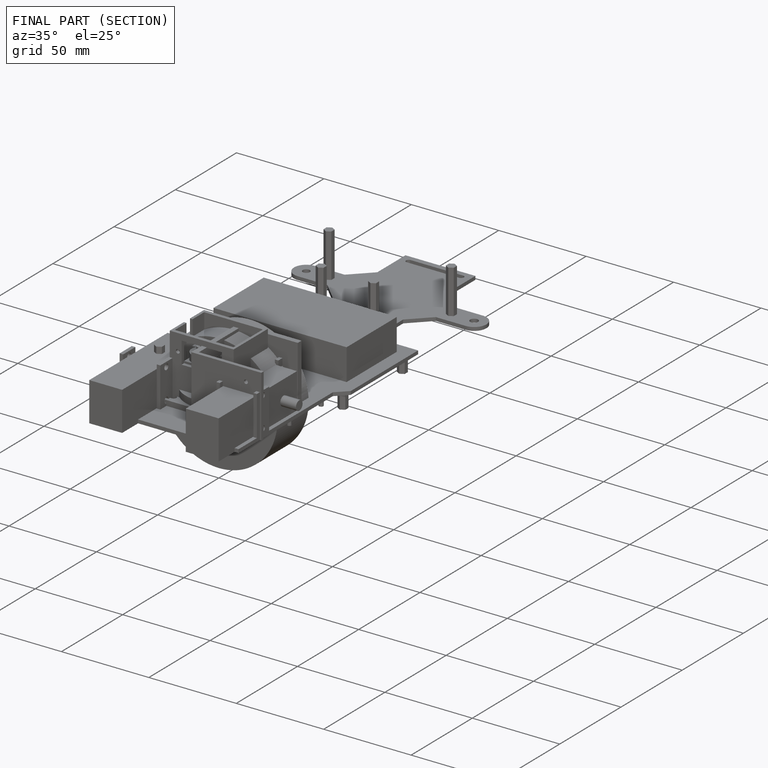
[diagram: finished part — half-section view (interior)]
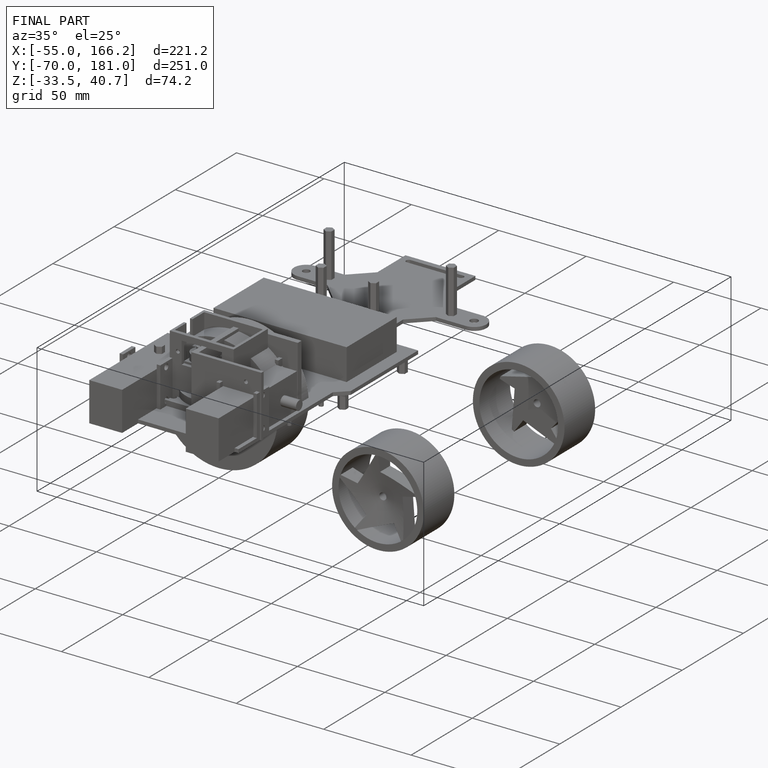
[diagram: finished part — iso view with bounding-box wireframe]
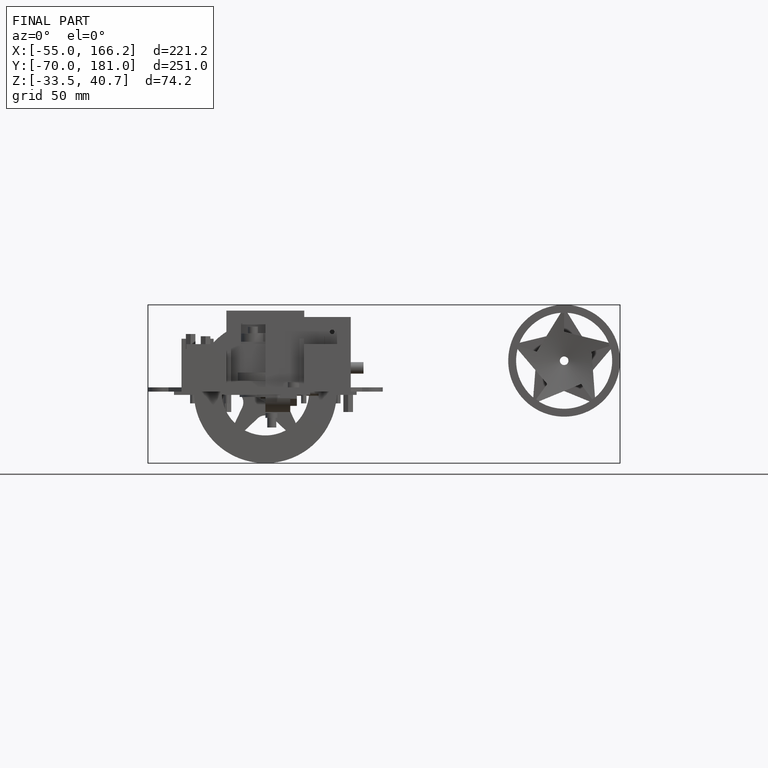
[diagram: finished part — front view with bounding-box wireframe]
